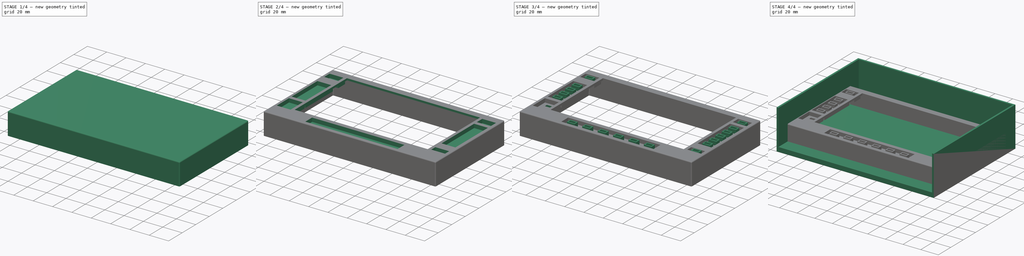
[diagram: build sequence overview — one tinted view per stage of 4, left to right]
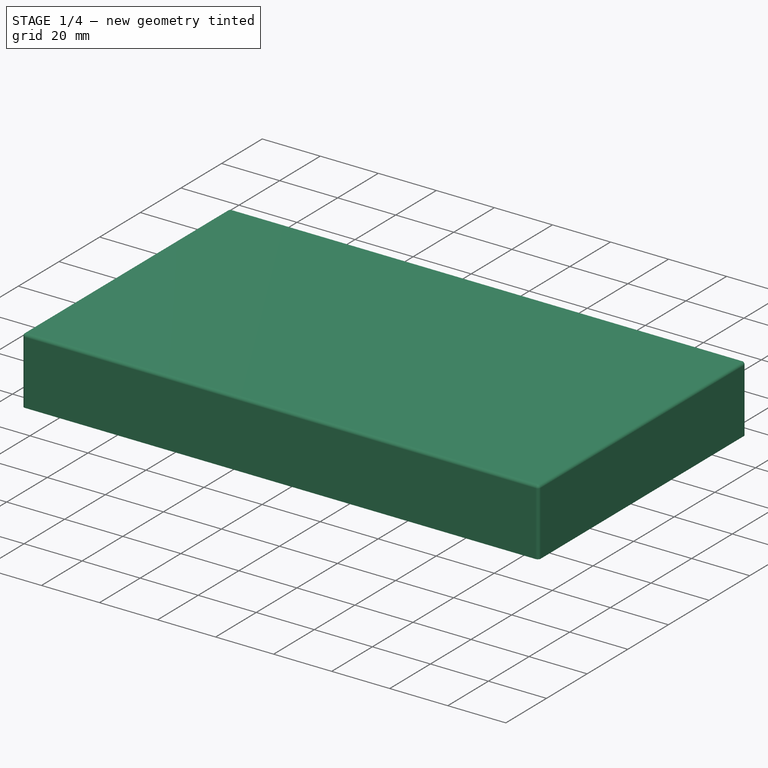
[diagram: stage 1 of 4 — iso view after this stage's code; geometry added in this stage tinted green]
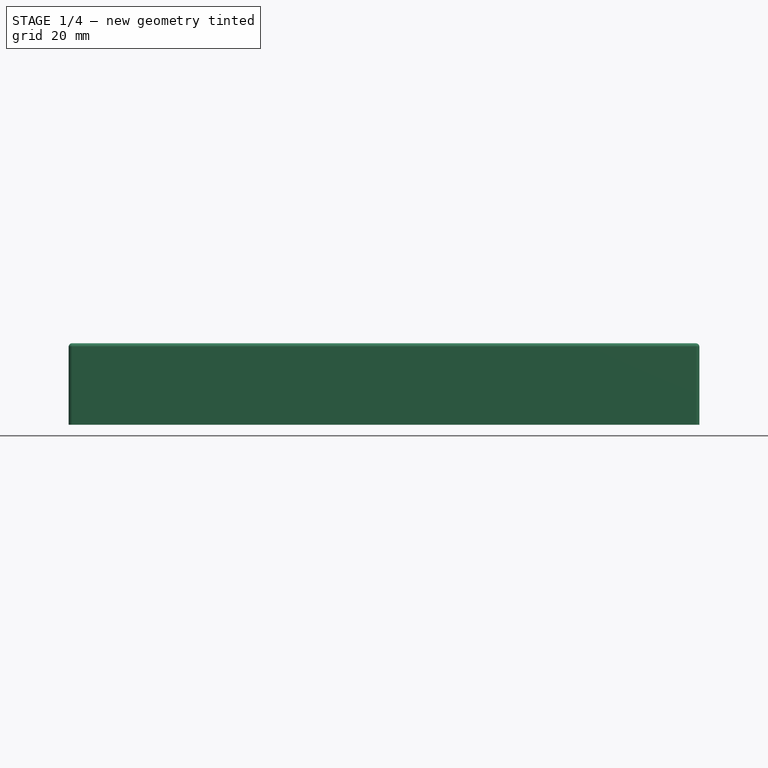
[diagram: stage 1 of 4 — front view after this stage's code; geometry added in this stage tinted green]
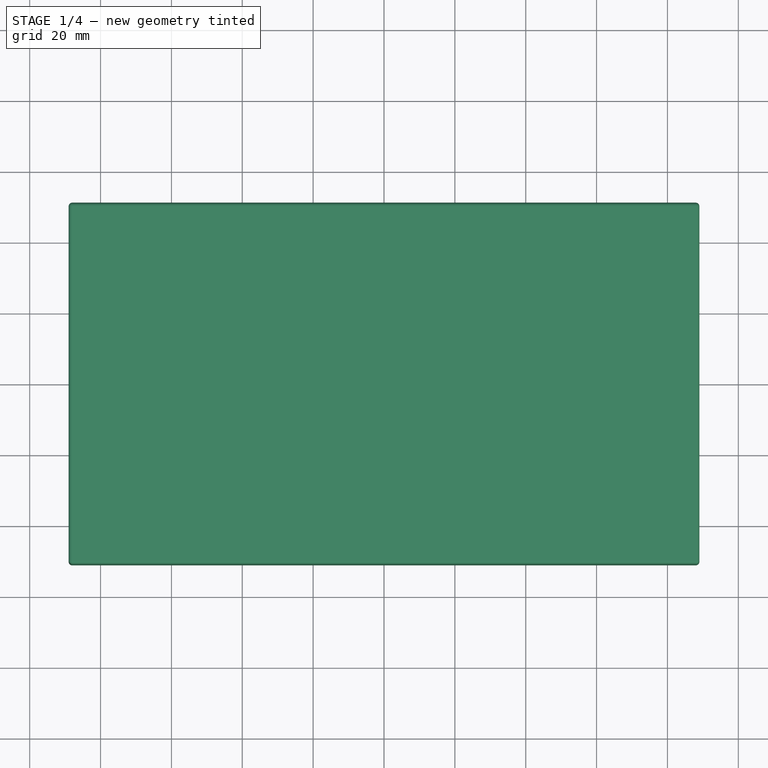
[diagram: stage 1 of 4 — top view after this stage's code; geometry added in this stage tinted green]
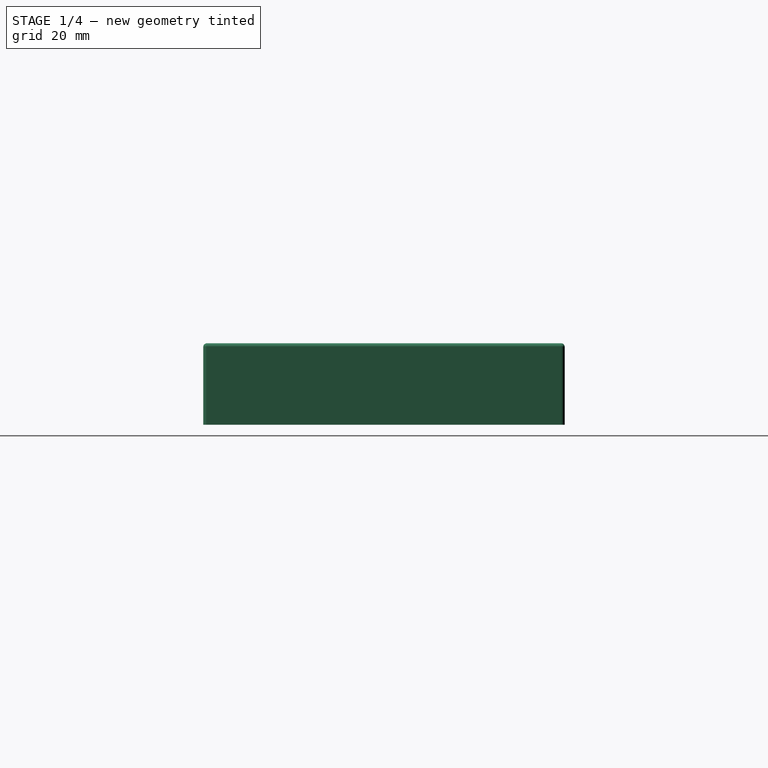
[diagram: stage 1 of 4 — right view after this stage's code; geometry added in this stage tinted green]
FCSTD DOCUMENT  (FreeCAD 0.21R33675 (Git))
Label: Double DIN Screen Motorized 6 Inch
License: All rights reserved
LicenseURL: https://en.wikipedia.org/wiki/All_rights_reserved
objects: Sketcher::SketchObject×10, PartDesign::Pad×5, PartDesign::Pocket×5, PartDesign::Body×2, PartDesign::Fillet×2
note: 36 computed .brp shape members not serialized (recipe doc carries the construction recipe); baked Part::Feature solids carry a one-line shape summary decoded from their .brp

FEATURE [PartDesign::Body] Body  label="Screen Base"
  Group = -> [Sketch,Pad,Sketch001,Pocket]
  Origin = -> Origin
  Tip = -> Pocket
FEATURE [Sketcher::SketchObject] Sketch002  label="Screen Panel Base Sketch"
  FullyConstrained = true
  MapMode = 5
  Support = -> [XY_Plane001]
  sketch-geometry (14):
    g0: LineSegment StartX=-89 StartY=51 StartZ=0 EndX=89 EndY=51 EndZ=0
    g1: LineSegment StartX=89 StartY=51 StartZ=0 EndX=89 EndY=-51 EndZ=0
    g2: LineSegment StartX=89 StartY=-51 StartZ=0 EndX=-89 EndY=-51 EndZ=0
    g3: LineSegment StartX=-89 StartY=-51 StartZ=0 EndX=-89 EndY=51 EndZ=0
    g4: LineSegment StartX=-89 StartY=50 StartZ=0 EndX=-89 EndY=-50 EndZ=0
    g5: LineSegment StartX=89 StartY=50 StartZ=0 EndX=89 EndY=-50 EndZ=0
    g6: LineSegment StartX=-88 StartY=51 StartZ=0 EndX=88 EndY=51 EndZ=0
    g7: LineSegment StartX=-88 StartY=-51 StartZ=0 EndX=88 EndY=-51 EndZ=0
    g8: ArcOfCircle CenterX=-88 CenterY=50 CenterZ=0 NormalX=0 NormalY=0 NormalZ=1 AngleXU=0 Radius=1 StartAngle=1.5708 EndAngle=3.14159
    g9: ArcOfCircle CenterX=88 CenterY=50 CenterZ=0 NormalX=0 NormalY=0 NormalZ=1 AngleXU=0 Radius=1 StartAngle=-2.7e-15 EndAngle=1.5708
    g10: ArcOfCircle CenterX=-88 CenterY=-50 CenterZ=0 NormalX=0 NormalY=0 NormalZ=1 AngleXU=0 Radius=1 StartAngle=3.14159 EndAngle=4.71239
    g11: ArcOfCircle CenterX=88 CenterY=-50 CenterZ=0 NormalX=0 NormalY=0 NormalZ=1 AngleXU=0 Radius=1 StartAngle=4.71239 EndAngle=6.28319
    g12: LineSegment StartX=88 StartY=-50 StartZ=0 EndX=89 EndY=-50 EndZ=0
    g13: LineSegment StartX=88 StartY=-50 StartZ=0 EndX=88 EndY=-51 EndZ=0
  constraints (38):
    c: Coincident(g0,g1)
    c: Coincident(g1,g2)
    c: Coincident(g2,g3)
    c: Coincident(g3,g0)
    c: Horizontal(g2)
    c: Vertical(g1)
    c: Symmetric(g0,g0,g-2)
    c: Symmetric(g0,g2,g-1)
    c: DistanceY(g3,g3) = 102
    c: DistanceX(g0,g0) = 178
    c: PointOnObject(g4,g3)
    c: PointOnObject(g5,g1)
    c: PointOnObject(g6,g0)
    c: PointOnObject(g7,g2)
    c: Symmetric(g7,g7,g-2)
    c: Equal(g7,g6)
    c: Symmetric(g6,g6,g-2)
    c: Symmetric(g4,g4,g-1)
    c: Symmetric(g5,g5,g-1)
    c: Equal(g4,g5)
    c: Coincident(g8,g4)
    c: Coincident(g8,g6)
    c: Angle(g8) = 1.5708
    c: Coincident(g9,g6)
    c: Coincident(g9,g5)
    c: Angle(g9) = 1.5708
    c: Coincident(g10,g4)
    c: Coincident(g10,g7)
    c: Equal(g10,g8)
    c: Coincident(g11,g7)
    c: Coincident(g11,g5)
    c: Equal(g11,g8)
    c: Coincident(g12,g11)
    c: Coincident(g12,g5)
    c: Horizontal(g12)
    c: Coincident(g13,g11)
    c: Coincident(g13,g7)
    c: Radius(g9) = 1
FEATURE [PartDesign::Pad] Pad001  label="Screen Panel Base"
  Direction = (0,0,1)
  Length = 23
  Length2 = 10
  Profile = -> Sketch002
  ReferenceAxis = -> Sketch002 [N_Axis]
  Type = 0
FEATURE [PartDesign::Fillet] Fillet  label="Screen Panel Base Fillet"
  Base = -> Pad001 [Edge7]
  BaseFeature = -> Pad001
  Radius = 1
  SupportTransform = false
  UseAllEdges = false
FEATURE [Sketcher::SketchObject] Sketch003  label="Screen Panel Shell Sketch"
  ExternalGeometry = -> [Fillet]
  FullyConstrained = true
  MapMode = 5
  Placement = pos=(0,0,0) rot=(1,0,0;3.14159rad)
  Support = -> [Fillet]
  sketch-geometry (18):
    g0: LineSegment StartX=-87 StartY=-48 StartZ=0 EndX=-87 EndY=48 EndZ=0
    g1: LineSegment StartX=-86 StartY=49 StartZ=0 EndX=86 EndY=49 EndZ=0
    g2: LineSegment StartX=87 StartY=48 StartZ=0 EndX=87 EndY=-48 EndZ=0
    g3: LineSegment StartX=86 StartY=-49 StartZ=0 EndX=-86 EndY=-49 EndZ=0
    g4: ArcOfCircle CenterX=-86 CenterY=48 CenterZ=0 NormalX=0 NormalY=0 NormalZ=1 AngleXU=0 Radius=1 StartAngle=1.5708 EndAngle=3.14159
    g5: LineSegment StartX=-86 StartY=49 StartZ=0 EndX=-86 EndY=48 EndZ=0
    g6: LineSegment StartX=-86 StartY=48 StartZ=0 EndX=-87 EndY=48 EndZ=0
    g7: ArcOfCircle CenterX=86 CenterY=-48 CenterZ=0 NormalX=0 NormalY=0 NormalZ=1 AngleXU=0 Radius=1 StartAngle=4.71239 EndAngle=6.28319
    g8: LineSegment StartX=86 StartY=-49 StartZ=0 EndX=86 EndY=-48 EndZ=0
    g9: LineSegment StartX=86 StartY=-48 StartZ=0 EndX=87 EndY=-48 EndZ=0
    g10: ArcOfCircle CenterX=86 CenterY=48 CenterZ=0 NormalX=0 NormalY=0 NormalZ=1 AngleXU=0 Radius=1 StartAngle=-2.7e-15 EndAngle=1.5708
    g11: LineSegment StartX=86 StartY=49 StartZ=0 EndX=86 EndY=48 EndZ=0
    g12: LineSegment StartX=86 StartY=48 StartZ=0 EndX=87 EndY=48 EndZ=0
    g13: ArcOfCircle CenterX=-86 CenterY=-48 CenterZ=0 NormalX=0 NormalY=0 NormalZ=1 AngleXU=0 Radius=1 StartAngle=3.14159 EndAngle=4.71239
    g14: LineSegment StartX=-87 StartY=-48 StartZ=0 EndX=-86 EndY=-48 EndZ=0
    g15: LineSegment StartX=-86 StartY=-48 StartZ=0 EndX=-86 EndY=-49 EndZ=0
    g16: LineSegment StartX=-87 StartY=48 StartZ=0 EndX=-89 EndY=48 EndZ=0
    g17: LineSegment StartX=-86 StartY=49 StartZ=0 EndX=-86 EndY=51 EndZ=0
  constraints (45):
    c: Equal(g3,g1)
    c: Symmetric(g1,g1,g-2)
    c: Symmetric(g3,g3,g-2)
    c: Symmetric(g0,g0,g-1)
    c: Symmetric(g2,g2,g-1)
    c: Coincident(g4,g0)
    c: Coincident(g4,g1)
    c: Coincident(g5,g1)
    c: Coincident(g5,g4)
    c: Coincident(g6,g4)
    c: Coincident(g6,g0)
    c: Horizontal(g6)
    c: Vertical(g5)
    c: Symmetric(g2,g0,g-2)
    c: Coincident(g7,g3)
    c: Coincident(g7,g2)
    c: Equal(g7,g4)
    c: Coincident(g8,g3)
    c: Coincident(g8,g7)
    c: Coincident(g9,g7)
    c: Coincident(g9,g2)
    c: Horizontal(g9)
    c: Coincident(g10,g1)
    c: Coincident(g10,g2)
    c: Equal(g4,g10)
    c: Coincident(g11,g1)
    c: Coincident(g11,g10)
    c: Coincident(g12,g10)
    c: Coincident(g12,g2)
    c: Coincident(g13,g0)
    c: Coincident(g13,g3)
    c: Coincident(g14,g0)
    c: Coincident(g14,g13)
    c: Horizontal(g14)
    c: Coincident(g15,g13)
    c: Coincident(g15,g3)
    c: Coincident(g16,g0)
    c: PointOnObject(g16,g-3)
    c: Horizontal(g16)
    c: DistanceX(g16,g16) = 2
    c: Coincident(g17,g1)
    c: PointOnObject(g17,g-5)
    c: Vertical(g17)
    c: Equal(g17,g16)
    c: Equal(g4,g-4)
FEATURE [PartDesign::Pocket] Pocket001  label="Screen Panel Shell"
  BaseFeature = -> Fillet
  Direction = (0,0,1)
  Length = 21
  Length2 = 5
  Profile = -> Sketch003
  ReferenceAxis = -> Sketch003 [N_Axis]
  Type = 0
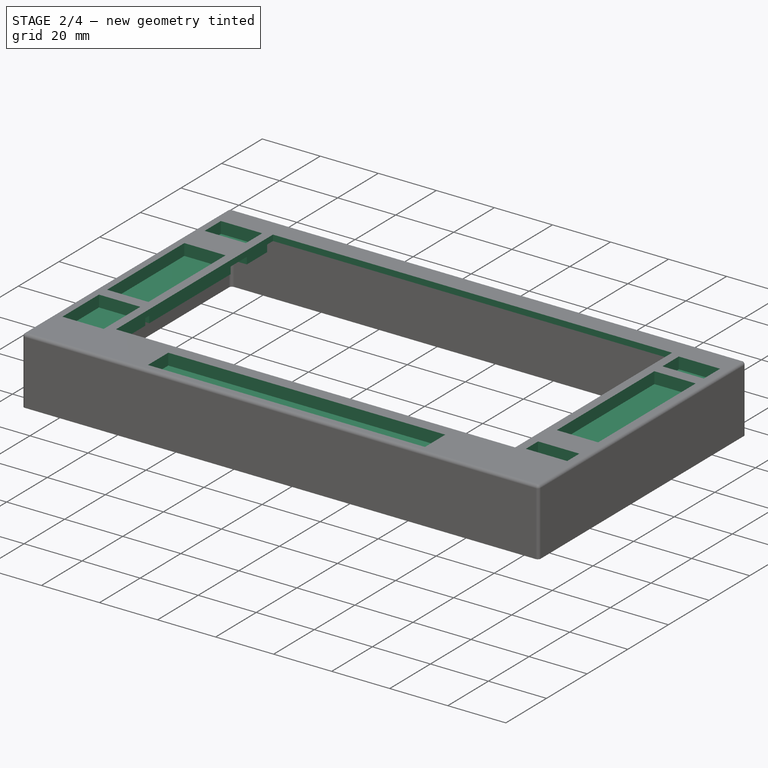
[diagram: stage 2 of 4 — iso view after this stage's code; geometry added in this stage tinted green]
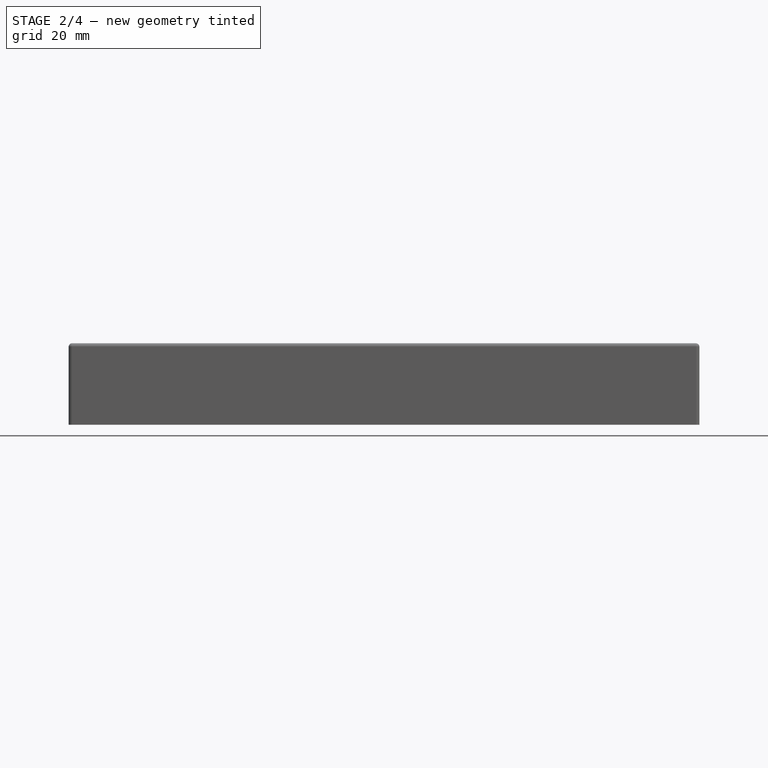
[diagram: stage 2 of 4 — front view after this stage's code; geometry added in this stage tinted green]
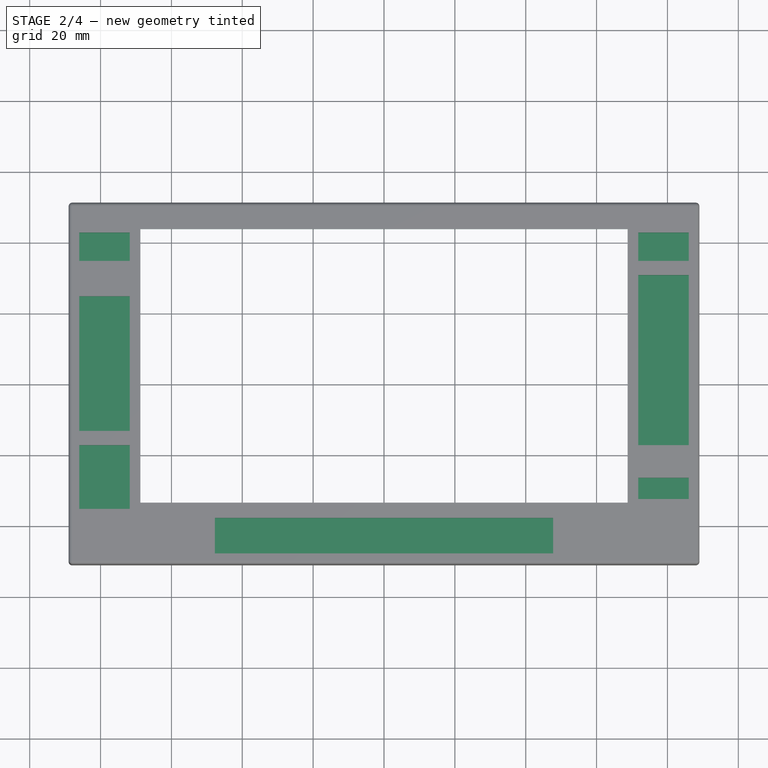
[diagram: stage 2 of 4 — top view after this stage's code; geometry added in this stage tinted green]
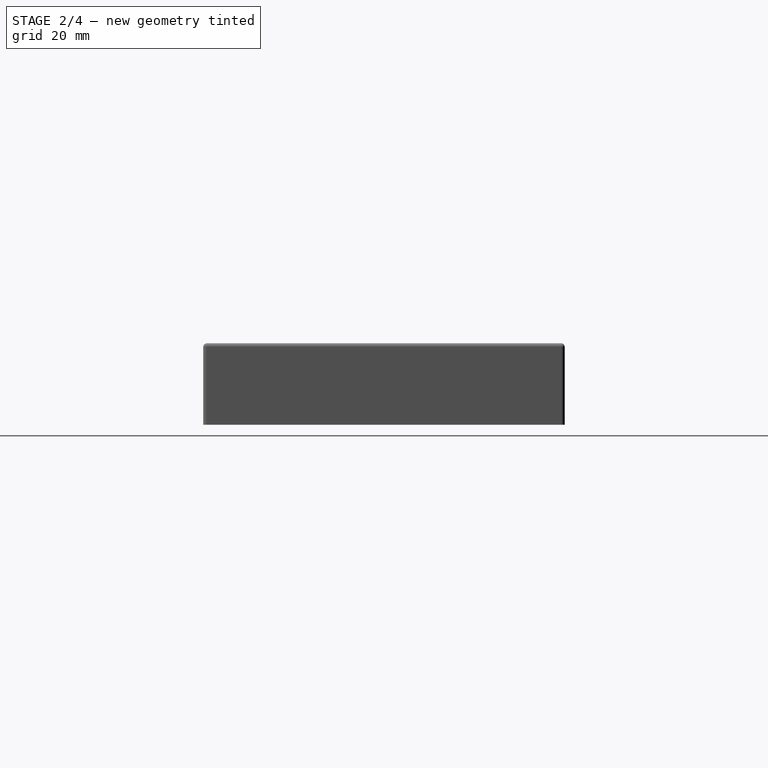
[diagram: stage 2 of 4 — right view after this stage's code; geometry added in this stage tinted green]
FEATURE [Sketcher::SketchObject] Sketch004  label="Screen Display Cut Sketch"
  ExternalGeometry = -> [Pocket001]
  FullyConstrained = true
  MapMode = 5
  Placement = pos=(0,0,23) rot=(0,0,1;0rad)
  Support = -> [Pocket001]
  sketch-geometry (10):
    g0: LineSegment StartX=-76.4 StartY=46.5 StartZ=0 EndX=78.8 EndY=46.5 EndZ=0
    g1: LineSegment StartX=78.8 StartY=46.5 StartZ=0 EndX=78.8 EndY=-41.7 EndZ=0
    g2: LineSegment StartX=78.8 StartY=-41.7 StartZ=0 EndX=-76.4 EndY=-41.7 EndZ=0
    g3: LineSegment StartX=-76.4 StartY=-41.7 StartZ=0 EndX=-76.4 EndY=46.5 EndZ=0
    g4: LineSegment StartX=-76.4 StartY=-41.7 StartZ=0 EndX=-76.4 EndY=-51 EndZ=0
    g5: LineSegment StartX=-68.76 StartY=43.556 StartZ=0 EndX=68.76 EndY=43.556 EndZ=0
    g6: LineSegment StartX=68.76 StartY=43.556 StartZ=0 EndX=68.76 EndY=-33.676 EndZ=0
    g7: LineSegment StartX=68.76 StartY=-33.676 StartZ=0 EndX=-68.76 EndY=-33.676 EndZ=0
    g8: LineSegment StartX=-68.76 StartY=-33.676 StartZ=0 EndX=-68.76 EndY=43.556 EndZ=0
    g9: LineSegment StartX=-68.76 StartY=43.556 StartZ=0 EndX=-76.4 EndY=43.556 EndZ=0
  constraints (29):
    c: Coincident(g0,g1)
    c: Coincident(g1,g2)
    c: Coincident(g2,g3)
    c: Coincident(g3,g0)
    c: Horizontal(g0)
    c: Vertical(g1)
    c: Vertical(g3)
    c: DistanceY(g3,g3) = 88.2
    c: DistanceX(g0,g0) = 155.2
    c: Coincident(g4,g2)
    c: PointOnObject(g4,g-3)
    c: Vertical(g4)
    c: DistanceY(g4,g4) = 9.3
    c: Coincident(g5,g6)
    c: Coincident(g6,g7)
    c: Coincident(g7,g8)
    c: Coincident(g8,g5)
    c: Horizontal(g5)
    c: Vertical(g6)
    c: Vertical(g8)
    c: DistanceX(g5,g5) = 137.52
    c: DistanceY(g8,g8) = 77.232
    c: Coincident(g9,g5)
    c: PointOnObject(g9,g3)
    c: Horizontal(g9)
    c: DistanceX(g9,g9) = 7.64
    c: DistanceY(g5,g0) = 2.944
    c: Symmetric(g7,g6,g-2)
    c: Horizontal(g2)
FEATURE [PartDesign::Pocket] Pocket002  label="Screen Display Cut"
  BaseFeature = -> Pocket001
  Direction = (0,0,-1)
  Length = 5
  Length2 = 5
  Profile = -> Sketch004
  ReferenceAxis = -> Sketch004 [N_Axis]
  Type = 0
FEATURE [Sketcher::SketchObject] Sketch005  label="Button Bulge Sketch"
  ExternalGeometry = -> [Pocket002]
  FullyConstrained = true
  MapMode = 5
  Placement = pos=(0,0,21) rot=(1,0,0;3.14159rad)
  Support = -> [Pocket002]
  sketch-geometry (38):
    g0: LineSegment StartX=-70.76 StartY=-43.556 StartZ=0 EndX=-87 EndY=-43.556 EndZ=0
    g1: LineSegment StartX=-87 StartY=-43.556 StartZ=0 EndX=-87 EndY=-33.556 EndZ=0
    g2: LineSegment StartX=-87 StartY=-33.556 StartZ=0 EndX=-70.76 EndY=-33.556 EndZ=0
    g3: LineSegment StartX=-70.76 StartY=-33.556 StartZ=0 EndX=-70.76 EndY=-43.556 EndZ=0
    g4: LineSegment StartX=-68.76 StartY=-43.556 StartZ=0 EndX=-70.76 EndY=-43.556 EndZ=0
    g5: LineSegment StartX=-70.76 StartY=-33.556 StartZ=0 EndX=-87 EndY=-33.556 EndZ=0
    g6: LineSegment StartX=-87 StartY=-33.556 StartZ=0 EndX=-87 EndY=-25.556 EndZ=0
    g7: LineSegment StartX=-87 StartY=-25.556 StartZ=0 EndX=-70.76 EndY=-25.556 EndZ=0
    g8: LineSegment StartX=-70.76 StartY=-25.556 StartZ=0 EndX=-70.76 EndY=-33.556 EndZ=0
    g9: LineSegment StartX=-70.76 StartY=-25.556 StartZ=0 EndX=-87 EndY=-25.556 EndZ=0
    g10: LineSegment StartX=-87 StartY=-25.556 StartZ=0 EndX=-87 EndY=14.444 EndZ=0
    g11: LineSegment StartX=-70.76 StartY=14.444 StartZ=0 EndX=-70.76 EndY=-25.556 EndZ=0
    g12: LineSegment StartX=-70.76 StartY=14.444 StartZ=0 EndX=-87 EndY=14.444 EndZ=0
    g13: LineSegment StartX=87 StartY=-43.556 StartZ=0 EndX=70.76 EndY=-43.556 EndZ=0
    g14: LineSegment StartX=70.76 StartY=-43.556 StartZ=0 EndX=70.76 EndY=-33.556 EndZ=0
    g15: LineSegment StartX=70.76 StartY=-33.556 StartZ=0 EndX=87 EndY=-33.556 EndZ=0
    g16: LineSegment StartX=87 StartY=-33.556 StartZ=0 EndX=87 EndY=-43.556 EndZ=0
    g17: LineSegment StartX=70.76 StartY=-43.556 StartZ=0 EndX=68.76 EndY=-43.556 EndZ=0
    g18: LineSegment StartX=87 StartY=-31.556 StartZ=0 EndX=70.76 EndY=-31.556 EndZ=0
    g19: LineSegment StartX=70.76 StartY=-33.556 StartZ=0 EndX=70.76 EndY=-31.556 EndZ=0
    g20: LineSegment StartX=-70.76 StartY=16.444 StartZ=0 EndX=-87 EndY=16.444 EndZ=0
    g21: LineSegment StartX=-87 StartY=16.444 StartZ=0 EndX=-87 EndY=36.444 EndZ=0
    g22: LineSegment StartX=-87 StartY=36.444 StartZ=0 EndX=-70.76 EndY=36.444 EndZ=0
    g23: LineSegment StartX=-70.76 StartY=36.444 StartZ=0 EndX=-70.76 EndY=16.444 EndZ=0
    g24: LineSegment StartX=-70.76 StartY=16.444 StartZ=0 EndX=-70.76 EndY=14.444 EndZ=0
    g25: LineSegment StartX=87 StartY=18.444 StartZ=0 EndX=70.76 EndY=18.444 EndZ=0
    g26: LineSegment StartX=87 StartY=25.676 StartZ=0 EndX=70.76 EndY=25.676 EndZ=0
    g27: LineSegment StartX=70.76 StartY=25.676 StartZ=0 EndX=70.76 EndY=33.676 EndZ=0
    g28: LineSegment StartX=70.76 StartY=33.676 StartZ=0 EndX=87 EndY=33.676 EndZ=0
    g29: LineSegment StartX=87 StartY=33.676 StartZ=0 EndX=87 EndY=25.676 EndZ=0
    g30: LineSegment StartX=70.76 StartY=18.444 StartZ=0 EndX=70.76 EndY=25.676 EndZ=0
    g31: LineSegment StartX=70.76 StartY=33.676 StartZ=0 EndX=68.76 EndY=33.676 EndZ=0
    g32: LineSegment StartX=48.72 StartY=37 StartZ=0 EndX=-48.72 EndY=37 EndZ=0
    g33: LineSegment StartX=-48.72 StartY=37 StartZ=0 EndX=-48.72 EndY=49 EndZ=0
    g34: LineSegment StartX=-48.72 StartY=49 StartZ=0 EndX=48.72 EndY=49 EndZ=0
    g35: LineSegment StartX=48.72 StartY=49 StartZ=0 EndX=48.72 EndY=37 EndZ=0
    g36: LineSegment StartX=70.76 StartY=18.444 StartZ=0 EndX=70.76 EndY=-31.556 EndZ=0
    g37: LineSegment StartX=87 StartY=18.444 StartZ=0 EndX=87 EndY=-31.556 EndZ=0
  constraints (105):
    c: Coincident(g0,g1)
    c: Coincident(g1,g2)
    c: Coincident(g2,g3)
    c: Coincident(g3,g0)
    c: Horizontal(g0)
    c: Horizontal(g2)
    c: Vertical(g1)
    c: Vertical(g3)
    c: DistanceY(g3,g3) = 10
    c: Coincident(g4,g-6)
    c: Coincident(g4,g0)
    c: Horizontal(g4)
    c: DistanceX(g4,g4) = 2
    c: PointOnObject(g0,g-5)
    c: Coincident(g5,g6)
    c: Coincident(g6,g7)
    c: Coincident(g7,g8)
    c: Coincident(g8,g5)
    c: Horizontal(g5)
    c: Horizontal(g7)
    c: Vertical(g6)
    c: Vertical(g8)
    c: Coincident(g5,g2)
    c: PointOnObject(g6,g-5)
    c: Horizontal(g9)
    c: Coincident(g9,g7)
    c: Vertical(g10)
    c: Vertical(g11)
    c: PointOnObject(g10,g-5)
    c: Horizontal(g12)
    c: Coincident(g13,g14)
    c: Coincident(g14,g15)
    c: Coincident(g15,g16)
    c: Coincident(g16,g13)
    c: Horizontal(g13)
    c: Horizontal(g15)
    c: Vertical(g14)
    c: Vertical(g16)
    c: Coincident(g17,g13)
    c: Coincident(g17,g-7)
    c: Horizontal(g17)
    c: DistanceX(g17,g17) = 2
    c: Equal(g3,g14)
    c: Horizontal(g18)
    c: Coincident(g19,g14)
    c: Coincident(g19,g18)
    c: Vertical(g19)
    c: DistanceY(g19,g19) = 2
    c: Coincident(g12,g11)
    c: Coincident(g10,g12)
    c: Coincident(g20,g21)
    c: Coincident(g21,g22)
    c: Coincident(g22,g23)
    c: Coincident(g23,g20)
    c: Horizontal(g20)
    c: Horizontal(g22)
    c: Vertical(g21)
    c: Vertical(g23)
    c: PointOnObject(g20,g-5)
    c: Coincident(g24,g20)
    c: Coincident(g24,g11)
    c: Vertical(g24)
    c: DistanceY(g24,g24) = 2
    c: Horizontal(g25)
    c: Coincident(g26,g27)
    c: Coincident(g27,g28)
    c: Coincident(g28,g29)
    c: Coincident(g29,g26)
    c: Horizontal(g26)
    c: Horizontal(g28)
    c: Vertical(g27)
    c: Vertical(g29)
    c: Coincident(g30,g25)
    c: Coincident(g30,g26)
    c: Vertical(g30)
    c: DistanceY(g27,g27) = 8
    c: Coincident(g31,g27)
    c: Coincident(g31,g-7)
    c: Horizontal(g31)
    c: Coincident(g32,g33)
    c: Coincident(g33,g34)
    c: Coincident(g34,g35)
    c: Coincident(g35,g32)
    c: Horizontal(g34)
    c: Vertical(g33)
    c: Vertical(g35)
    c: Symmetric(g32,g32,g-2)
    c: DistanceX(g32,g32) = 97.44
    c: PointOnObject(g34,g-4)
    c: DistanceY(g35,g35) = 12
    c: PointOnObject(g18,g-8)
    c: PointOnObject(g15,g-8)
    c: Coincident(g36,g25)
    c: Coincident(g36,g18)
    c: Vertical(g36)
    c: PointOnObject(g25,g-8)
    c: Coincident(g37,g25)
    c: Coincident(g37,g18)
    c: PointOnObject(g28,g-8)
    c: DistanceY(g36,g36) = 50
    c: Coincident(g10,g9)
    c: Coincident(g11,g9)
    c: DistanceY(g11,g11) = 40
    c: DistanceY(g23,g23) = 20
    c: DistanceY(g8,g8) = 8
FEATURE [PartDesign::Pad] Pad002  label="Button Bulge"
  BaseFeature = -> Pocket002
  Direction = (0,0,-1)
  Length = 4
  Length2 = 10
  Profile = -> Sketch005
  ReferenceAxis = -> Sketch005 [N_Axis]
  Type = 0
FEATURE [Sketcher::SketchObject] Sketch006  label="Button Cavity Sketch"
  ExternalGeometry = -> [Pad002]
  FullyConstrained = true
  MapMode = 5
  Placement = pos=(0,0,23) rot=(0,0,1;0rad)
  Support = -> [Pad002]
  sketch-geometry (57):
    g0: LineSegment StartX=-86 StartY=42.556 StartZ=0 EndX=-71.76 EndY=42.556 EndZ=0
    g1: LineSegment StartX=-71.76 StartY=42.556 StartZ=0 EndX=-71.76 EndY=34.556 EndZ=0
    g2: LineSegment StartX=-71.76 StartY=34.556 StartZ=0 EndX=-86 EndY=34.556 EndZ=0
    g3: LineSegment StartX=-86 StartY=34.556 StartZ=0 EndX=-86 EndY=42.556 EndZ=0
    g4: LineSegment StartX=-86 StartY=42.556 StartZ=0 EndX=-86 EndY=43.556 EndZ=0
    g5: LineSegment StartX=-86 StartY=42.556 StartZ=0 EndX=-87 EndY=42.556 EndZ=0
    g6: LineSegment StartX=-71.76 StartY=34.556 StartZ=0 EndX=-71.76 EndY=33.556 EndZ=0
    g7: LineSegment StartX=-71.76 StartY=42.556 StartZ=0 EndX=-71.76 EndY=43.556 EndZ=0
    g8: LineSegment StartX=-71.76 StartY=42.556 StartZ=0 EndX=-70.76 EndY=42.556 EndZ=0
    g9: LineSegment StartX=-86 StartY=-17.444 StartZ=0 EndX=-71.76 EndY=-17.444 EndZ=0
    g10: LineSegment StartX=-71.76 StartY=-17.444 StartZ=0 EndX=-71.76 EndY=-35.444 EndZ=0
    g11: LineSegment StartX=-71.76 StartY=-35.444 StartZ=0 EndX=-86 EndY=-35.444 EndZ=0
    g12: LineSegment StartX=-86 StartY=-35.444 StartZ=0 EndX=-86 EndY=-17.444 EndZ=0
    g13: LineSegment StartX=-86 StartY=-17.444 StartZ=0 EndX=-87 EndY=-17.444 EndZ=0
    g14: LineSegment StartX=-86 StartY=-17.444 StartZ=0 EndX=-86 EndY=-16.444 EndZ=0
    g15: LineSegment StartX=-71.76 StartY=-35.444 StartZ=0 EndX=-70.76 EndY=-35.444 EndZ=0
    g16: LineSegment StartX=-71.76 StartY=-35.444 StartZ=0 EndX=-71.76 EndY=-36.444 EndZ=0
    g17: LineSegment StartX=-86 StartY=24.556 StartZ=0 EndX=-71.76 EndY=24.556 EndZ=0
    g18: LineSegment StartX=-71.76 StartY=24.556 StartZ=0 EndX=-71.76 EndY=-13.444 EndZ=0
    g19: LineSegment StartX=-71.76 StartY=-13.444 StartZ=0 EndX=-86 EndY=-13.444 EndZ=0
    g20: LineSegment StartX=-86 StartY=-13.444 StartZ=0 EndX=-86 EndY=24.556 EndZ=0
    g21: LineSegment StartX=-86 StartY=24.556 StartZ=0 EndX=-86 EndY=25.556 EndZ=0
    g22: LineSegment StartX=-86 StartY=24.556 StartZ=0 EndX=-87 EndY=24.556 EndZ=0
    g23: LineSegment StartX=-71.76 StartY=-13.444 StartZ=0 EndX=-70.76 EndY=-13.444 EndZ=0
    g24: LineSegment StartX=-71.76 StartY=-13.444 StartZ=0 EndX=-71.76 EndY=-14.444 EndZ=0
    g25: LineSegment StartX=71.76 StartY=42.556 StartZ=0 EndX=86 EndY=42.556 EndZ=0
    g26: LineSegment StartX=86 StartY=42.556 StartZ=0 EndX=86 EndY=34.556 EndZ=0
    g27: LineSegment StartX=86 StartY=34.556 StartZ=0 EndX=71.76 EndY=34.556 EndZ=0
    g28: LineSegment StartX=71.76 StartY=34.556 StartZ=0 EndX=71.76 EndY=42.556 EndZ=0
    g29: LineSegment StartX=71.76 StartY=42.556 StartZ=0 EndX=70.76 EndY=42.556 EndZ=0
    g30: LineSegment StartX=71.76 StartY=42.556 StartZ=0 EndX=71.76 EndY=43.556 EndZ=0
    g31: LineSegment StartX=86 StartY=34.556 StartZ=0 EndX=86 EndY=33.556 EndZ=0
    g32: LineSegment StartX=86 StartY=34.556 StartZ=0 EndX=87 EndY=34.556 EndZ=0
    g33: LineSegment StartX=71.76 StartY=30.556 StartZ=0 EndX=86 EndY=30.556 EndZ=0
    g34: LineSegment StartX=86 StartY=30.556 StartZ=0 EndX=86 EndY=-17.444 EndZ=0
    g35: LineSegment StartX=86 StartY=-17.444 StartZ=0 EndX=71.76 EndY=-17.444 EndZ=0
    g36: LineSegment StartX=71.76 StartY=-17.444 StartZ=0 EndX=71.76 EndY=30.556 EndZ=0
    g37: LineSegment StartX=71.76 StartY=30.556 StartZ=0 EndX=70.76 EndY=30.556 EndZ=0
    g38: LineSegment StartX=71.76 StartY=30.556 StartZ=0 EndX=71.76 EndY=31.556 EndZ=0
    g39: LineSegment StartX=86 StartY=-17.444 StartZ=0 EndX=87 EndY=-17.444 EndZ=0
    g40: LineSegment StartX=86 StartY=-17.444 StartZ=0 EndX=86 EndY=-18.444 EndZ=0
    g41: LineSegment StartX=-47.72 StartY=-38 StartZ=0 EndX=47.72 EndY=-38 EndZ=0
    g42: LineSegment StartX=47.72 StartY=-38 StartZ=0 EndX=47.72 EndY=-48 EndZ=0
    g43: LineSegment StartX=47.72 StartY=-48 StartZ=0 EndX=-47.72 EndY=-48 EndZ=0
    g44: LineSegment StartX=47.72 StartY=-48 StartZ=0 EndX=48.72 EndY=-48 EndZ=0
    g45: LineSegment StartX=47.72 StartY=-48 StartZ=0 EndX=47.72 EndY=-49 EndZ=0
    g46: LineSegment StartX=71.76 StartY=-26.676 StartZ=0 EndX=86 EndY=-26.676 EndZ=0
    g47: LineSegment StartX=86 StartY=-26.676 StartZ=0 EndX=86 EndY=-32.676 EndZ=0
    g48: LineSegment StartX=86 StartY=-32.676 StartZ=0 EndX=71.76 EndY=-32.676 EndZ=0
    g49: LineSegment StartX=71.76 StartY=-32.676 StartZ=0 EndX=71.76 EndY=-26.676 EndZ=0
    g50: LineSegment StartX=71.76 StartY=-26.676 StartZ=0 EndX=71.76 EndY=-25.676 EndZ=0
    g51: LineSegment StartX=71.76 StartY=-26.676 StartZ=0 EndX=70.76 EndY=-26.676 EndZ=0
    g52: LineSegment StartX=86 StartY=-32.676 StartZ=0 EndX=87 EndY=-32.676 EndZ=0
    g53: LineSegment StartX=86 StartY=-32.676 StartZ=0 EndX=86 EndY=-33.676 EndZ=0
    g54: LineSegment StartX=-47.72 StartY=-38 StartZ=0 EndX=-47.72 EndY=-48 EndZ=0
    g55: LineSegment StartX=-47.72 StartY=-38 StartZ=0 EndX=-48.72 EndY=-38 EndZ=0
    g56: LineSegment StartX=-47.72 StartY=-38 StartZ=0 EndX=-47.72 EndY=-37 EndZ=0
  constraints (172):
    c: Coincident(g0,g1)
    c: Coincident(g1,g2)
    c: Coincident(g2,g3)
    c: Coincident(g3,g0)
    c: Horizontal(g0)
    c: Horizontal(g2)
    c: Vertical(g1)
    c: Vertical(g3)
    c: Coincident(g4,g0)
    c: PointOnObject(g4,g-15)
    c: Vertical(g4)
    c: Coincident(g5,g0)
    c: PointOnObject(g5,g-18)
    c: Horizontal(g5)
    c: DistanceX(g5,g5) = 1
    c: DistanceY(g4,g4) = 1
    c: Coincident(g6,g1)
    c: PointOnObject(g6,g-17)
    c: Vertical(g6)
    c: Coincident(g7,g0)
    c: PointOnObject(g7,g-15)
    c: Vertical(g7)
    c: Coincident(g8,g0)
    c: PointOnObject(g8,g-16)
    c: Horizontal(g8)
    c: Equal(g8,g5)
    c: Equal(g6,g7)
    c: Coincident(g9,g10)
    c: Coincident(g10,g11)
    c: Coincident(g11,g12)
    c: Coincident(g12,g9)
    c: Horizontal(g9)
    c: Horizontal(g11)
    c: Vertical(g10)
    c: Vertical(g12)
    c: Coincident(g13,g9)
    c: PointOnObject(g13,g-26)
    c: Horizontal(g13)
    c: Coincident(g14,g9)
    c: PointOnObject(g14,g-23)
    c: Vertical(g14)
    c: Coincident(g15,g10)
    c: PointOnObject(g15,g-24)
    c: Horizontal(g15)
    c: Coincident(g16,g10)
    c: PointOnObject(g16,g-25)
    c: Vertical(g16)
    c: Equal(g13,g15)
    c: Coincident(g17,g18)
    c: Coincident(g18,g19)
    c: Coincident(g19,g20)
    c: Coincident(g20,g17)
    c: Horizontal(g17)
    c: Horizontal(g19)
    c: Vertical(g18)
    c: Vertical(g20)
    c: Coincident(g21,g17)
    c: PointOnObject(g21,g-19)
    c: Vertical(g21)
    c: Coincident(g22,g17)
    c: PointOnObject(g22,g-22)
    c: Horizontal(g22)
    c: Coincident(g23,g18)
    c: PointOnObject(g23,g-20)
    c: Horizontal(g23)
    c: Coincident(g24,g18)
    c: PointOnObject(g24,g-21)
    c: Equal(g24,g21)
    c: Equal(g21,g14)
    c: Equal(g14,g16)
    c: Equal(g16,g6)
    c: Equal(g23,g13)
    c: Equal(g15,g22)
    c: Equal(g22,g5)
    c: Vertical(g24)
    c: Coincident(g25,g26)
    c: Coincident(g26,g27)
    c: Coincident(g27,g28)
    c: Coincident(g28,g25)
    c: Horizontal(g25)
    c: Horizontal(g27)
    c: Vertical(g26)
    c: Vertical(g28)
    c: Coincident(g29,g25)
    c: PointOnObject(g29,g-4)
    c: Horizontal(g29)
    c: Coincident(g30,g25)
    c: PointOnObject(g30,g-3)
    c: Vertical(g30)
    c: Coincident(g31,g26)
    c: PointOnObject(g31,g-5)
    c: Vertical(g31)
    c: Coincident(g32,g26)
    c: PointOnObject(g32,g-6)
    c: Horizontal(g32)
    c: Equal(g31,g30)
    c: Equal(g30,g4)
    c: Equal(g29,g32)
    c: Equal(g32,g5)
    c: Coincident(g33,g34)
    c: Coincident(g34,g35)
    c: Coincident(g35,g36)
    c: Coincident(g36,g33)
    c: Horizontal(g33)
    c: Horizontal(g35)
    c: Vertical(g34)
    c: Vertical(g36)
    c: Coincident(g37,g33)
    c: PointOnObject(g37,g-8)
    c: Horizontal(g37)
    c: Coincident(g38,g33)
    c: PointOnObject(g38,g-7)
    c: Vertical(g38)
    c: Coincident(g39,g34)
    c: PointOnObject(g39,g-10)
    c: Horizontal(g39)
    c: Coincident(g40,g34)
    c: PointOnObject(g40,g-9)
    c: Vertical(g40)
    c: Equal(g38,g40)
    c: Equal(g40,g30)
    c: Equal(g29,g37)
    c: Equal(g37,g39)
    c: Coincident(g41,g42)
    c: Coincident(g42,g43)
    c: Horizontal(g41)
    c: Horizontal(g43)
    c: Vertical(g42)
    c: DistanceY(g-28,g-28) = 12
    c: Coincident(g44,g42)
    c: PointOnObject(g44,g-29)
    c: Horizontal(g44)
    c: Coincident(g45,g42)
    c: PointOnObject(g45,g-30)
    c: Vertical(g45)
    c: Equal(g45,g40)
    c: Equal(g44,g39)
    c: Coincident(g46,g47)
    c: Coincident(g47,g48)
    c: Coincident(g48,g49)
    c: Coincident(g49,g46)
    c: Horizontal(g46)
    c: Horizontal(g48)
    c: Vertical(g47)
    c: Vertical(g49)
    c: Coincident(g50,g46)
    c: PointOnObject(g50,g-11)
    c: Vertical(g50)
    c: Coincident(g51,g46)
    c: PointOnObject(g51,g-12)
    c: Horizontal(g51)
    c: Coincident(g52,g47)
    c: PointOnObject(g52,g-14)
    c: Horizontal(g52)
    c: Coincident(g53,g47)
    c: PointOnObject(g53,g-13)
    c: Vertical(g53)
    c: Equal(g40,g50)
    c: Equal(g50,g53)
    c: Equal(g51,g52)
    c: Equal(g52,g39)
    c: Coincident(g54,g41)
    c: Coincident(g54,g43)
    c: Vertical(g54)
    c: Coincident(g55,g41)
    c: PointOnObject(g55,g-28)
    c: Horizontal(g55)
    c: Coincident(g56,g41)
    c: PointOnObject(g56,g-27)
    c: Vertical(g56)
    c: Equal(g56,g45)
    c: Equal(g44,g55)
FEATURE [PartDesign::Pocket] Pocket003  label="Button Cavity"
  BaseFeature = -> Pad002
  Direction = (0,0,-1)
  Length = 4
  Length2 = 5
  Profile = -> Sketch006
  ReferenceAxis = -> Sketch006 [N_Axis]
  Type = 0
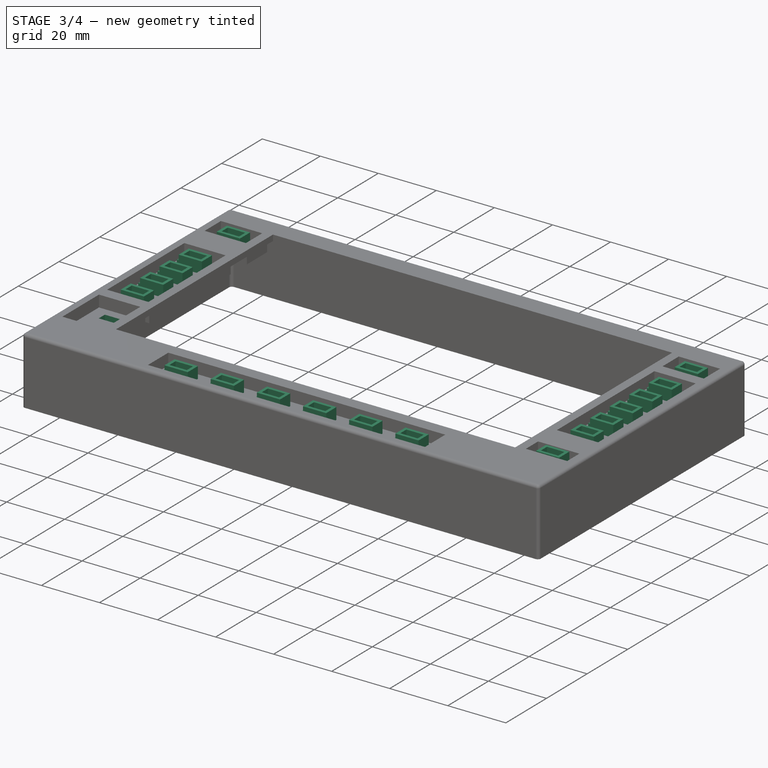
[diagram: stage 3 of 4 — iso view after this stage's code; geometry added in this stage tinted green]
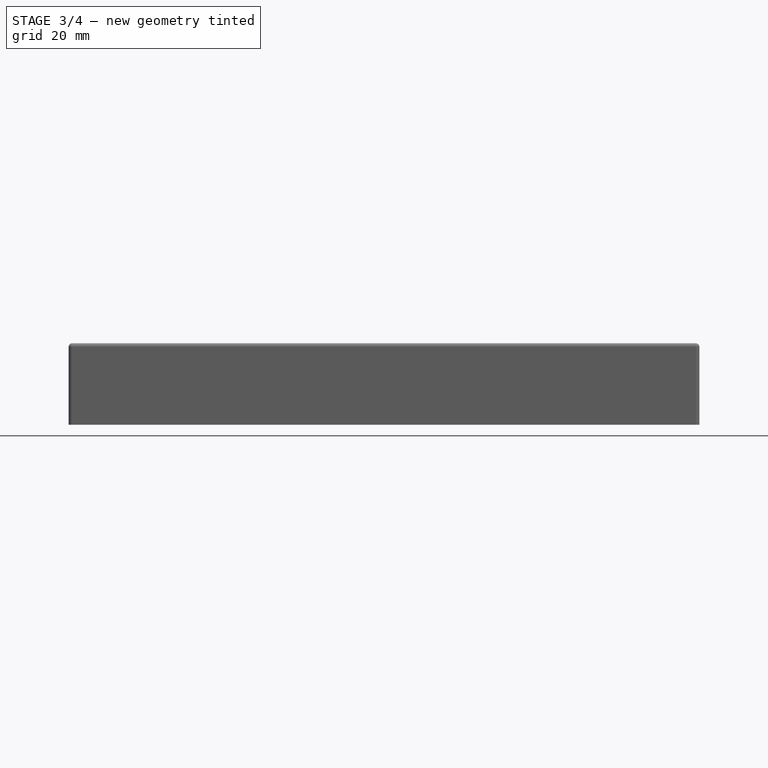
[diagram: stage 3 of 4 — front view after this stage's code; geometry added in this stage tinted green]
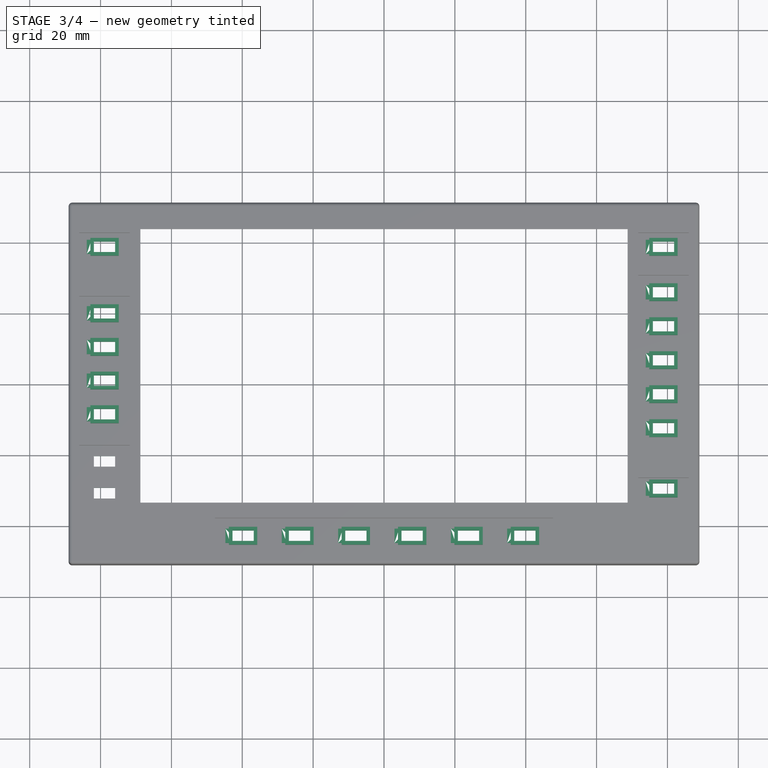
[diagram: stage 3 of 4 — top view after this stage's code; geometry added in this stage tinted green]
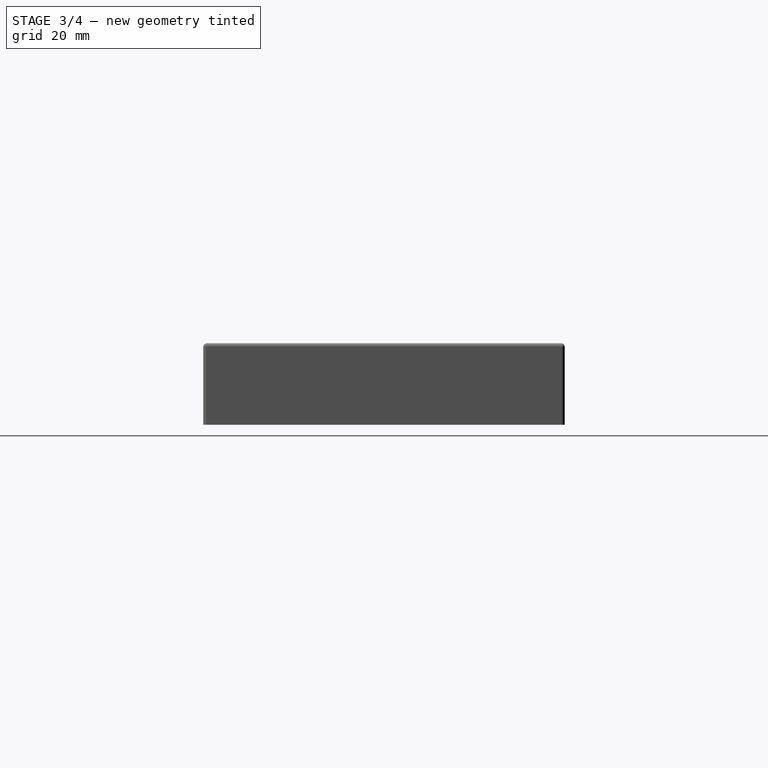
[diagram: stage 3 of 4 — right view after this stage's code; geometry added in this stage tinted green]
FEATURE [Sketcher::SketchObject] Sketch007  label="Button Hole Sketch"
  ExternalGeometry = -> [Pocket003]
  FullyConstrained = true
  MapMode = 5
  Placement = pos=(0,0,19) rot=(0,0,1;0rad)
  Support = -> [Pocket003]
  sketch-geometry (149):
    g0: LineSegment StartX=-81.88 StartY=40.056 StartZ=0 EndX=-75.88 EndY=40.056 EndZ=0
    g1: LineSegment StartX=-75.88 StartY=40.056 StartZ=0 EndX=-75.88 EndY=37.056 EndZ=0
    g2: LineSegment StartX=-75.88 StartY=37.056 StartZ=0 EndX=-81.88 EndY=37.056 EndZ=0
    g3: LineSegment StartX=-81.88 StartY=37.056 StartZ=0 EndX=-81.88 EndY=40.056 EndZ=0
    g4: LineSegment StartX=-78.88 StartY=42.556 StartZ=0 EndX=-78.88 EndY=34.556 EndZ=0
    g5: LineSegment StartX=-86 StartY=38.556 StartZ=0 EndX=-71.76 EndY=38.556 EndZ=0
    g6: LineSegment StartX=-86 StartY=15.056 StartZ=0 EndX=-71.76 EndY=15.056 EndZ=0
    g7: LineSegment StartX=-86 StartY=5.556 StartZ=0 EndX=-71.76 EndY=5.556 EndZ=0
    g8: LineSegment StartX=-86 StartY=-3.944 StartZ=0 EndX=-71.76 EndY=-3.944 EndZ=0
    g9: LineSegment StartX=-86 StartY=15.056 StartZ=0 EndX=-86 EndY=24.556 EndZ=0
    g10: LineSegment StartX=-86 StartY=15.056 StartZ=0 EndX=-86 EndY=5.556 EndZ=0
    g11: LineSegment StartX=-86 StartY=5.556 StartZ=0 EndX=-86 EndY=-3.944 EndZ=0
    g12: LineSegment StartX=-86 StartY=-3.944 StartZ=0 EndX=-86 EndY=-13.444 EndZ=0
    g13: LineSegment StartX=-78.88 StartY=24.556 StartZ=0 EndX=-78.88 EndY=-13.444 EndZ=0
    g14: LineSegment StartX=-81.88 StartY=21.306 StartZ=0 EndX=-75.88 EndY=21.306 EndZ=0
    g15: LineSegment StartX=-75.88 StartY=21.306 StartZ=0 EndX=-75.88 EndY=18.306 EndZ=0
    g16: LineSegment StartX=-75.88 StartY=18.306 StartZ=0 EndX=-81.88 EndY=18.306 EndZ=0
    g17: LineSegment StartX=-81.88 StartY=18.306 StartZ=0 EndX=-81.88 EndY=21.306 EndZ=0
    g18: LineSegment StartX=-81.88 StartY=21.306 StartZ=0 EndX=-81.88 EndY=24.556 EndZ=0
    g19: LineSegment StartX=-81.88 StartY=18.306 StartZ=0 EndX=-81.88 EndY=15.056 EndZ=0
    g20: LineSegment StartX=-81.88 StartY=11.806 StartZ=0 EndX=-75.88 EndY=11.806 EndZ=0
    g21: LineSegment StartX=-75.88 StartY=11.806 StartZ=0 EndX=-75.88 EndY=8.806 EndZ=0
    g22: LineSegment StartX=-75.88 StartY=8.806 StartZ=0 EndX=-81.88 EndY=8.806 EndZ=0
    g23: LineSegment StartX=-81.88 StartY=8.806 StartZ=0 EndX=-81.88 EndY=11.806 EndZ=0
    g24: LineSegment StartX=-75.88 StartY=11.806 StartZ=0 EndX=-75.88 EndY=15.056 EndZ=0
    g25: LineSegment StartX=-75.88 StartY=8.806 StartZ=0 EndX=-75.88 EndY=5.556 EndZ=0
    g26: LineSegment StartX=-81.88 StartY=2.306 StartZ=0 EndX=-75.88 EndY=2.306 EndZ=0
    g27: LineSegment StartX=-75.88 StartY=2.306 StartZ=0 EndX=-75.88 EndY=-0.694 EndZ=0
    g28: LineSegment StartX=-75.88 StartY=-0.694 StartZ=0 EndX=-81.88 EndY=-0.694 EndZ=0
    g29: LineSegment StartX=-81.88 StartY=-0.694 StartZ=0 EndX=-81.88 EndY=2.306 EndZ=0
    g30: LineSegment StartX=-81.88 StartY=2.306 StartZ=0 EndX=-81.88 EndY=5.556 EndZ=0
    g31: LineSegment StartX=-81.88 StartY=-0.694 StartZ=0 EndX=-81.88 EndY=-3.944 EndZ=0
    g32: LineSegment StartX=-81.88 StartY=-7.194 StartZ=0 EndX=-75.88 EndY=-7.194 EndZ=0
    g33: LineSegment StartX=-75.88 StartY=-7.194 StartZ=0 EndX=-75.88 EndY=-10.194 EndZ=0
    g34: LineSegment StartX=-75.88 StartY=-10.194 StartZ=0 EndX=-81.88 EndY=-10.194 EndZ=0
    g35: LineSegment StartX=-81.88 StartY=-10.194 StartZ=0 EndX=-81.88 EndY=-7.194 EndZ=0
    g36: LineSegment StartX=-75.88 StartY=-7.194 StartZ=0 EndX=-75.88 EndY=-3.944 EndZ=0
    g37: LineSegment StartX=-75.88 StartY=-10.194 StartZ=0 EndX=-75.88 EndY=-13.444 EndZ=0
    g38: LineSegment StartX=78.88 StartY=42.556 StartZ=0 EndX=78.88 EndY=34.556 EndZ=0
    g39: LineSegment StartX=71.76 StartY=38.556 StartZ=0 EndX=86 EndY=38.556 EndZ=0
    g40: LineSegment StartX=75.88 StartY=40.056 StartZ=0 EndX=81.88 EndY=40.056 EndZ=0
    g41: LineSegment StartX=81.88 StartY=40.056 StartZ=0 EndX=81.88 EndY=37.056 EndZ=0
    g42: LineSegment StartX=81.88 StartY=37.056 StartZ=0 EndX=75.88 EndY=37.056 EndZ=0
    g43: LineSegment StartX=75.88 StartY=37.056 StartZ=0 EndX=75.88 EndY=40.056 EndZ=0
    g44: LineSegment StartX=71.76 StartY=20.956 StartZ=0 EndX=86 EndY=20.956 EndZ=0
    g45: LineSegment StartX=71.76 StartY=11.356 StartZ=0 EndX=86 EndY=11.356 EndZ=0
    g46: LineSegment StartX=71.76 StartY=1.756 StartZ=0 EndX=86 EndY=1.756 EndZ=0
    g47: LineSegment StartX=71.76 StartY=-7.844 StartZ=0 EndX=86 EndY=-7.844 EndZ=0
    g48: LineSegment StartX=78.88 StartY=30.556 StartZ=0 EndX=78.88 EndY=20.956 EndZ=0
    g49: LineSegment StartX=78.88 StartY=20.956 StartZ=0 EndX=78.88 EndY=11.356 EndZ=0
    g50: LineSegment StartX=78.88 StartY=11.356 StartZ=0 EndX=78.88 EndY=1.756 EndZ=0
    g51: LineSegment StartX=78.88 StartY=1.756 StartZ=0 EndX=78.88 EndY=-7.844 EndZ=0
    g52: LineSegment StartX=78.88 StartY=-7.844 StartZ=0 EndX=78.88 EndY=-17.444 EndZ=0
    g53: LineSegment StartX=75.88 StartY=27.256 StartZ=0 EndX=81.88 EndY=27.256 EndZ=0
    g54: LineSegment StartX=81.88 StartY=27.256 StartZ=0 EndX=81.88 EndY=24.256 EndZ=0
    g55: LineSegment StartX=81.88 StartY=24.256 StartZ=0 EndX=75.88 EndY=24.256 EndZ=0
    g56: LineSegment StartX=75.88 StartY=24.256 StartZ=0 EndX=75.88 EndY=27.256 EndZ=0
    g57: LineSegment StartX=75.88 StartY=27.256 StartZ=0 EndX=75.88 EndY=30.556 EndZ=0
    g58: LineSegment StartX=75.88 StartY=24.256 StartZ=0 EndX=75.88 EndY=20.956 EndZ=0
    g59: LineSegment StartX=75.88 StartY=17.656 StartZ=0 EndX=81.88 EndY=17.656 EndZ=0
    g60: LineSegment StartX=81.88 StartY=17.656 StartZ=0 EndX=81.88 EndY=14.656 EndZ=0
    g61: LineSegment StartX=81.88 StartY=14.656 StartZ=0 EndX=75.88 EndY=14.656 EndZ=0
    g62: LineSegment StartX=75.88 StartY=14.656 StartZ=0 EndX=75.88 EndY=17.656 EndZ=0
    g63: LineSegment StartX=81.88 StartY=17.656 StartZ=0 EndX=81.88 EndY=20.956 EndZ=0
    g64: LineSegment StartX=81.88 StartY=14.656 StartZ=0 EndX=81.88 EndY=11.356 EndZ=0
    g65: LineSegment StartX=75.88 StartY=8.056 StartZ=0 EndX=81.88 EndY=8.056 EndZ=0
    g66: LineSegment StartX=81.88 StartY=8.056 StartZ=0 EndX=81.88 EndY=5.056 EndZ=0
    g67: LineSegment StartX=81.88 StartY=5.056 StartZ=0 EndX=75.88 EndY=5.056 EndZ=0
    g68: LineSegment StartX=75.88 StartY=5.056 StartZ=0 EndX=75.88 EndY=8.056 EndZ=0
    g69: LineSegment StartX=75.88 StartY=8.056 StartZ=0 EndX=75.88 EndY=11.356 EndZ=0
    g70: LineSegment StartX=75.88 StartY=5.056 StartZ=0 EndX=75.88 EndY=1.756 EndZ=0
    g71: LineSegment StartX=75.88 StartY=-1.544 StartZ=0 EndX=81.88 EndY=-1.544 EndZ=0
    g72: LineSegment StartX=81.88 StartY=-1.544 StartZ=0 EndX=81.88 EndY=-4.544 EndZ=0
    g73: LineSegment StartX=81.88 StartY=-4.544 StartZ=0 EndX=75.88 EndY=-4.544 EndZ=0
    g74: LineSegment StartX=75.88 StartY=-4.544 StartZ=0 EndX=75.88 EndY=-1.544 EndZ=0
    g75: LineSegment StartX=81.88 StartY=-1.544 StartZ=0 EndX=81.88 EndY=1.756 EndZ=0
    g76: LineSegment StartX=81.88 StartY=-4.544 StartZ=0 EndX=81.88 EndY=-7.844 EndZ=0
    g77: LineSegment StartX=75.88 StartY=-11.144 StartZ=0 EndX=81.88 EndY=-11.144 EndZ=0
    g78: LineSegment StartX=81.88 StartY=-11.144 StartZ=0 EndX=81.88 EndY=-14.144 EndZ=0
    g79: LineSegment StartX=81.88 StartY=-14.144 StartZ=0 EndX=75.88 EndY=-14.144 EndZ=0
    g80: LineSegment StartX=75.88 StartY=-14.144 StartZ=0 EndX=75.88 EndY=-11.144 EndZ=0
    g81: LineSegment StartX=75.88 StartY=-11.144 StartZ=0 EndX=75.88 EndY=-7.844 EndZ=0
    g82: LineSegment StartX=81.88 StartY=-14.144 StartZ=0 EndX=81.88 EndY=-17.444 EndZ=0
    g83: LineSegment StartX=78.88 StartY=-26.676 StartZ=0 EndX=78.88 EndY=-32.676 EndZ=0
    g84: LineSegment StartX=71.76 StartY=-29.676 StartZ=0 EndX=86 EndY=-29.676 EndZ=0
    g85: LineSegment StartX=75.88 StartY=-28.176 StartZ=0 EndX=81.88 EndY=-28.176 EndZ=0
    g86: LineSegment StartX=81.88 StartY=-28.176 StartZ=0 EndX=81.88 EndY=-31.176 EndZ=0
    g87: LineSegment StartX=81.88 StartY=-31.176 StartZ=0 EndX=75.88 EndY=-31.176 EndZ=0
    g88: LineSegment StartX=75.88 StartY=-31.176 StartZ=0 EndX=75.88 EndY=-28.176 EndZ=0
    g89: LineSegment StartX=-31.8133 StartY=-38 StartZ=0 EndX=-31.8133 EndY=-48 EndZ=0
    g90: LineSegment StartX=-15.9067 StartY=-38 StartZ=0 EndX=-15.9067 EndY=-48 EndZ=0
    g91: LineSegment StartX=-1.07e-14 StartY=-38 StartZ=0 EndX=-1.07e-14 EndY=-48 EndZ=0
    g92: LineSegment StartX=15.9067 StartY=-38 StartZ=0 EndX=15.9067 EndY=-48 EndZ=0
    g93: LineSegment StartX=31.8133 StartY=-38 StartZ=0 EndX=31.8133 EndY=-48 EndZ=0
    g94: LineSegment StartX=-31.8133 StartY=-43 StartZ=0 EndX=-47.72 EndY=-43 EndZ=0
    g95: LineSegment StartX=-31.8133 StartY=-43 StartZ=0 EndX=-15.9067 EndY=-43 EndZ=0
    g96: LineSegment StartX=-15.9067 StartY=-43 StartZ=0 EndX=-1.07e-14 EndY=-43 EndZ=0
    g97: LineSegment StartX=-1.07e-14 StartY=-43 StartZ=0 EndX=15.9067 EndY=-43 EndZ=0
    g98: LineSegment StartX=15.9067 StartY=-43 StartZ=0 EndX=31.8133 EndY=-43 EndZ=0
    g99: LineSegment StartX=31.8133 StartY=-43 StartZ=0 EndX=47.72 EndY=-43 EndZ=0
    g100: LineSegment StartX=-42.7667 StartY=-41.5 StartZ=0 EndX=-36.7667 EndY=-41.5 EndZ=0
    g101: LineSegment StartX=-36.7667 StartY=-41.5 StartZ=0 EndX=-36.7667 EndY=-44.5 EndZ=0
    g102: LineSegment StartX=-36.7667 StartY=-44.5 StartZ=0 EndX=-42.7667 EndY=-44.5 EndZ=0
    g103: LineSegment StartX=-42.7667 StartY=-44.5 StartZ=0 EndX=-42.7667 EndY=-41.5 EndZ=0
    g104: LineSegment StartX=-26.86 StartY=-41.5 StartZ=0 EndX=-20.86 EndY=-41.5 EndZ=0
    g105: LineSegment StartX=-20.86 StartY=-41.5 StartZ=0 EndX=-20.86 EndY=-44.5 EndZ=0
    g106: LineSegment StartX=-20.86 StartY=-44.5 StartZ=0 EndX=-26.86 EndY=-44.5 EndZ=0
    g107: LineSegment StartX=-26.86 StartY=-44.5 StartZ=0 EndX=-26.86 EndY=-41.5 EndZ=0
    g108: LineSegment StartX=-10.9533 StartY=-41.5 StartZ=0 EndX=-4.95333 EndY=-41.5 EndZ=0
    g109: LineSegment StartX=-4.95333 StartY=-41.5 StartZ=0 EndX=-4.95333 EndY=-44.5 EndZ=0
    g110: LineSegment StartX=-4.95333 StartY=-44.5 StartZ=0 EndX=-10.9533 EndY=-44.5 EndZ=0
    g111: LineSegment StartX=-10.9533 StartY=-44.5 StartZ=0 EndX=-10.9533 EndY=-41.5 EndZ=0
    g112: LineSegment StartX=4.95333 StartY=-41.5 StartZ=0 EndX=10.9533 EndY=-41.5 EndZ=0
    g113: LineSegment StartX=10.9533 StartY=-41.5 StartZ=0 EndX=10.9533 EndY=-44.5 EndZ=0
    g114: LineSegment StartX=10.9533 StartY=-44.5 StartZ=0 EndX=4.95333 EndY=-44.5 EndZ=0
    g115: LineSegment StartX=4.95333 StartY=-44.5 StartZ=0 EndX=4.95333 EndY=-41.5 EndZ=0
    g116: LineSegment StartX=20.86 StartY=-41.5 StartZ=0 EndX=26.86 EndY=-41.5 EndZ=0
    g117: LineSegment StartX=26.86 StartY=-41.5 StartZ=0 EndX=26.86 EndY=-44.5 EndZ=0
    g118: LineSegment StartX=26.86 StartY=-44.5 StartZ=0 EndX=20.86 EndY=-44.5 EndZ=0
    g119: LineSegment StartX=20.86 StartY=-44.5 StartZ=0 EndX=20.86 EndY=-41.5 EndZ=0
    g120: LineSegment StartX=36.7667 StartY=-41.5 StartZ=0 EndX=42.7667 EndY=-41.5 EndZ=0
    g121: LineSegment StartX=42.7667 StartY=-41.5 StartZ=0 EndX=42.7667 EndY=-44.5 EndZ=0
    g122: LineSegment StartX=42.7667 StartY=-44.5 StartZ=0 EndX=36.7667 EndY=-44.5 EndZ=0
    g123: LineSegment StartX=36.7667 StartY=-44.5 StartZ=0 EndX=36.7667 EndY=-41.5 EndZ=0
    g124: LineSegment StartX=-42.7667 StartY=-41.5 StartZ=0 EndX=-47.72 EndY=-41.5 EndZ=0
    g125: LineSegment StartX=-36.7667 StartY=-41.5 StartZ=0 EndX=-31.8133 EndY=-41.5 EndZ=0
    g126: LineSegment StartX=-31.8133 StartY=-44.5 StartZ=0 EndX=-26.86 EndY=-44.5 EndZ=0
    g127: LineSegment StartX=-20.86 StartY=-44.5 StartZ=0 EndX=-15.9067 EndY=-44.5 EndZ=0
    g128: LineSegment StartX=-10.9533 StartY=-41.5 StartZ=0 EndX=-15.9067 EndY=-41.5 EndZ=0
    g129: LineSegment StartX=-4.95333 StartY=-41.5 StartZ=0 EndX=-1.07e-14 EndY=-41.5 EndZ=0
    g130: LineSegment StartX=4.95333 StartY=-44.5 StartZ=0 EndX=-1.07e-14 EndY=-44.5 EndZ=0
    g131: LineSegment StartX=10.9533 StartY=-44.5 StartZ=0 EndX=15.9067 EndY=-44.5 EndZ=0
    g132: LineSegment StartX=20.86 StartY=-41.5 StartZ=0 EndX=15.9067 EndY=-41.5 EndZ=0
    g133: LineSegment StartX=26.86 StartY=-41.5 StartZ=0 EndX=31.8133 EndY=-41.5 EndZ=0
    g134: LineSegment StartX=36.7667 StartY=-44.5 StartZ=0 EndX=31.8133 EndY=-44.5 EndZ=0
    g135: LineSegment StartX=42.7667 StartY=-44.5 StartZ=0 EndX=47.72 EndY=-44.5 EndZ=0
    g136: LineSegment StartX=-81.88 StartY=-20.444 StartZ=0 EndX=-75.88 EndY=-20.444 EndZ=0
    g137: LineSegment StartX=-75.88 StartY=-20.444 StartZ=0 EndX=-75.88 EndY=-23.444 EndZ=0
    g138: LineSegment StartX=-75.88 StartY=-23.444 StartZ=0 EndX=-81.88 EndY=-23.444 EndZ=0
    g139: LineSegment StartX=-81.88 StartY=-23.444 StartZ=0 EndX=-81.88 EndY=-20.444 EndZ=0
    g140: LineSegment StartX=-81.88 StartY=-29.444 StartZ=0 EndX=-75.88 EndY=-29.444 EndZ=0
    g141: LineSegment StartX=-75.88 StartY=-29.444 StartZ=0 EndX=-75.88 EndY=-32.444 EndZ=0
    g142: LineSegment StartX=-75.88 StartY=-32.444 StartZ=0 EndX=-81.88 EndY=-32.444 EndZ=0
    g143: LineSegment StartX=-81.88 StartY=-32.444 StartZ=0 EndX=-81.88 EndY=-29.444 EndZ=0
    g144: LineSegment StartX=-78.88 StartY=-20.444 StartZ=0 EndX=-78.88 EndY=-17.444 EndZ=0
    g145: LineSegment StartX=-78.88 StartY=-23.444 StartZ=0 EndX=-78.88 EndY=-29.444 EndZ=0
    g146: LineSegment StartX=-78.88 StartY=-20.444 StartZ=0 EndX=-78.88 EndY=-23.444 EndZ=0
    g147: LineSegment StartX=-78.88 StartY=-29.444 StartZ=0 EndX=-78.88 EndY=-32.444 EndZ=0
    g148: LineSegment StartX=-78.88 StartY=-32.444 StartZ=0 EndX=-78.88 EndY=-35.444 EndZ=0
  constraints (432):
    c: Coincident(g0,g1)
    c: Coincident(g1,g2)
    c: Coincident(g2,g3)
    c: Coincident(g3,g0)
    c: Horizontal(g2)
    c: Vertical(g1)
    c: PointOnObject(g4,g-3)
    c: PointOnObject(g4,g-5)
    c: PointOnObject(g5,g-4)
    c: PointOnObject(g5,g-6)
    c: Symmetric(g-6,g-4,g4)
    c: Symmetric(g-5,g-4,g5)
    c: Symmetric(g0,g0,g4)
    c: Symmetric(g2,g0,g5)
    c: DistanceX(g0,g0) = 6
    c: DistanceY(g3,g3) = 3
    c: PointOnObject(g6,g-7)
    c: PointOnObject(g6,g-9)
    c: Horizontal(g6)
    c: PointOnObject(g7,g-7)
    c: PointOnObject(g7,g-9)
    c: Horizontal(g7)
    c: PointOnObject(g8,g-7)
    c: PointOnObject(g8,g-9)
    c: Horizontal(g8)
    c: Coincident(g9,g6)
    c: Coincident(g9,g-8)
    c: Coincident(g10,g6)
    c: Coincident(g10,g7)
    c: Coincident(g11,g7)
    c: Coincident(g11,g8)
    c: Coincident(g12,g8)
    c: Coincident(g12,g-10)
    c: Equal(g9,g10)
    c: Equal(g10,g11)
    c: Equal(g11,g12)
    c: PointOnObject(g13,g-8)
    c: PointOnObject(g13,g-10)
    c: Symmetric(g-10,g12,g13)
    c: Coincident(g14,g15)
    c: Coincident(g15,g16)
    c: Coincident(g16,g17)
    c: Coincident(g17,g14)
    c: Horizontal(g16)
    c: Vertical(g15)
    c: Vertical(g17)
    c: Equal(g17,g3)
    c: Equal(g14,g0)
    c: Symmetric(g14,g14,g13)
    c: Coincident(g18,g14)
    c: PointOnObject(g18,g-8)
    c: Vertical(g18)
    c: Coincident(g19,g16)
    c: PointOnObject(g19,g6)
    c: Vertical(g19)
    c: Equal(g19,g18)
    c: Coincident(g20,g21)
    c: Coincident(g21,g22)
    c: Coincident(g22,g23)
    c: Coincident(g23,g20)
    c: Horizontal(g22)
    c: Vertical(g21)
    c: Vertical(g23)
    c: Equal(g20,g14)
    c: Equal(g23,g17)
    c: Symmetric(g20,g20,g13)
    c: Coincident(g24,g20)
    c: PointOnObject(g24,g6)
    c: Vertical(g24)
    c: Coincident(g25,g21)
    c: PointOnObject(g25,g7)
    c: Vertical(g25)
    c: Equal(g25,g24)
    c: Coincident(g26,g27)
    c: Coincident(g27,g28)
    c: Coincident(g28,g29)
    c: Coincident(g29,g26)
    c: Horizontal(g28)
    c: Vertical(g27)
    c: Vertical(g29)
    c: Symmetric(g26,g26,g13)
    c: Equal(g20,g26)
    c: Equal(g29,g23)
    c: Coincident(g30,g26)
    c: PointOnObject(g30,g7)
    c: Vertical(g30)
    c: Coincident(g31,g28)
    c: PointOnObject(g31,g8)
    c: Vertical(g31)
    c: Equal(g31,g30)
    c: Coincident(g32,g33)
    c: Coincident(g33,g34)
    c: Coincident(g34,g35)
    c: Coincident(g35,g32)
    c: Horizontal(g34)
    c: Vertical(g33)
    c: Vertical(g35)
    c: Equal(g32,g26)
    c: Equal(g35,g29)
    c: Symmetric(g32,g32,g13)
    c: Coincident(g36,g32)
    c: PointOnObject(g36,g8)
    c: Vertical(g36)
    c: Coincident(g37,g33)
    c: PointOnObject(g37,g-10)
    c: Vertical(g37)
    c: Equal(g37,g36)
    c: PointOnObject(g38,g-12)
    c: PointOnObject(g38,g-14)
    c: PointOnObject(g39,g-11)
    c: PointOnObject(g39,g-13)
    c: Symmetric(g-12,g-13,g38)
    c: Symmetric(g-12,g-14,g39)
    c: Coincident(g40,g41)
    c: Coincident(g41,g42)
    c: Coincident(g42,g43)
    c: Coincident(g43,g40)
    c: Horizontal(g42)
    c: Vertical(g41)
    c: Equal(g40,g0)
    c: Equal(g1,g43)
    c: Symmetric(g40,g40,g38)
    c: Symmetric(g40,g42,g39)
    c: PointOnObject(g44,g-17)
    c: PointOnObject(g44,g-16)
    c: Horizontal(g44)
    c: PointOnObject(g45,g-17)
    c: PointOnObject(g45,g-16)
    c: Horizontal(g45)
    c: PointOnObject(g46,g-17)
    c: PointOnObject(g46,g-16)
    c: Horizontal(g46)
    c: PointOnObject(g47,g-17)
    c: PointOnObject(g47,g-16)
    c: Horizontal(g47)
    c: PointOnObject(g48,g-15)
    c: PointOnObject(g48,g44)
    c: Symmetric(g-16,g-17,g48)
    c: Coincident(g49,g48)
    c: PointOnObject(g49,g45)
    c: Vertical(g49)
    c: Coincident(g50,g49)
    c: PointOnObject(g50,g46)
    c: Vertical(g50)
    c: Coincident(g51,g50)
    c: PointOnObject(g51,g47)
    c: Vertical(g51)
    c: Coincident(g52,g51)
    c: PointOnObject(g52,g-18)
    c: Vertical(g52)
    c: Equal(g49,g48)
    c: Equal(g48,g50)
    c: Equal(g50,g51)
    c: Equal(g51,g52)
    c: Coincident(g53,g54)
    c: Coincident(g54,g55)
    c: Coincident(g55,g56)
    c: Coincident(g56,g53)
    c: Horizontal(g55)
    c: Vertical(g54)
    c: Vertical(g56)
    c: Symmetric(g53,g53,g48)
    c: Equal(g53,g40)
    c: Equal(g56,g43)
    c: Coincident(g57,g53)
    c: PointOnObject(g57,g-15)
    c: Vertical(g57)
    c: Coincident(g58,g55)
    c: PointOnObject(g58,g44)
    c: Vertical(g58)
    c: Equal(g58,g57)
    c: Coincident(g59,g60)
    c: Coincident(g60,g61)
    c: Coincident(g61,g62)
    c: Coincident(g62,g59)
    c: Horizontal(g61)
    c: Vertical(g60)
    c: Vertical(g62)
    c: Equal(g59,g53)
    c: Equal(g54,g60)
    c: Symmetric(g59,g59,g49)
    c: Coincident(g63,g59)
    c: PointOnObject(g63,g44)
    c: Vertical(g63)
    c: Coincident(g64,g60)
    c: PointOnObject(g64,g45)
    c: Vertical(g64)
    c: Equal(g64,g63)
    c: Coincident(g65,g66)
    c: Coincident(g66,g67)
    c: Coincident(g67,g68)
    c: Coincident(g68,g65)
    c: Horizontal(g67)
    c: Vertical(g66)
    c: Vertical(g68)
    c: Symmetric(g65,g65,g50)
    c: Equal(g65,g59)
    c: Coincident(g69,g65)
    c: PointOnObject(g69,g45)
    c: Vertical(g69)
    c: Coincident(g70,g67)
    c: PointOnObject(g70,g46)
    c: Vertical(g70)
    c: Equal(g70,g69)
    c: Equal(g66,g62)
    c: Coincident(g71,g72)
    c: Coincident(g72,g73)
    c: Coincident(g73,g74)
    c: Coincident(g74,g71)
    c: Horizontal(g73)
    c: Vertical(g72)
    c: Vertical(g74)
    c: Equal(g71,g65)
    c: Equal(g74,g68)
    c: Symmetric(g71,g71,g51)
    c: Coincident(g75,g71)
    c: PointOnObject(g75,g46)
    c: Vertical(g75)
    c: Coincident(g76,g72)
    c: PointOnObject(g76,g47)
    c: Vertical(g76)
    c: Equal(g76,g75)
    c: Coincident(g77,g78)
    c: Coincident(g78,g79)
    c: Coincident(g79,g80)
    c: Coincident(g80,g77)
    c: Horizontal(g79)
    c: Vertical(g78)
    c: Vertical(g80)
    c: Equal(g77,g71)
    c: Equal(g80,g74)
    c: Symmetric(g77,g77,g52)
    c: Coincident(g81,g77)
    c: PointOnObject(g81,g47)
    c: Vertical(g81)
    c: Coincident(g82,g78)
    c: PointOnObject(g82,g-18)
    c: Vertical(g82)
    c: Equal(g82,g81)
    c: PointOnObject(g83,g-19)
    c: PointOnObject(g83,g-22)
    c: PointOnObject(g84,g-20)
    c: PointOnObject(g84,g-21)
    c: Symmetric(g-21,g-20,g83)
    c: Symmetric(g-20,g-22,g84)
    c: Coincident(g85,g86)
    c: Coincident(g86,g87)
    c: Coincident(g87,g88)
    c: Coincident(g88,g85)
    c: Horizontal(g87)
    c: Vertical(g86)
    c: Symmetric(g85,g85,g83)
    c: Symmetric(g85,g87,g84)
    c: Equal(g85,g77)
    c: Equal(g88,g80)
    c: PointOnObject(g89,g-24)
    c: PointOnObject(g89,g-25)
    c: Vertical(g89)
    c: PointOnObject(g90,g-24)
    c: PointOnObject(g90,g-25)
    c: Vertical(g90)
    c: PointOnObject(g91,g-24)
    c: PointOnObject(g91,g-25)
    c: Vertical(g91)
    c: PointOnObject(g92,g-24)
    c: PointOnObject(g92,g-25)
    c: Vertical(g92)
    c: PointOnObject(g93,g-24)
    c: PointOnObject(g93,g-25)
    c: Vertical(g93)
    c: PointOnObject(g94,g89)
    c: PointOnObject(g94,g-23)
    c: Symmetric(g-25,g-24,g94)
    c: Coincident(g95,g94)
    c: PointOnObject(g95,g90)
    c: Horizontal(g95)
    c: Coincident(g96,g95)
    c: PointOnObject(g96,g91)
    c: Horizontal(g96)
    c: Coincident(g97,g96)
    c: PointOnObject(g97,g92)
    c: Horizontal(g97)
    c: Coincident(g98,g97)
    c: PointOnObject(g98,g93)
    c: Horizontal(g98)
    c: Coincident(g99,g98)
    c: PointOnObject(g99,g-26)
    c: Horizontal(g99)
    c: Equal(g99,g98)
    c: Equal(g98,g97)
    c: Equal(g97,g96)
    c: Equal(g96,g95)
    c: Equal(g95,g94)
    c: Coincident(g100,g101)
    c: Coincident(g101,g102)
    c: Coincident(g102,g103)
    c: Coincident(g103,g100)
    c: Horizontal(g100)
    c: Horizontal(g102)
    c: Vertical(g101)
    c: Coincident(g104,g105)
    c: Coincident(g105,g106)
    c: Coincident(g106,g107)
    c: Coincident(g107,g104)
    c: Horizontal(g104)
    c: Horizontal(g106)
    c: Vertical(g105)
    c: Coincident(g108,g109)
    c: Coincident(g109,g110)
    c: Coincident(g110,g111)
    c: Coincident(g111,g108)
    c: Horizontal(g108)
    c: Horizontal(g110)
    c: Vertical(g109)
    c: Coincident(g112,g113)
    c: Coincident(g113,g114)
    c: Coincident(g114,g115)
    c: Coincident(g115,g112)
    c: Horizontal(g112)
    c: Horizontal(g114)
    c: Vertical(g113)
    c: Coincident(g116,g117)
    c: Coincident(g117,g118)
    c: Coincident(g118,g119)
    c: Coincident(g119,g116)
    c: Horizontal(g116)
    c: Horizontal(g118)
    c: Vertical(g117)
    c: Coincident(g120,g121)
    c: Coincident(g121,g122)
    c: Coincident(g122,g123)
    c: Coincident(g123,g120)
    c: Horizontal(g120)
    c: Horizontal(g122)
    c: Vertical(g121)
    c: Symmetric(g100,g102,g94)
    c: Symmetric(g104,g106,g95)
    c: Symmetric(g108,g110,g96)
    c: Symmetric(g112,g114,g97)
    c: Symmetric(g116,g118,g98)
    c: Symmetric(g120,g122,g99)
    c: Equal(g32,g100)
    c: Equal(g100,g104)
    c: Equal(g104,g108)
    c: Equal(g108,g112)
    c: Equal(g112,g116)
    c: Equal(g116,g120)
    c: Equal(g103,g35)
    c: Equal(g35,g107)
    c: Equal(g107,g111)
    c: Equal(g111,g115)
    c: Equal(g115,g119)
    c: Equal(g119,g123)
    c: Coincident(g124,g100)
    c: PointOnObject(g124,g-23)
    c: Horizontal(g124)
    c: Coincident(g125,g100)
    c: PointOnObject(g125,g89)
    c: Horizontal(g125)
    c: Equal(g125,g124)
    c: PointOnObject(g126,g89)
    c: Coincident(g126,g106)
    c: Horizontal(g126)
    c: Coincident(g127,g105)
    c: PointOnObject(g127,g90)
    c: Horizontal(g127)
    c: Equal(g127,g126)
    c: Coincident(g128,g108)
    c: PointOnObject(g128,g90)
    c: Horizontal(g128)
    c: Coincident(g129,g108)
    c: PointOnObject(g129,g91)
    c: Horizontal(g129)
    c: Equal(g129,g128)
    c: Coincident(g130,g114)
    c: PointOnObject(g130,g91)
    c: Horizontal(g130)
    c: Coincident(g131,g113)
    c: PointOnObject(g131,g92)
    c: Horizontal(g131)
    c: Equal(g131,g130)
    c: Coincident(g132,g116)
    c: PointOnObject(g132,g92)
    c: Horizontal(g132)
    c: Coincident(g133,g116)
    c: PointOnObject(g133,g93)
    c: Horizontal(g133)
    c: Equal(g133,g132)
    c: Coincident(g134,g122)
    c: PointOnObject(g134,g93)
    c: Horizontal(g134)
    c: Coincident(g135,g121)
    c: PointOnObject(g135,g-26)
    c: Horizontal(g135)
    c: Equal(g135,g134)
    c: Coincident(g136,g137)
    c: Coincident(g137,g138)
    c: Coincident(g138,g139)
    c: Coincident(g139,g136)
    c: Horizontal(g138)
    c: Vertical(g137)
    c: Vertical(g139)
    c: Coincident(g140,g141)
    c: Coincident(g141,g142)
    c: Coincident(g142,g143)
    c: Coincident(g143,g140)
    c: Horizontal(g140)
    c: Horizontal(g142)
    c: Vertical(g141)
    c: Vertical(g143)
    c: Equal(g136,g32)
    c: Equal(g140,g32)
    c: Equal(g139,g143)
    c: Equal(g143,g35)
    c: PointOnObject(g144,g136)
    c: PointOnObject(g144,g-28)
    c: Symmetric(g-28,g-29,g144)
    c: Symmetric(g136,g136,g144)
    c: PointOnObject(g145,g138)
    c: PointOnObject(g145,g140)
    c: Vertical(g145)
    c: Coincident(g146,g144)
    c: Coincident(g146,g145)
    c: Vertical(g146)
    c: Coincident(g147,g145)
    c: PointOnObject(g147,g142)
    c: Symmetric(g140,g140,g147)
    c: Coincident(g148,g147)
    c: PointOnObject(g148,g-30)
    c: Vertical(g148)
    c: Equal(g148,g144)
    c: DistanceY(g144,g144) = 3
FEATURE [PartDesign::Pocket] Pocket004  label="Button Holes"
  BaseFeature = -> Pocket003
  Direction = (0,0,-1)
  Length = 5
  Length2 = 5
  Profile = -> Sketch007
  ReferenceAxis = -> Sketch007 [N_Axis]
  Type = 0
FEATURE [Sketcher::SketchObject] Sketch008  label="Button Outline Bottom Sketch"
  ExternalGeometry = -> [Pocket004]
  FullyConstrained = true
  MapMode = 5
  Placement = pos=(0,0,19) rot=(0,0,1;0rad)
  Support = -> [Pocket004]
  sketch-geometry (432):
    g0: LineSegment StartX=-81.88 StartY=40.056 StartZ=0 EndX=-75.88 EndY=40.056 EndZ=0
    g1: LineSegment StartX=-75.88 StartY=40.056 StartZ=0 EndX=-75.88 EndY=37.056 EndZ=0
    g2: LineSegment StartX=-75.88 StartY=37.056 StartZ=0 EndX=-81.88 EndY=37.056 EndZ=0
    g3: LineSegment StartX=-82.88 StartY=41.056 StartZ=0 EndX=-74.88 EndY=41.056 EndZ=0
    g4: LineSegment StartX=-74.88 StartY=41.056 StartZ=0 EndX=-74.88 EndY=36.056 EndZ=0
    g5: LineSegment StartX=-74.88 StartY=36.056 StartZ=0 EndX=-82.88 EndY=36.056 EndZ=0
    g6: LineSegment StartX=-75.88 StartY=40.056 StartZ=0 EndX=-75.88 EndY=41.056 EndZ=0
    g7: LineSegment StartX=-75.88 StartY=40.056 StartZ=0 EndX=-74.88 EndY=40.056 EndZ=0
    g8: LineSegment StartX=-82.88 StartY=41.056 StartZ=0 EndX=-82.88 EndY=40.556 EndZ=0
    g9: LineSegment StartX=-82.88 StartY=40.556 StartZ=0 EndX=-83.88 EndY=40.556 EndZ=0
    g10: LineSegment StartX=-83.88 StartY=40.556 StartZ=0 EndX=-83.88 EndY=36.556 EndZ=0
    g11: LineSegment StartX=-83.88 StartY=36.556 StartZ=0 EndX=-82.88 EndY=36.556 EndZ=0
    g12: LineSegment StartX=-82.88 StartY=36.556 StartZ=0 EndX=-82.88 EndY=36.056 EndZ=0
    g13: LineSegment StartX=-82.88 StartY=40.556 StartZ=0 EndX=-82.88 EndY=36.556 EndZ=0
    g14: LineSegment StartX=-81.88 StartY=37.056 StartZ=0 EndX=-81.88 EndY=36.056 EndZ=0
    g15: LineSegment StartX=-81.88 StartY=37.056 StartZ=0 EndX=-82.88 EndY=37.056 EndZ=0
    g16: LineSegment StartX=-81.88 StartY=38.556 StartZ=0 EndX=-83.88 EndY=38.556 EndZ=0
    g17: LineSegment StartX=-82.88 StartY=39.556 StartZ=0 EndX=-81.88 EndY=39.556 EndZ=0
    g18: LineSegment StartX=-82.88 StartY=39.556 StartZ=0 EndX=-82.88 EndY=37.556 EndZ=0
    g19: LineSegment StartX=-82.88 StartY=37.556 StartZ=0 EndX=-81.88 EndY=37.556 EndZ=0
    g20: LineSegment StartX=-81.88 StartY=37.556 StartZ=0 EndX=-81.88 EndY=37.056 EndZ=0
    g21: LineSegment StartX=-81.88 StartY=39.556 StartZ=0 EndX=-81.88 EndY=40.056 EndZ=0
    g22: LineSegment StartX=-82.88 StartY=39.556 StartZ=0 EndX=-82.88 EndY=40.556 EndZ=0
    g23: LineSegment StartX=-82.88 StartY=39.556 StartZ=0 EndX=-83.88 EndY=39.556 EndZ=0
    g24: LineSegment StartX=-82.88 StartY=22.306 StartZ=0 EndX=-74.88 EndY=22.306 EndZ=0
    g25: LineSegment StartX=-81.88 StartY=21.306 StartZ=0 EndX=-75.88 EndY=21.306 EndZ=0
    g26: LineSegment StartX=-75.88 StartY=21.306 StartZ=0 EndX=-75.88 EndY=18.306 EndZ=0
    g27: LineSegment StartX=-75.88 StartY=18.306 StartZ=0 EndX=-81.88 EndY=18.306 EndZ=0
    g28: LineSegment StartX=-74.88 StartY=22.306 StartZ=0 EndX=-74.88 EndY=17.306 EndZ=0
    g29: LineSegment StartX=-74.88 StartY=17.306 StartZ=0 EndX=-82.88 EndY=17.306 EndZ=0
    g30: LineSegment StartX=-75.88 StartY=21.306 StartZ=0 EndX=-75.88 EndY=22.306 EndZ=0
    g31: LineSegment StartX=-75.88 StartY=21.306 StartZ=0 EndX=-74.88 EndY=21.306 EndZ=0
    g32: LineSegment StartX=-82.88 StartY=22.306 StartZ=0 EndX=-82.88 EndY=21.806 EndZ=0
    g33: LineSegment StartX=-82.88 StartY=21.806 StartZ=0 EndX=-83.88 EndY=21.806 EndZ=0
    g34: LineSegment StartX=-83.88 StartY=21.806 StartZ=0 EndX=-83.88 EndY=17.806 EndZ=0
    g35: LineSegment StartX=-83.88 StartY=17.806 StartZ=0 EndX=-82.88 EndY=17.806 EndZ=0
    g36: LineSegment StartX=-82.88 StartY=17.806 StartZ=0 EndX=-82.88 EndY=17.306 EndZ=0
    g37: LineSegment StartX=-82.88 StartY=21.806 StartZ=0 EndX=-82.88 EndY=17.806 EndZ=0
    g38: LineSegment StartX=-81.88 StartY=18.306 StartZ=0 EndX=-81.88 EndY=17.306 EndZ=0
    g39: LineSegment StartX=-81.88 StartY=18.306 StartZ=0 EndX=-82.88 EndY=18.306 EndZ=0
    g40: LineSegment StartX=-81.88 StartY=19.806 StartZ=0 EndX=-83.88 EndY=19.806 EndZ=0
    g41: LineSegment StartX=-82.88 StartY=20.806 StartZ=0 EndX=-81.88 EndY=20.806 EndZ=0
    g42: LineSegment StartX=-82.88 StartY=20.806 StartZ=0 EndX=-82.88 EndY=18.806 EndZ=0
    g43: LineSegment StartX=-82.88 StartY=18.806 StartZ=0 EndX=-81.88 EndY=18.806 EndZ=0
    g44: LineSegment StartX=-81.88 StartY=18.806 StartZ=0 EndX=-81.88 EndY=18.306 EndZ=0
    g45: LineSegment StartX=-81.88 StartY=20.806 StartZ=0 EndX=-81.88 EndY=21.306 EndZ=0
    g46: LineSegment StartX=-82.88 StartY=20.806 StartZ=0 EndX=-82.88 EndY=21.806 EndZ=0
    g47: LineSegment StartX=-82.88 StartY=20.806 StartZ=0 EndX=-83.88 EndY=20.806 EndZ=0
    g48: LineSegment StartX=-82.88 StartY=12.806 StartZ=0 EndX=-74.88 EndY=12.806 EndZ=0
    g49: LineSegment StartX=-81.88 StartY=11.806 StartZ=0 EndX=-75.88 EndY=11.806 EndZ=0
    g50: LineSegment StartX=-75.88 StartY=11.806 StartZ=0 EndX=-75.88 EndY=8.806 EndZ=0
    g51: LineSegment StartX=-75.88 StartY=8.806 StartZ=0 EndX=-81.88 EndY=8.806 EndZ=0
    g52: LineSegment StartX=-74.88 StartY=12.806 StartZ=0 EndX=-74.88 EndY=7.806 EndZ=0
    g53: LineSegment StartX=-74.88 StartY=7.806 StartZ=0 EndX=-82.88 EndY=7.806 EndZ=0
    g54: LineSegment StartX=-75.88 StartY=11.806 StartZ=0 EndX=-75.88 EndY=12.806 EndZ=0
    g55: LineSegment StartX=-75.88 StartY=11.806 StartZ=0 EndX=-74.88 EndY=11.806 EndZ=0
    g56: LineSegment StartX=-82.88 StartY=12.806 StartZ=0 EndX=-82.88 EndY=12.306 EndZ=0
    g57: LineSegment StartX=-82.88 StartY=12.306 StartZ=0 EndX=-83.88 EndY=12.306 EndZ=0
    g58: LineSegment StartX=-83.88 StartY=12.306 StartZ=0 EndX=-83.88 EndY=8.306 EndZ=0
    g59: LineSegment StartX=-83.88 StartY=8.306 StartZ=0 EndX=-82.88 EndY=8.306 EndZ=0
    g60: LineSegment StartX=-82.88 StartY=8.306 StartZ=0 EndX=-82.88 EndY=7.806 EndZ=0
    g61: LineSegment StartX=-82.88 StartY=12.306 StartZ=0 EndX=-82.88 EndY=8.306 EndZ=0
    g62: LineSegment StartX=-81.88 StartY=8.806 StartZ=0 EndX=-81.88 EndY=7.806 EndZ=0
    g63: LineSegment StartX=-81.88 StartY=8.806 StartZ=0 EndX=-82.88 EndY=8.806 EndZ=0
    g64: LineSegment StartX=-81.88 StartY=10.306 StartZ=0 EndX=-83.88 EndY=10.306 EndZ=0
    g65: LineSegment StartX=-82.88 StartY=11.306 StartZ=0 EndX=-81.88 EndY=11.306 EndZ=0
    g66: LineSegment StartX=-82.88 StartY=11.306 StartZ=0 EndX=-82.88 EndY=9.306 EndZ=0
    g67: LineSegment StartX=-82.88 StartY=9.306 StartZ=0 EndX=-81.88 EndY=9.306 EndZ=0
    g68: LineSegment StartX=-81.88 StartY=9.306 StartZ=0 EndX=-81.88 EndY=8.806 EndZ=0
    g69: LineSegment StartX=-81.88 StartY=11.306 StartZ=0 EndX=-81.88 EndY=11.806 EndZ=0
    g70: LineSegment StartX=-82.88 StartY=11.306 StartZ=0 EndX=-82.88 EndY=12.306 EndZ=0
    g71: LineSegment StartX=-82.88 StartY=11.306 StartZ=0 EndX=-83.88 EndY=11.306 EndZ=0
    g72: LineSegment StartX=-81.88 StartY=2.306 StartZ=0 EndX=-75.88 EndY=2.306 EndZ=0
    g73: LineSegment StartX=-75.88 StartY=2.306 StartZ=0 EndX=-75.88 EndY=-0.694 EndZ=0
    g74: LineSegment StartX=-75.88 StartY=-0.694 StartZ=0 EndX=-81.88 EndY=-0.694 EndZ=0
    g75: LineSegment StartX=-82.88 StartY=3.306 StartZ=0 EndX=-74.88 EndY=3.306 EndZ=0
    g76: LineSegment StartX=-74.88 StartY=3.306 StartZ=0 EndX=-74.88 EndY=-1.694 EndZ=0
    g77: LineSegment StartX=-74.88 StartY=-1.694 StartZ=0 EndX=-82.88 EndY=-1.694 EndZ=0
    g78: LineSegment StartX=-75.88 StartY=2.306 StartZ=0 EndX=-75.88 EndY=3.306 EndZ=0
    g79: LineSegment StartX=-75.88 StartY=2.306 StartZ=0 EndX=-74.88 EndY=2.306 EndZ=0
    g80: LineSegment StartX=-82.88 StartY=3.306 StartZ=0 EndX=-82.88 EndY=2.806 EndZ=0
    g81: LineSegment StartX=-82.88 StartY=2.806 StartZ=0 EndX=-83.88 EndY=2.806 EndZ=0
    g82: LineSegment StartX=-83.88 StartY=2.806 StartZ=0 EndX=-83.88 EndY=-1.194 EndZ=0
    g83: LineSegment StartX=-83.88 StartY=-1.194 StartZ=0 EndX=-82.88 EndY=-1.194 EndZ=0
    g84: LineSegment StartX=-82.88 StartY=-1.194 StartZ=0 EndX=-82.88 EndY=-1.694 EndZ=0
    g85: LineSegment StartX=-82.88 StartY=2.806 StartZ=0 EndX=-82.88 EndY=-1.194 EndZ=0
    g86: LineSegment StartX=-81.88 StartY=-0.694 StartZ=0 EndX=-81.88 EndY=-1.694 EndZ=0
    g87: LineSegment StartX=-81.88 StartY=-0.694 StartZ=0 EndX=-82.88 EndY=-0.694 EndZ=0
    g88: LineSegment StartX=-81.88 StartY=0.806 StartZ=0 EndX=-83.88 EndY=0.806 EndZ=0
    g89: LineSegment StartX=-82.88 StartY=1.806 StartZ=0 EndX=-81.88 EndY=1.806 EndZ=0
    g90: LineSegment StartX=-82.88 StartY=1.806 StartZ=0 EndX=-82.88 EndY=-0.194 EndZ=0
    g91: LineSegment StartX=-82.88 StartY=-0.194 StartZ=0 EndX=-81.88 EndY=-0.194 EndZ=0
    g92: LineSegment StartX=-81.88 StartY=-0.194 StartZ=0 EndX=-81.88 EndY=-0.694 EndZ=0
    g93: LineSegment StartX=-81.88 StartY=1.806 StartZ=0 EndX=-81.88 EndY=2.306 EndZ=0
    g94: LineSegment StartX=-82.88 StartY=1.806 StartZ=0 EndX=-82.88 EndY=2.806 EndZ=0
    g95: LineSegment StartX=-82.88 StartY=1.806 StartZ=0 EndX=-83.88 EndY=1.806 EndZ=0
    g96: LineSegment StartX=-81.88 StartY=-7.194 StartZ=0 EndX=-75.88 EndY=-7.194 EndZ=0
    g97: LineSegment StartX=-75.88 StartY=-7.194 StartZ=0 EndX=-75.88 EndY=-10.194 EndZ=0
    g98: LineSegment StartX=-75.88 StartY=-10.194 StartZ=0 EndX=-81.88 EndY=-10.194 EndZ=0
    g99: LineSegment StartX=-82.88 StartY=-6.194 StartZ=0 EndX=-74.88 EndY=-6.194 EndZ=0
    g100: LineSegment StartX=-74.88 StartY=-6.194 StartZ=0 EndX=-74.88 EndY=-11.194 EndZ=0
    g101: LineSegment StartX=-74.88 StartY=-11.194 StartZ=0 EndX=-82.88 EndY=-11.194 EndZ=0
    g102: LineSegment StartX=-75.88 StartY=-7.194 StartZ=0 EndX=-75.88 EndY=-6.194 EndZ=0
    g103: LineSegment StartX=-75.88 StartY=-7.194 StartZ=0 EndX=-74.88 EndY=-7.194 EndZ=0
    g104: LineSegment StartX=-82.88 StartY=-6.194 StartZ=0 EndX=-82.88 EndY=-6.694 EndZ=0
    g105: LineSegment StartX=-82.88 StartY=-6.694 StartZ=0 EndX=-83.88 EndY=-6.694 EndZ=0
    g106: LineSegment StartX=-83.88 StartY=-6.694 StartZ=0 EndX=-83.88 EndY=-10.694 EndZ=0
    g107: LineSegment StartX=-83.88 StartY=-10.694 StartZ=0 EndX=-82.88 EndY=-10.694 EndZ=0
    g108: LineSegment StartX=-82.88 StartY=-10.694 StartZ=0 EndX=-82.88 EndY=-11.194 EndZ=0
    g109: LineSegment StartX=-82.88 StartY=-6.694 StartZ=0 EndX=-82.88 EndY=-10.694 EndZ=0
    g110: LineSegment StartX=-81.88 StartY=-10.194 StartZ=0 EndX=-81.88 EndY=-11.194 EndZ=0
    g111: LineSegment StartX=-81.88 StartY=-10.194 StartZ=0 EndX=-82.88 EndY=-10.194 EndZ=0
    g112: LineSegment StartX=-81.88 StartY=-8.694 StartZ=0 EndX=-83.88 EndY=-8.694 EndZ=0
    g113: LineSegment StartX=-82.88 StartY=-7.694 StartZ=0 EndX=-81.88 EndY=-7.694 EndZ=0
    g114: LineSegment StartX=-82.88 StartY=-7.694 StartZ=0 EndX=-82.88 EndY=-9.694 EndZ=0
    g115: LineSegment StartX=-82.88 StartY=-9.694 StartZ=0 EndX=-81.88 EndY=-9.694 EndZ=0
    g116: LineSegment StartX=-81.88 StartY=-9.694 StartZ=0 EndX=-81.88 EndY=-10.194 EndZ=0
    g117: LineSegment StartX=-81.88 StartY=-7.694 StartZ=0 EndX=-81.88 EndY=-7.194 EndZ=0
    g118: LineSegment StartX=-82.88 StartY=-7.694 StartZ=0 EndX=-82.88 EndY=-6.694 EndZ=0
    g119: LineSegment StartX=-82.88 StartY=-7.694 StartZ=0 EndX=-83.88 EndY=-7.694 EndZ=0
    g120: LineSegment StartX=75.88 StartY=40.056 StartZ=0 EndX=81.88 EndY=40.056 EndZ=0
    g121: LineSegment StartX=81.88 StartY=40.056 StartZ=0 EndX=81.88 EndY=37.056 EndZ=0
    g122: LineSegment StartX=81.88 StartY=37.056 StartZ=0 EndX=75.88 EndY=37.056 EndZ=0
    g123: LineSegment StartX=74.88 StartY=41.056 StartZ=0 EndX=82.88 EndY=41.056 EndZ=0
    g124: LineSegment StartX=82.88 StartY=41.056 StartZ=0 EndX=82.88 EndY=36.056 EndZ=0
    g125: LineSegment StartX=82.88 StartY=36.056 StartZ=0 EndX=74.88 EndY=36.056 EndZ=0
    g126: LineSegment StartX=81.88 StartY=40.056 StartZ=0 EndX=81.88 EndY=41.056 EndZ=0
    g127: LineSegment StartX=81.88 StartY=40.056 StartZ=0 EndX=82.88 EndY=40.056 EndZ=0
    g128: LineSegment StartX=74.88 StartY=41.056 StartZ=0 EndX=74.88 EndY=40.556 EndZ=0
    g129: LineSegment StartX=74.88 StartY=40.556 StartZ=0 EndX=73.88 EndY=40.556 EndZ=0
    g130: LineSegment StartX=73.88 StartY=40.556 StartZ=0 EndX=73.88 EndY=36.556 EndZ=0
    g131: LineSegment StartX=73.88 StartY=36.556 StartZ=0 EndX=74.88 EndY=36.556 EndZ=0
    g132: LineSegment StartX=74.88 StartY=36.556 StartZ=0 EndX=74.88 EndY=36.056 EndZ=0
    g133: LineSegment StartX=74.88 StartY=40.556 StartZ=0 EndX=74.88 EndY=36.556 EndZ=0
    g134: LineSegment StartX=75.88 StartY=37.056 StartZ=0 EndX=75.88 EndY=36.056 EndZ=0
    g135: LineSegment StartX=75.88 StartY=37.056 StartZ=0 EndX=74.88 EndY=37.056 EndZ=0
    g136: LineSegment StartX=75.88 StartY=38.556 StartZ=0 EndX=73.88 EndY=38.556 EndZ=0
    g137: LineSegment StartX=74.88 StartY=39.556 StartZ=0 EndX=75.88 EndY=39.556 EndZ=0
    g138: LineSegment StartX=74.88 StartY=39.556 StartZ=0 EndX=74.88 EndY=37.556 EndZ=0
    g139: LineSegment StartX=74.88 StartY=37.556 StartZ=0 EndX=75.88 EndY=37.556 EndZ=0
    g140: LineSegment StartX=75.88 StartY=37.556 StartZ=0 EndX=75.88 EndY=37.056 EndZ=0
    g141: LineSegment StartX=75.88 StartY=39.556 StartZ=0 EndX=75.88 EndY=40.056 EndZ=0
    g142: LineSegment StartX=74.88 StartY=39.556 StartZ=0 EndX=74.88 EndY=40.556 EndZ=0
    g143: LineSegment StartX=74.88 StartY=39.556 StartZ=0 EndX=73.88 EndY=39.556 EndZ=0
    g144: LineSegment StartX=75.88 StartY=27.256 StartZ=0 EndX=81.88 EndY=27.256 EndZ=0
    g145: LineSegment StartX=81.88 StartY=27.256 StartZ=0 EndX=81.88 EndY=24.256 EndZ=0
    g146: LineSegment StartX=81.88 StartY=24.256 StartZ=0 EndX=75.88 EndY=24.256 EndZ=0
    g147: LineSegment StartX=74.88 StartY=28.256 StartZ=0 EndX=82.88 EndY=28.256 EndZ=0
    g148: LineSegment StartX=82.88 StartY=28.256 StartZ=0 EndX=82.88 EndY=23.256 EndZ=0
    g149: LineSegment StartX=82.88 StartY=23.256 StartZ=0 EndX=74.88 EndY=23.256 EndZ=0
    g150: LineSegment StartX=81.88 StartY=27.256 StartZ=0 EndX=81.88 EndY=28.256 EndZ=0
    g151: LineSegment StartX=81.88 StartY=27.256 StartZ=0 EndX=82.88 EndY=27.256 EndZ=0
    g152: LineSegment StartX=74.88 StartY=28.256 StartZ=0 EndX=74.88 EndY=27.756 EndZ=0
    g153: LineSegment StartX=74.88 StartY=27.756 StartZ=0 EndX=73.88 EndY=27.756 EndZ=0
    g154: LineSegment StartX=73.88 StartY=27.756 StartZ=0 EndX=73.88 EndY=23.756 EndZ=0
    g155: LineSegment StartX=73.88 StartY=23.756 StartZ=0 EndX=74.88 EndY=23.756 EndZ=0
    g156: LineSegment StartX=74.88 StartY=23.756 StartZ=0 EndX=74.88 EndY=23.256 EndZ=0
    g157: LineSegment StartX=74.88 StartY=27.756 StartZ=0 EndX=74.88 EndY=23.756 EndZ=0
    g158: LineSegment StartX=75.88 StartY=24.256 StartZ=0 EndX=75.88 EndY=23.256 EndZ=0
    g159: LineSegment StartX=75.88 StartY=24.256 StartZ=0 EndX=74.88 EndY=24.256 EndZ=0
    g160: LineSegment StartX=75.88 StartY=25.756 StartZ=0 EndX=73.88 EndY=25.756 EndZ=0
    g161: LineSegment StartX=74.88 StartY=26.756 StartZ=0 EndX=75.88 EndY=26.756 EndZ=0
    g162: LineSegment StartX=74.88 StartY=26.756 StartZ=0 EndX=74.88 EndY=24.756 EndZ=0
    g163: LineSegment StartX=74.88 StartY=24.756 StartZ=0 EndX=75.88 EndY=24.756 EndZ=0
    g164: LineSegment StartX=75.88 StartY=24.756 StartZ=0 EndX=75.88 EndY=24.256 EndZ=0
    g165: LineSegment StartX=75.88 StartY=26.756 StartZ=0 EndX=75.88 EndY=27.256 EndZ=0
    g166: LineSegment StartX=74.88 StartY=26.756 StartZ=0 EndX=74.88 EndY=27.756 EndZ=0
    g167: LineSegment StartX=74.88 StartY=26.756 StartZ=0 EndX=73.88 EndY=26.756 EndZ=0
    g168: LineSegment StartX=75.88 StartY=17.656 StartZ=0 EndX=81.88 EndY=17.656 EndZ=0
    g169: LineSegment StartX=81.88 StartY=17.656 StartZ=0 EndX=81.88 EndY=14.656 EndZ=0
    g170: LineSegment StartX=81.88 StartY=14.656 StartZ=0 EndX=75.88 EndY=14.656 EndZ=0
    g171: LineSegment StartX=74.88 StartY=18.656 StartZ=0 EndX=82.88 EndY=18.656 EndZ=0
    g172: LineSegment StartX=82.88 StartY=18.656 StartZ=0 EndX=82.88 EndY=13.656 EndZ=0
    g173: LineSegment StartX=82.88 StartY=13.656 StartZ=0 EndX=74.88 EndY=13.656 EndZ=0
    g174: LineSegment StartX=81.88 StartY=17.656 StartZ=0 EndX=81.88 EndY=18.656 EndZ=0
    g175: LineSegment StartX=81.88 StartY=17.656 StartZ=0 EndX=82.88 EndY=17.656 EndZ=0
    g176: LineSegment StartX=74.88 StartY=18.656 StartZ=0 EndX=74.88 EndY=18.156 EndZ=0
    g177: LineSegment StartX=74.88 StartY=18.156 StartZ=0 EndX=73.88 EndY=18.156 EndZ=0
    g178: LineSegment StartX=73.88 StartY=18.156 StartZ=0 EndX=73.88 EndY=14.156 EndZ=0
    g179: LineSegment StartX=73.88 StartY=14.156 StartZ=0 EndX=74.88 EndY=14.156 EndZ=0
    g180: LineSegment StartX=74.88 StartY=14.156 StartZ=0 EndX=74.88 EndY=13.656 EndZ=0
    g181: LineSegment StartX=74.88 StartY=18.156 StartZ=0 EndX=74.88 EndY=14.156 EndZ=0
    g182: LineSegment StartX=75.88 StartY=14.656 StartZ=0 EndX=75.88 EndY=13.656 EndZ=0
    g183: LineSegment StartX=75.88 StartY=14.656 StartZ=0 EndX=74.88 EndY=14.656 EndZ=0
    g184: LineSegment StartX=75.88 StartY=16.156 StartZ=0 EndX=73.88 EndY=16.156 EndZ=0
    g185: LineSegment StartX=74.88 StartY=17.156 StartZ=0 EndX=75.88 EndY=17.156 EndZ=0
    g186: LineSegment StartX=74.88 StartY=17.156 StartZ=0 EndX=74.88 EndY=15.156 EndZ=0
    g187: LineSegment StartX=74.88 StartY=15.156 StartZ=0 EndX=75.88 EndY=15.156 EndZ=0
    g188: LineSegment StartX=75.88 StartY=15.156 StartZ=0 EndX=75.88 EndY=14.656 EndZ=0
    g189: LineSegment StartX=75.88 StartY=17.156 StartZ=0 EndX=75.88 EndY=17.656 EndZ=0
    g190: LineSegment StartX=74.88 StartY=17.156 StartZ=0 EndX=74.88 EndY=18.156 EndZ=0
    g191: LineSegment StartX=74.88 StartY=17.156 StartZ=0 EndX=73.88 EndY=17.156 EndZ=0
    g192: LineSegment StartX=75.88 StartY=8.056 StartZ=0 EndX=81.88 EndY=8.056 EndZ=0
    g193: LineSegment StartX=81.88 StartY=8.056 StartZ=0 EndX=81.88 EndY=5.056 EndZ=0
    g194: LineSegment StartX=81.88 StartY=5.056 StartZ=0 EndX=75.88 EndY=5.056 EndZ=0
    g195: LineSegment StartX=74.88 StartY=9.056 StartZ=0 EndX=82.88 EndY=9.056 EndZ=0
    g196: LineSegment StartX=82.88 StartY=9.056 StartZ=0 EndX=82.88 EndY=4.056 EndZ=0
    g197: LineSegment StartX=82.88 StartY=4.056 StartZ=0 EndX=74.88 EndY=4.056 EndZ=0
    g198: LineSegment StartX=81.88 StartY=8.056 StartZ=0 EndX=81.88 EndY=9.056 EndZ=0
    g199: LineSegment StartX=81.88 StartY=8.056 StartZ=0 EndX=82.88 EndY=8.056 EndZ=0
    g200: LineSegment StartX=74.88 StartY=9.056 StartZ=0 EndX=74.88 EndY=8.556 EndZ=0
    g201: LineSegment StartX=74.88 StartY=8.556 StartZ=0 EndX=73.88 EndY=8.556 EndZ=0
    g202: LineSegment StartX=73.88 StartY=8.556 StartZ=0 EndX=73.88 EndY=4.556 EndZ=0
    g203: LineSegment StartX=73.88 StartY=4.556 StartZ=0 EndX=74.88 EndY=4.556 EndZ=0
    g204: LineSegment StartX=74.88 StartY=4.556 StartZ=0 EndX=74.88 EndY=4.056 EndZ=0
    g205: LineSegment StartX=74.88 StartY=8.556 StartZ=0 EndX=74.88 EndY=4.556 EndZ=0
    g206: LineSegment StartX=75.88 StartY=5.056 StartZ=0 EndX=75.88 EndY=4.056 EndZ=0
    g207: LineSegment StartX=75.88 StartY=5.056 StartZ=0 EndX=74.88 EndY=5.056 EndZ=0
    g208: LineSegment StartX=75.88 StartY=6.556 StartZ=0 EndX=73.88 EndY=6.556 EndZ=0
    g209: LineSegment StartX=74.88 StartY=7.556 StartZ=0 EndX=75.88 EndY=7.556 EndZ=0
    g210: LineSegment StartX=74.88 StartY=7.556 StartZ=0 EndX=74.88 EndY=5.556 EndZ=0
    g211: LineSegment StartX=74.88 StartY=5.556 StartZ=0 EndX=75.88 EndY=5.556 EndZ=0
    g212: LineSegment StartX=75.88 StartY=5.556 StartZ=0 EndX=75.88 EndY=5.056 EndZ=0
    g213: LineSegment StartX=75.88 StartY=7.556 StartZ=0 EndX=75.88 EndY=8.056 EndZ=0
    g214: LineSegment StartX=74.88 StartY=7.556 StartZ=0 EndX=74.88 EndY=8.556 EndZ=0
    g215: LineSegment StartX=74.88 StartY=7.556 StartZ=0 EndX=73.88 EndY=7.556 EndZ=0
    g216: LineSegment StartX=75.88 StartY=-1.544 StartZ=0 EndX=81.88 EndY=-1.544 EndZ=0
    g217: LineSegment StartX=81.88 StartY=-1.544 StartZ=0 EndX=81.88 EndY=-4.544 EndZ=0
    g218: LineSegment StartX=81.88 StartY=-4.544 StartZ=0 EndX=75.88 EndY=-4.544 EndZ=0
    g219: LineSegment StartX=74.88 StartY=-0.544 StartZ=0 EndX=82.88 EndY=-0.544 EndZ=0
    g220: LineSegment StartX=82.88 StartY=-0.544 StartZ=0 EndX=82.88 EndY=-5.544 EndZ=0
    g221: LineSegment StartX=82.88 StartY=-5.544 StartZ=0 EndX=74.88 EndY=-5.544 EndZ=0
    g222: LineSegment StartX=81.88 StartY=-1.544 StartZ=0 EndX=81.88 EndY=-0.544 EndZ=0
    g223: LineSegment StartX=81.88 StartY=-1.544 StartZ=0 EndX=82.88 EndY=-1.544 EndZ=0
    g224: LineSegment StartX=74.88 StartY=-0.544 StartZ=0 EndX=74.88 EndY=-1.044 EndZ=0
    g225: LineSegment StartX=74.88 StartY=-1.044 StartZ=0 EndX=73.88 EndY=-1.044 EndZ=0
    g226: LineSegment StartX=73.88 StartY=-1.044 StartZ=0 EndX=73.88 EndY=-5.044 EndZ=0
    g227: LineSegment StartX=73.88 StartY=-5.044 StartZ=0 EndX=74.88 EndY=-5.044 EndZ=0
    g228: LineSegment StartX=74.88 StartY=-5.044 StartZ=0 EndX=74.88 EndY=-5.544 EndZ=0
    g229: LineSegment StartX=74.88 StartY=-1.044 StartZ=0 EndX=74.88 EndY=-5.044 EndZ=0
    g230: LineSegment StartX=75.88 StartY=-4.544 StartZ=0 EndX=75.88 EndY=-5.544 EndZ=0
    g231: LineSegment StartX=75.88 StartY=-4.544 StartZ=0 EndX=74.88 EndY=-4.544 EndZ=0
    g232: LineSegment StartX=75.88 StartY=-3.044 StartZ=0 EndX=73.88 EndY=-3.044 EndZ=0
    g233: LineSegment StartX=74.88 StartY=-2.044 StartZ=0 EndX=75.88 EndY=-2.044 EndZ=0
    g234: LineSegment StartX=74.88 StartY=-2.044 StartZ=0 EndX=74.88 EndY=-4.044 EndZ=0
    g235: LineSegment StartX=74.88 StartY=-4.044 StartZ=0 EndX=75.88 EndY=-4.044 EndZ=0
    g236: LineSegment StartX=75.88 StartY=-4.044 StartZ=0 EndX=75.88 EndY=-4.544 EndZ=0
    g237: LineSegment StartX=75.88 StartY=-2.044 StartZ=0 EndX=75.88 EndY=-1.544 EndZ=0
    g238: LineSegment StartX=74.88 StartY=-2.044 StartZ=0 EndX=74.88 EndY=-1.044 EndZ=0
    g239: LineSegment StartX=74.88 StartY=-2.044 StartZ=0 EndX=73.88 EndY=-2.044 EndZ=0
    g240: LineSegment StartX=75.88 StartY=-11.144 StartZ=0 EndX=81.88 EndY=-11.144 EndZ=0
    g241: LineSegment StartX=81.88 StartY=-11.144 StartZ=0 EndX=81.88 EndY=-14.144 EndZ=0
    g242: LineSegment StartX=81.88 StartY=-14.144 StartZ=0 EndX=75.88 EndY=-14.144 EndZ=0
    g243: LineSegment StartX=74.88 StartY=-10.144 StartZ=0 EndX=82.88 EndY=-10.144 EndZ=0
    g244: LineSegment StartX=82.88 StartY=-10.144 StartZ=0 EndX=82.88 EndY=-15.144 EndZ=0
    g245: LineSegment StartX=82.88 StartY=-15.144 StartZ=0 EndX=74.88 EndY=-15.144 EndZ=0
    g246: LineSegment StartX=81.88 StartY=-11.144 StartZ=0 EndX=81.88 EndY=-10.144 EndZ=0
    g247: LineSegment StartX=81.88 StartY=-11.144 StartZ=0 EndX=82.88 EndY=-11.144 EndZ=0
    g248: LineSegment StartX=74.88 StartY=-10.144 StartZ=0 EndX=74.88 EndY=-10.644 EndZ=0
    g249: LineSegment StartX=74.88 StartY=-10.644 StartZ=0 EndX=73.88 EndY=-10.644 EndZ=0
    g250: LineSegment StartX=73.88 StartY=-10.644 StartZ=0 EndX=73.88 EndY=-14.644 EndZ=0
    g251: LineSegment StartX=73.88 StartY=-14.644 StartZ=0 EndX=74.88 EndY=-14.644 EndZ=0
    g252: LineSegment StartX=74.88 StartY=-14.644 StartZ=0 EndX=74.88 EndY=-15.144 EndZ=0
    g253: LineSegment StartX=74.88 StartY=-10.644 StartZ=0 EndX=74.88 EndY=-14.644 EndZ=0
    g254: LineSegment StartX=75.88 StartY=-14.144 StartZ=0 EndX=75.88 EndY=-15.144 EndZ=0
    g255: LineSegment StartX=75.88 StartY=-14.144 StartZ=0 EndX=74.88 EndY=-14.144 EndZ=0
    g256: LineSegment StartX=75.88 StartY=-12.644 StartZ=0 EndX=73.88 EndY=-12.644 EndZ=0
    g257: LineSegment StartX=74.88 StartY=-11.644 StartZ=0 EndX=75.88 EndY=-11.644 EndZ=0
    g258: LineSegment StartX=74.88 StartY=-11.644 StartZ=0 EndX=74.88 EndY=-13.644 EndZ=0
    g259: LineSegment StartX=74.88 StartY=-13.644 StartZ=0 EndX=75.88 EndY=-13.644 EndZ=0
    g260: LineSegment StartX=75.88 StartY=-13.644 StartZ=0 EndX=75.88 EndY=-14.144 EndZ=0
    g261: LineSegment StartX=75.88 StartY=-11.644 StartZ=0 EndX=75.88 EndY=-11.144 EndZ=0
    g262: LineSegment StartX=74.88 StartY=-11.644 StartZ=0 EndX=74.88 EndY=-10.644 EndZ=0
    g263: LineSegment StartX=74.88 StartY=-11.644 StartZ=0 EndX=73.88 EndY=-11.644 EndZ=0
    g264: LineSegment StartX=-42.7667 StartY=-41.5 StartZ=0 EndX=-36.7667 EndY=-41.5 EndZ=0
    g265: LineSegment StartX=-36.7667 StartY=-41.5 StartZ=0 EndX=-36.7667 EndY=-44.5 EndZ=0
    g266: LineSegment StartX=-36.7667 StartY=-44.5 StartZ=0 EndX=-42.7667 EndY=-44.5 EndZ=0
    g267: LineSegment StartX=-43.7667 StartY=-40.5 StartZ=0 EndX=-35.7667 EndY=-40.5 EndZ=0
    g268: LineSegment StartX=-35.7667 StartY=-40.5 StartZ=0 EndX=-35.7667 EndY=-45.5 EndZ=0
    g269: LineSegment StartX=-35.7667 StartY=-45.5 StartZ=0 EndX=-43.7667 EndY=-45.5 EndZ=0
    g270: LineSegment StartX=-36.7667 StartY=-41.5 StartZ=0 EndX=-36.7667 EndY=-40.5 EndZ=0
    g271: LineSegment StartX=-36.7667 StartY=-41.5 StartZ=0 EndX=-35.7667 EndY=-41.5 EndZ=0
    g272: LineSegment StartX=-43.7667 StartY=-40.5 StartZ=0 EndX=-43.7667 EndY=-41 EndZ=0
    g273: LineSegment StartX=-43.7667 StartY=-41 StartZ=0 EndX=-44.7667 EndY=-41 EndZ=0
    g274: LineSegment StartX=-44.7667 StartY=-41 StartZ=0 EndX=-44.7667 EndY=-45 EndZ=0
    g275: LineSegment StartX=-44.7667 StartY=-45 StartZ=0 EndX=-43.7667 EndY=-45 EndZ=0
    g276: LineSegment StartX=-43.7667 StartY=-45 StartZ=0 EndX=-43.7667 EndY=-45.5 EndZ=0
    g277: LineSegment StartX=-43.7667 StartY=-41 StartZ=0 EndX=-43.7667 EndY=-45 EndZ=0
    g278: LineSegment StartX=-42.7667 StartY=-44.5 StartZ=0 EndX=-42.7667 EndY=-45.5 EndZ=0
    g279: LineSegment StartX=-42.7667 StartY=-44.5 StartZ=0 EndX=-43.7667 EndY=-44.5 EndZ=0
    g280: LineSegment StartX=-42.7667 StartY=-43 StartZ=0 EndX=-44.7667 EndY=-43 EndZ=0
    g281: LineSegment StartX=-43.7667 StartY=-42 StartZ=0 EndX=-42.7667 EndY=-42 EndZ=0
    g282: LineSegment StartX=-43.7667 StartY=-42 StartZ=0 EndX=-43.7667 EndY=-44 EndZ=0
    g283: LineSegment StartX=-43.7667 StartY=-44 StartZ=0 EndX=-42.7667 EndY=-44 EndZ=0
    g284: LineSegment StartX=-42.7667 StartY=-44 StartZ=0 EndX=-42.7667 EndY=-44.5 EndZ=0
    g285: LineSegment StartX=-42.7667 StartY=-42 StartZ=0 EndX=-42.7667 EndY=-41.5 EndZ=0
    g286: LineSegment StartX=-43.7667 StartY=-42 StartZ=0 EndX=-43.7667 EndY=-41 EndZ=0
    g287: LineSegment StartX=-43.7667 StartY=-42 StartZ=0 EndX=-44.7667 EndY=-42 EndZ=0
    g288: LineSegment StartX=-26.86 StartY=-41.5 StartZ=0 EndX=-20.86 EndY=-41.5 EndZ=0
    g289: LineSegment StartX=-20.86 StartY=-41.5 StartZ=0 EndX=-20.86 EndY=-44.5 EndZ=0
    g290: LineSegment StartX=-20.86 StartY=-44.5 StartZ=0 EndX=-26.86 EndY=-44.5 EndZ=0
    g291: LineSegment StartX=-27.86 StartY=-40.5 StartZ=0 EndX=-19.86 EndY=-40.5 EndZ=0
    g292: LineSegment StartX=-19.86 StartY=-40.5 StartZ=0 EndX=-19.86 EndY=-45.5 EndZ=0
    g293: LineSegment StartX=-19.86 StartY=-45.5 StartZ=0 EndX=-27.86 EndY=-45.5 EndZ=0
    g294: LineSegment StartX=-20.86 StartY=-41.5 StartZ=0 EndX=-20.86 EndY=-40.5 EndZ=0
    g295: LineSegment StartX=-20.86 StartY=-41.5 StartZ=0 EndX=-19.86 EndY=-41.5 EndZ=0
    g296: LineSegment StartX=-27.86 StartY=-40.5 StartZ=0 EndX=-27.86 EndY=-41 EndZ=0
    g297: LineSegment StartX=-27.86 StartY=-41 StartZ=0 EndX=-28.86 EndY=-41 EndZ=0
    g298: LineSegment StartX=-28.86 StartY=-41 StartZ=0 EndX=-28.86 EndY=-45 EndZ=0
    g299: LineSegment StartX=-28.86 StartY=-45 StartZ=0 EndX=-27.86 EndY=-45 EndZ=0
    g300: LineSegment StartX=-27.86 StartY=-45 StartZ=0 EndX=-27.86 EndY=-45.5 EndZ=0
    g301: LineSegment StartX=-27.86 StartY=-41 StartZ=0 EndX=-27.86 EndY=-45 EndZ=0
    g302: LineSegment StartX=-26.86 StartY=-44.5 StartZ=0 EndX=-26.86 EndY=-45.5 EndZ=0
    g303: LineSegment StartX=-26.86 StartY=-44.5 StartZ=0 EndX=-27.86 EndY=-44.5 EndZ=0
    g304: LineSegment StartX=-26.86 StartY=-43 StartZ=0 EndX=-28.86 EndY=-43 EndZ=0
    g305: LineSegment StartX=-27.86 StartY=-42 StartZ=0 EndX=-26.86 EndY=-42 EndZ=0
    g306: LineSegment StartX=-27.86 StartY=-42 StartZ=0 EndX=-27.86 EndY=-44 EndZ=0
    g307: LineSegment StartX=-27.86 StartY=-44 StartZ=0 EndX=-26.86 EndY=-44 EndZ=0
    g308: LineSegment StartX=-26.86 StartY=-44 StartZ=0 EndX=-26.86 EndY=-44.5 EndZ=0
    g309: LineSegment StartX=-26.86 StartY=-42 StartZ=0 EndX=-26.86 EndY=-41.5 EndZ=0
    g310: LineSegment StartX=-27.86 StartY=-42 StartZ=0 EndX=-27.86 EndY=-41 EndZ=0
    g311: LineSegment StartX=-27.86 StartY=-42 StartZ=0 EndX=-28.86 EndY=-42 EndZ=0
    g312: LineSegment StartX=-10.9533 StartY=-41.5 StartZ=0 EndX=-4.95333 EndY=-41.5 EndZ=0
    g313: LineSegment StartX=-4.95333 StartY=-41.5 StartZ=0 EndX=-4.95333 EndY=-44.5 EndZ=0
    g314: LineSegment StartX=-4.95333 StartY=-44.5 StartZ=0 EndX=-10.9533 EndY=-44.5 EndZ=0
    g315: LineSegment StartX=-11.9533 StartY=-40.5 StartZ=0 EndX=-3.95333 EndY=-40.5 EndZ=0
    g316: LineSegment StartX=-3.95333 StartY=-40.5 StartZ=0 EndX=-3.95333 EndY=-45.5 EndZ=0
    g317: LineSegment StartX=-3.95333 StartY=-45.5 StartZ=0 EndX=-11.9533 EndY=-45.5 EndZ=0
    g318: LineSegment StartX=-4.95333 StartY=-41.5 StartZ=0 EndX=-4.95333 EndY=-40.5 EndZ=0
    g319: LineSegment StartX=-4.95333 StartY=-41.5 StartZ=0 EndX=-3.95333 EndY=-41.5 EndZ=0
    g320: LineSegment StartX=-11.9533 StartY=-40.5 StartZ=0 EndX=-11.9533 EndY=-41 EndZ=0
    g321: LineSegment StartX=-11.9533 StartY=-41 StartZ=0 EndX=-12.9533 EndY=-41 EndZ=0
    g322: LineSegment StartX=-12.9533 StartY=-41 StartZ=0 EndX=-12.9533 EndY=-45 EndZ=0
    g323: LineSegment StartX=-12.9533 StartY=-45 StartZ=0 EndX=-11.9533 EndY=-45 EndZ=0
    g324: LineSegment StartX=-11.9533 StartY=-45 StartZ=0 EndX=-11.9533 EndY=-45.5 EndZ=0
    g325: LineSegment StartX=-11.9533 StartY=-41 StartZ=0 EndX=-11.9533 EndY=-45 EndZ=0
    g326: LineSegment StartX=-10.9533 StartY=-44.5 StartZ=0 EndX=-10.9533 EndY=-45.5 EndZ=0
    g327: LineSegment StartX=-10.9533 StartY=-44.5 StartZ=0 EndX=-11.9533 EndY=-44.5 EndZ=0
    g328: LineSegment StartX=-10.9533 StartY=-43 StartZ=0 EndX=-12.9533 EndY=-43 EndZ=0
    g329: LineSegment StartX=-11.9533 StartY=-42 StartZ=0 EndX=-10.9533 EndY=-42 EndZ=0
    g330: LineSegment StartX=-11.9533 StartY=-42 StartZ=0 EndX=-11.9533 EndY=-44 EndZ=0
    g331: LineSegment StartX=-11.9533 StartY=-44 StartZ=0 EndX=-10.9533 EndY=-44 EndZ=0
    g332: LineSegment StartX=-10.9533 StartY=-44 StartZ=0 EndX=-10.9533 EndY=-44.5 EndZ=0
    g333: LineSegment StartX=-10.9533 StartY=-42 StartZ=0 EndX=-10.9533 EndY=-41.5 EndZ=0
    g334: LineSegment StartX=-11.9533 StartY=-42 StartZ=0 EndX=-11.9533 EndY=-41 EndZ=0
    g335: LineSegment StartX=-11.9533 StartY=-42 StartZ=0 EndX=-12.9533 EndY=-42 EndZ=0
    g336: LineSegment StartX=4.95333 StartY=-41.5 StartZ=0 EndX=10.9533 EndY=-41.5 EndZ=0
    g337: LineSegment StartX=10.9533 StartY=-41.5 StartZ=0 EndX=10.9533 EndY=-44.5 EndZ=0
    g338: LineSegment StartX=10.9533 StartY=-44.5 StartZ=0 EndX=4.95333 EndY=-44.5 EndZ=0
    g339: LineSegment StartX=3.95333 StartY=-40.5 StartZ=0 EndX=11.9533 EndY=-40.5 EndZ=0
    g340: LineSegment StartX=11.9533 StartY=-40.5 StartZ=0 EndX=11.9533 EndY=-45.5 EndZ=0
    g341: LineSegment StartX=11.9533 StartY=-45.5 StartZ=0 EndX=3.95333 EndY=-45.5 EndZ=0
    g342: LineSegment StartX=10.9533 StartY=-41.5 StartZ=0 EndX=10.9533 EndY=-40.5 EndZ=0
    g343: LineSegment StartX=10.9533 StartY=-41.5 StartZ=0 EndX=11.9533 EndY=-41.5 EndZ=0
    g344: LineSegment StartX=3.95333 StartY=-40.5 StartZ=0 EndX=3.95333 EndY=-41 EndZ=0
    g345: LineSegment StartX=3.95333 StartY=-41 StartZ=0 EndX=2.95333 EndY=-41 EndZ=0
    g346: LineSegment StartX=2.95333 StartY=-41 StartZ=0 EndX=2.95333 EndY=-45 EndZ=0
    g347: LineSegment StartX=2.95333 StartY=-45 StartZ=0 EndX=3.95333 EndY=-45 EndZ=0
    g348: LineSegment StartX=3.95333 StartY=-45 StartZ=0 EndX=3.95333 EndY=-45.5 EndZ=0
    g349: LineSegment StartX=3.95333 StartY=-41 StartZ=0 EndX=3.95333 EndY=-45 EndZ=0
    g350: LineSegment StartX=4.95333 StartY=-44.5 StartZ=0 EndX=4.95333 EndY=-45.5 EndZ=0
    g351: LineSegment StartX=4.95333 StartY=-44.5 StartZ=0 EndX=3.95333 EndY=-44.5 EndZ=0
    g352: LineSegment StartX=4.95333 StartY=-43 StartZ=0 EndX=2.95333 EndY=-43 EndZ=0
    g353: LineSegment StartX=3.95333 StartY=-42 StartZ=0 EndX=4.95333 EndY=-42 EndZ=0
    g354: LineSegment StartX=3.95333 StartY=-42 StartZ=0 EndX=3.95333 EndY=-44 EndZ=0
    g355: LineSegment StartX=3.95333 StartY=-44 StartZ=0 EndX=4.95333 EndY=-44 EndZ=0
    g356: LineSegment StartX=4.95333 StartY=-44 StartZ=0 EndX=4.95333 EndY=-44.5 EndZ=0
    g357: LineSegment StartX=4.95333 StartY=-42 StartZ=0 EndX=4.95333 EndY=-41.5 EndZ=0
    g358: LineSegment StartX=3.95333 StartY=-42 StartZ=0 EndX=3.95333 EndY=-41 EndZ=0
    g359: LineSegment StartX=3.95333 StartY=-42 StartZ=0 EndX=2.95333 EndY=-42 EndZ=0
    g360: LineSegment StartX=20.86 StartY=-41.5 StartZ=0 EndX=26.86 EndY=-41.5 EndZ=0
    g361: LineSegment StartX=26.86 StartY=-41.5 StartZ=0 EndX=26.86 EndY=-44.5 EndZ=0
    g362: LineSegment StartX=26.86 StartY=-44.5 StartZ=0 EndX=20.86 EndY=-44.5 EndZ=0
    g363: LineSegment StartX=19.86 StartY=-40.5 StartZ=0 EndX=27.86 EndY=-40.5 EndZ=0
    g364: LineSegment StartX=27.86 StartY=-40.5 StartZ=0 EndX=27.86 EndY=-45.5 EndZ=0
    g365: LineSegment StartX=27.86 StartY=-45.5 StartZ=0 EndX=19.86 EndY=-45.5 EndZ=0
    g366: LineSegment StartX=26.86 StartY=-41.5 StartZ=0 EndX=26.86 EndY=-40.5 EndZ=0
    g367: LineSegment StartX=26.86 StartY=-41.5 StartZ=0 EndX=27.86 EndY=-41.5 EndZ=0
    g368: LineSegment StartX=19.86 StartY=-40.5 StartZ=0 EndX=19.86 EndY=-41 EndZ=0
    g369: LineSegment StartX=19.86 StartY=-41 StartZ=0 EndX=18.86 EndY=-41 EndZ=0
    g370: LineSegment StartX=18.86 StartY=-41 StartZ=0 EndX=18.86 EndY=-45 EndZ=0
    g371: LineSegment StartX=18.86 StartY=-45 StartZ=0 EndX=19.86 EndY=-45 EndZ=0
    g372: LineSegment StartX=19.86 StartY=-45 StartZ=0 EndX=19.86 EndY=-45.5 EndZ=0
    g373: LineSegment StartX=19.86 StartY=-41 StartZ=0 EndX=19.86 EndY=-45 EndZ=0
    g374: LineSegment StartX=20.86 StartY=-44.5 StartZ=0 EndX=20.86 EndY=-45.5 EndZ=0
    g375: LineSegment StartX=20.86 StartY=-44.5 StartZ=0 EndX=19.86 EndY=-44.5 EndZ=0
    g376: LineSegment StartX=20.86 StartY=-43 StartZ=0 EndX=18.86 EndY=-43 EndZ=0
    g377: LineSegment StartX=19.86 StartY=-42 StartZ=0 EndX=20.86 EndY=-42 EndZ=0
    g378: LineSegment StartX=19.86 StartY=-42 StartZ=0 EndX=19.86 EndY=-44 EndZ=0
    g379: LineSegment StartX=19.86 StartY=-44 StartZ=0 EndX=20.86 EndY=-44 EndZ=0
    g380: LineSegment StartX=20.86 StartY=-44 StartZ=0 EndX=20.86 EndY=-44.5 EndZ=0
    g381: LineSegment StartX=20.86 StartY=-42 StartZ=0 EndX=20.86 EndY=-41.5 EndZ=0
    g382: LineSegment StartX=19.86 StartY=-42 StartZ=0 EndX=19.86 EndY=-41 EndZ=0
    g383: LineSegment StartX=19.86 StartY=-42 StartZ=0 EndX=18.86 EndY=-42 EndZ=0
    g384: LineSegment StartX=75.88 StartY=-28.176 StartZ=0 EndX=81.88 EndY=-28.176 EndZ=0
    g385: LineSegment StartX=81.88 StartY=-28.176 StartZ=0 EndX=81.88 EndY=-31.176 EndZ=0
    g386: LineSegment StartX=81.88 StartY=-31.176 StartZ=0 EndX=75.88 EndY=-31.176 EndZ=0
    g387: LineSegment StartX=74.88 StartY=-27.176 StartZ=0 EndX=82.88 EndY=-27.176 EndZ=0
    g388: LineSegment StartX=82.88 StartY=-27.176 StartZ=0 EndX=82.88 EndY=-32.176 EndZ=0
    g389: LineSegment StartX=82.88 StartY=-32.176 StartZ=0 EndX=74.88 EndY=-32.176 EndZ=0
    g390: LineSegment StartX=81.88 StartY=-28.176 StartZ=0 EndX=81.88 EndY=-27.176 EndZ=0
    g391: LineSegment StartX=81.88 StartY=-28.176 StartZ=0 EndX=82.88 EndY=-28.176 EndZ=0
    g392: LineSegment StartX=74.88 StartY=-27.176 StartZ=0 EndX=74.88 EndY=-27.676 EndZ=0
    g393: LineSegment StartX=74.88 StartY=-27.676 StartZ=0 EndX=73.88 EndY=-27.676 EndZ=0
    g394: LineSegment StartX=73.88 StartY=-27.676 StartZ=0 EndX=73.88 EndY=-31.676 EndZ=0
    g395: LineSegment StartX=73.88 StartY=-31.676 StartZ=0 EndX=74.88 EndY=-31.676 EndZ=0
    g396: LineSegment StartX=74.88 StartY=-31.676 StartZ=0 EndX=74.88 EndY=-32.176 EndZ=0
    g397: LineSegment StartX=74.88 StartY=-27.676 StartZ=0 EndX=74.88 EndY=-31.676 EndZ=0
    g398: LineSegment StartX=75.88 StartY=-31.176 StartZ=0 EndX=75.88 EndY=-32.176 EndZ=0
    g399: LineSegment StartX=75.88 StartY=-31.176 StartZ=0 EndX=74.88 EndY=-31.176 EndZ=0
    ... +32 more geometry lines
  constraints (1182):
    c: Coincident(g0,g1)
    c: Coincident(g1,g2)
    c: Horizontal(g0)
    c: Vertical(g1)
    c: Coincident(g0,g-4)
    c: Coincident(g1,g-6)
    c: Horizontal(g3)
    c: Coincident(g4,g3)
    c: Vertical(g4)
    c: Coincident(g5,g4)
    c: Horizontal(g5)
    c: Coincident(g6,g0)
    c: PointOnObject(g6,g3)
    c: Vertical(g6)
    c: Coincident(g7,g0)
    c: PointOnObject(g7,g4)
    c: Horizontal(g7)
    c: DistanceY(g6,g6) = 1
    c: DistanceX(g7,g7) = 1
    c: Coincident(g8,g3)
    c: Vertical(g8)
    c: Coincident(g9,g8)
    c: Horizontal(g9)
    c: Coincident(g10,g9)
    c: Coincident(g11,g10)
    c: Horizontal(g11)
    c: Coincident(g12,g11)
    c: Coincident(g12,g5)
    c: Vertical(g12)
    c: Coincident(g13,g8)
    c: Coincident(g13,g11)
    c: Vertical(g13)
    c: Coincident(g14,g2)
    c: PointOnObject(g14,g5)
    c: Vertical(g14)
    c: Equal(g14,g6)
    c: Coincident(g15,g2)
    c: PointOnObject(g15,g12)
    c: Horizontal(g15)
    c: Equal(g15,g7)
    c: Coincident(g2,g-6)
    c: PointOnObject(g16,g-3)
    c: PointOnObject(g16,g10)
    c: Symmetric(g2,g0,g16)
    c: Symmetric(g9,g10,g16)
    c: DistanceX(g9,g9) = 1
    c: PointOnObject(g17,g-3)
    c: Horizontal(g17)
    c: Coincident(g18,g17)
    c: Coincident(g19,g18)
    c: PointOnObject(g19,g-3)
    c: Horizontal(g19)
    c: Coincident(g20,g19)
    c: Coincident(g20,g2)
    c: Coincident(g21,g17)
    c: Coincident(g21,g0)
    c: Symmetric(g17,g18,g16)
    c: Coincident(g22,g17)
    c: PointOnObject(g22,g9)
    c: Vertical(g22)
    c: Coincident(g23,g17)
    c: PointOnObject(g23,g10)
    c: Horizontal(g23)
    c: Equal(g23,g15)
    c: Equal(g22,g14)
    c: DistanceY(g18,g18) = 2
    c: Coincident(g25,g26)
    c: Coincident(g26,g27)
    c: Horizontal(g25)
    c: Vertical(g26)
    c: Horizontal(g24)
    c: Coincident(g28,g24)
    c: Vertical(g28)
    c: Coincident(g29,g28)
    c: Horizontal(g29)
    c: Coincident(g30,g25)
    c: PointOnObject(g30,g24)
    c: Vertical(g30)
    c: Coincident(g31,g25)
    c: PointOnObject(g31,g28)
    c: Horizontal(g31)
    c: Equal(g6,g30) = 1
    c: Equal(g7,g31) = 1
    c: Coincident(g32,g24)
    c: Vertical(g32)
    c: Coincident(g33,g32)
    c: Horizontal(g33)
    c: Coincident(g34,g33)
    c: Coincident(g35,g34)
    c: Horizontal(g35)
    c: Coincident(g36,g35)
    c: Coincident(g36,g29)
    c: Vertical(g36)
    c: Coincident(g37,g32)
    c: Coincident(g37,g35)
    c: Vertical(g37)
    c: Coincident(g38,g27)
    c: PointOnObject(g38,g29)
    c: Vertical(g38)
    c: Equal(g38,g30)
    c: Coincident(g39,g27)
    c: PointOnObject(g39,g36)
    c: Horizontal(g39)
    c: Equal(g39,g31)
    c: PointOnObject(g40,g34)
    c: Symmetric(g27,g25,g40)
    c: Symmetric(g33,g34,g40)
    c: Equal(g9,g33) = 1
    c: Horizontal(g41)
    c: Coincident(g42,g41)
    c: Coincident(g43,g42)
    c: Horizontal(g43)
    c: Coincident(g44,g43)
    c: Coincident(g44,g27)
    c: Coincident(g45,g41)
    c: Coincident(g45,g25)
    c: Symmetric(g41,g42,g40)
    c: Coincident(g46,g41)
    c: PointOnObject(g46,g33)
    c: Vertical(g46)
    c: Coincident(g47,g41)
    c: PointOnObject(g47,g34)
    c: Horizontal(g47)
    c: Equal(g47,g39)
    c: Equal(g46,g38)
    c: Equal(g18,g42) = 2
    c: Coincident(g25,g-8)
    c: Coincident(g27,g-9)
    c: PointOnObject(g43,g-8)
    c: PointOnObject(g41,g-8)
    c: Coincident(g26,g-10)
    c: PointOnObject(g40,g-8)
    c: Coincident(g49,g50)
    c: Coincident(g50,g51)
    c: Horizontal(g48)
    c: Coincident(g52,g48)
    c: Vertical(g52)
    c: Coincident(g53,g52)
    c: Horizontal(g53)
    c: Coincident(g54,g49)
    c: PointOnObject(g54,g48)
    c: Vertical(g54)
    c: Coincident(g55,g49)
    c: PointOnObject(g55,g52)
    c: Horizontal(g55)
    c: Coincident(g56,g48)
    c: Vertical(g56)
    c: Coincident(g57,g56)
    c: Horizontal(g57)
    c: Coincident(g58,g57)
    c: Coincident(g59,g58)
    c: Horizontal(g59)
    c: Coincident(g60,g59)
    c: Coincident(g60,g53)
    c: Vertical(g60)
    c: Coincident(g61,g56)
    c: Coincident(g61,g59)
    c: Vertical(g61)
    c: Coincident(g62,g51)
    c: PointOnObject(g62,g53)
    c: Vertical(g62)
    c: Equal(g62,g54)
    c: Coincident(g63,g51)
    c: PointOnObject(g63,g60)
    c: Horizontal(g63)
    c: Equal(g63,g55)
    c: PointOnObject(g64,g58)
    c: Symmetric(g51,g49,g64)
    c: Symmetric(g57,g58,g64)
    c: Horizontal(g65)
    c: Coincident(g66,g65)
    c: Coincident(g67,g66)
    c: Horizontal(g67)
    c: Coincident(g68,g67)
    c: Coincident(g68,g51)
    c: Coincident(g69,g65)
    c: Coincident(g69,g49)
    c: Symmetric(g65,g66,g64)
    c: Coincident(g70,g65)
    c: Vertical(g70)
    c: Coincident(g71,g65)
    c: PointOnObject(g71,g58)
    c: Horizontal(g71)
    c: Equal(g71,g63)
    c: Equal(g70,g62)
    c: Coincident(g51,g-13)
    c: Coincident(g49,g-12)
    c: Coincident(g70,g56)
    c: Coincident(g49,g-14)
    c: Equal(g55,g31)
    c: Coincident(g50,g-14)
    c: PointOnObject(g65,g-12)
    c: Equal(g54,g30)
    c: Equal(g42,g66)
    c: PointOnObject(g67,g-12)
    c: PointOnObject(g64,g-12)
    c: Coincident(g72,g73)
    c: Coincident(g73,g74)
    c: Horizontal(g72)
    c: Vertical(g73)
    c: Horizontal(g75)
    c: Coincident(g76,g75)
    c: Vertical(g76)
    c: Coincident(g77,g76)
    c: Horizontal(g77)
    c: Coincident(g78,g72)
    c: PointOnObject(g78,g75)
    c: Vertical(g78)
    c: Coincident(g79,g72)
    c: PointOnObject(g79,g76)
    c: Horizontal(g79)
    c: Equal(g6,g78) = 1
    c: Equal(g7,g79) = 1
    c: Coincident(g80,g75)
    c: Vertical(g80)
    c: Coincident(g81,g80)
    c: Horizontal(g81)
    c: Coincident(g82,g81)
    c: Coincident(g83,g82)
    c: Horizontal(g83)
    c: Coincident(g84,g83)
    c: Coincident(g84,g77)
    c: Vertical(g84)
    c: Coincident(g85,g80)
    c: Coincident(g85,g83)
    c: Vertical(g85)
    c: Coincident(g86,g74)
    c: PointOnObject(g86,g77)
    c: Vertical(g86)
    c: Equal(g86,g78)
    c: Coincident(g87,g74)
    c: PointOnObject(g87,g84)
    c: Horizontal(g87)
    c: Equal(g87,g79)
    c: PointOnObject(g88,g82)
    c: Symmetric(g74,g72,g88)
    c: Symmetric(g81,g82,g88)
    c: Equal(g9,g81) = 1
    c: Horizontal(g89)
    c: Coincident(g90,g89)
    c: Coincident(g91,g90)
    c: Horizontal(g91)
    c: Coincident(g92,g91)
    c: Coincident(g92,g74)
    c: Coincident(g93,g89)
    c: Coincident(g93,g72)
    c: Symmetric(g89,g90,g88)
    c: Coincident(g94,g89)
    c: PointOnObject(g94,g81)
    c: Vertical(g94)
    c: Coincident(g95,g89)
    c: PointOnObject(g95,g82)
    c: Horizontal(g95)
    c: Equal(g95,g87)
    c: Equal(g94,g86)
    c: Equal(g18,g90) = 2
    c: Coincident(g72,g-16)
    c: Coincident(g74,g-17)
    c: PointOnObject(g91,g-16)
    c: PointOnObject(g89,g-16)
    c: Coincident(g73,g-18)
    c: PointOnObject(g88,g-16)
    c: Coincident(g96,g97)
    c: Coincident(g97,g98)
    c: Horizontal(g96)
    c: Vertical(g97)
    c: Horizontal(g99)
    c: Coincident(g100,g99)
    c: Vertical(g100)
    c: Coincident(g101,g100)
    c: Horizontal(g101)
    c: Coincident(g102,g96)
    c: PointOnObject(g102,g99)
    c: Vertical(g102)
    c: Coincident(g103,g96)
    c: PointOnObject(g103,g100)
    c: Horizontal(g103)
    c: Equal(g6,g102) = 1
    c: Equal(g7,g103) = 1
    c: Coincident(g104,g99)
    c: Vertical(g104)
    c: Coincident(g105,g104)
    c: Horizontal(g105)
    c: Coincident(g106,g105)
    c: Coincident(g107,g106)
    c: Horizontal(g107)
    c: Coincident(g108,g107)
    c: Coincident(g108,g101)
    c: Vertical(g108)
    c: Coincident(g109,g104)
    c: Coincident(g109,g107)
    c: Vertical(g109)
    c: Coincident(g110,g98)
    c: PointOnObject(g110,g101)
    c: Vertical(g110)
    c: Equal(g110,g102)
    c: Coincident(g111,g98)
    c: PointOnObject(g111,g108)
    c: Horizontal(g111)
    c: Equal(g111,g103)
    c: PointOnObject(g112,g106)
    c: Symmetric(g98,g96,g112)
    c: Symmetric(g105,g106,g112)
    c: Equal(g9,g105) = 1
    c: Horizontal(g113)
    c: Coincident(g114,g113)
    c: Coincident(g115,g114)
    c: Horizontal(g115)
    c: Coincident(g116,g115)
    c: Coincident(g116,g98)
    c: Coincident(g117,g113)
    c: Coincident(g117,g96)
    c: Symmetric(g113,g114,g112)
    c: Coincident(g118,g113)
    c: PointOnObject(g118,g105)
    c: Vertical(g118)
    c: Coincident(g119,g113)
    c: PointOnObject(g119,g106)
    c: Horizontal(g119)
    c: Equal(g119,g111)
    c: Equal(g118,g110)
    c: Equal(g18,g114) = 2
    c: Coincident(g98,g-21)
    c: Coincident(g96,g-20)
    c: PointOnObject(g112,g-20)
    c: PointOnObject(g113,g-20)
    c: PointOnObject(g115,g-20)
    c: Coincident(g97,g-22)
    c: Coincident(g120,g121)
    c: Coincident(g121,g122)
    c: Horizontal(g123)
    c: Coincident(g124,g123)
    c: Vertical(g124)
    c: Coincident(g125,g124)
    c: Horizontal(g125)
    c: Coincident(g126,g120)
    c: PointOnObject(g126,g123)
    c: Vertical(g126)
    c: Coincident(g127,g120)
    c: PointOnObject(g127,g124)
    c: Horizontal(g127)
    c: Equal(g6,g126) = 1
    c: Equal(g7,g127) = 1
    c: Coincident(g128,g123)
    c: Vertical(g128)
    c: Coincident(g129,g128)
    c: Horizontal(g129)
    c: Coincident(g130,g129)
    c: Coincident(g131,g130)
    c: Horizontal(g131)
    c: Coincident(g132,g131)
    c: Coincident(g132,g125)
    c: Vertical(g132)
    c: Coincident(g133,g128)
    c: Coincident(g133,g131)
    c: Vertical(g133)
    c: Coincident(g134,g122)
    c: PointOnObject(g134,g125)
    c: Vertical(g134)
    c: Equal(g134,g126)
    c: Coincident(g135,g122)
    c: PointOnObject(g135,g132)
    c: Horizontal(g135)
    c: Equal(g135,g127)
    c: PointOnObject(g136,g130)
    c: Symmetric(g122,g120,g136)
    c: Symmetric(g129,g130,g136)
    c: Equal(g9,g129) = 1
    c: Horizontal(g137)
    c: Coincident(g138,g137)
    c: Coincident(g139,g138)
    c: Horizontal(g139)
    c: Coincident(g140,g139)
    c: Coincident(g140,g122)
    c: Coincident(g141,g137)
    c: Coincident(g141,g120)
    c: Symmetric(g137,g138,g136)
    c: Coincident(g142,g137)
    c: PointOnObject(g142,g129)
    c: Vertical(g142)
    c: Coincident(g143,g137)
    c: PointOnObject(g143,g130)
    c: Horizontal(g143)
    c: Equal(g143,g135)
    c: Equal(g142,g134)
    c: Equal(g18,g138) = 2
    c: Coincident(g122,g-81)
    c: Coincident(g120,g-80)
    c: PointOnObject(g136,g-80)
    c: PointOnObject(g139,g-80)
    c: PointOnObject(g137,g-80)
    c: Coincident(g120,g-82)
    c: Coincident(g121,g-82)
    c: Coincident(g144,g145)
    c: Coincident(g145,g146)
    c: Horizontal(g147)
    c: Coincident(g148,g147)
    c: Vertical(g148)
    c: Coincident(g149,g148)
    c: Horizontal(g149)
    c: Coincident(g150,g144)
    c: PointOnObject(g150,g147)
    c: Vertical(g150)
    c: Coincident(g151,g144)
    c: PointOnObject(g151,g148)
    c: Horizontal(g151)
    c: Equal(g6,g150) = 1
    c: Equal(g7,g151) = 1
    c: Coincident(g152,g147)
    c: Vertical(g152)
    c: Coincident(g153,g152)
    c: Horizontal(g153)
    c: Coincident(g154,g153)
    c: Coincident(g155,g154)
    c: Horizontal(g155)
    c: Coincident(g156,g155)
    c: Coincident(g156,g149)
    c: Vertical(g156)
    c: Coincident(g157,g152)
    c: Coincident(g157,g155)
    c: Vertical(g157)
    c: Coincident(g158,g146)
    c: PointOnObject(g158,g149)
    c: Vertical(g158)
    c: Equal(g158,g150)
    c: Coincident(g159,g146)
    c: PointOnObject(g159,g156)
    c: Horizontal(g159)
    c: Equal(g159,g151)
    c: PointOnObject(g160,g154)
    c: Symmetric(g146,g144,g160)
    c: Symmetric(g153,g154,g160)
    c: Equal(g9,g153) = 1
    c: Horizontal(g161)
    c: Coincident(g162,g161)
    c: Coincident(g163,g162)
    c: Horizontal(g163)
    c: Coincident(g164,g163)
    c: Coincident(g164,g146)
    c: Coincident(g165,g161)
    c: Coincident(g165,g144)
    c: Symmetric(g161,g162,g160)
    c: Coincident(g166,g161)
    c: PointOnObject(g166,g153)
    c: Vertical(g166)
    c: Coincident(g167,g161)
    c: PointOnObject(g167,g154)
    c: Horizontal(g167)
    c: Equal(g167,g159)
    c: Equal(g166,g158)
    c: Equal(g18,g162) = 2
    c: Coincident(g144,g-76)
    c: Coincident(g146,g-77)
    c: PointOnObject(g160,g-76)
    c: Coincident(g144,g-78)
    c: Coincident(g145,g-78)
    c: PointOnObject(g163,g-76)
    c: PointOnObject(g161,g-76)
    c: Coincident(g168,g169)
    c: Coincident(g169,g170)
    c: Horizontal(g171)
    c: Coincident(g172,g171)
    c: Vertical(g172)
    c: Coincident(g173,g172)
    c: Horizontal(g173)
    c: Coincident(g174,g168)
    c: PointOnObject(g174,g171)
    c: Vertical(g174)
    c: Coincident(g175,g168)
    c: PointOnObject(g175,g172)
    c: Horizontal(g175)
    c: Equal(g6,g174) = 1
    c: Equal(g7,g175) = 1
    c: Coincident(g176,g171)
    c: Vertical(g176)
    c: Coincident(g177,g176)
    c: Horizontal(g177)
    c: Coincident(g178,g177)
    c: Coincident(g179,g178)
    c: Horizontal(g179)
    c: Coincident(g180,g179)
    c: Coincident(g180,g173)
    c: Vertical(g180)
    c: Coincident(g181,g176)
    c: Coincident(g181,g179)
    c: Vertical(g181)
    c: Coincident(g182,g170)
    c: PointOnObject(g182,g173)
    c: Vertical(g182)
    c: Equal(g182,g174)
    c: Coincident(g183,g170)
    c: PointOnObject(g183,g180)
    c: Horizontal(g183)
    c: Equal(g183,g175)
    c: PointOnObject(g184,g178)
    c: Symmetric(g170,g168,g184)
    c: Symmetric(g177,g178,g184)
    c: Equal(g9,g177) = 1
    c: Horizontal(g185)
    c: Coincident(g186,g185)
    c: Coincident(g187,g186)
    c: Horizontal(g187)
    c: Coincident(g188,g187)
    c: Coincident(g188,g170)
    c: Coincident(g189,g185)
    c: Coincident(g189,g168)
    c: Symmetric(g185,g186,g184)
    c: Coincident(g190,g185)
    c: PointOnObject(g190,g177)
    c: Vertical(g190)
    c: Coincident(g191,g185)
    c: PointOnObject(g191,g178)
    c: Horizontal(g191)
    c: Equal(g191,g183)
    c: Equal(g190,g182)
    c: Equal(g18,g186) = 2
    c: PointOnObject(g185,g-72)
    c: PointOnObject(g187,g-72)
    c: Coincident(g170,g-73)
    c: Coincident(g168,g-72)
    c: PointOnObject(g184,g-72)
    c: Coincident(g168,g-74)
    c: Coincident(g169,g-74)
    c: Coincident(g192,g193)
    c: Coincident(g193,g194)
    c: Horizontal(g195)
    c: Coincident(g196,g195)
    c: Vertical(g196)
    c: Coincident(g197,g196)
    c: Horizontal(g197)
    c: Coincident(g198,g192)
    c: PointOnObject(g198,g195)
    c: Vertical(g198)
    c: Coincident(g199,g192)
    c: PointOnObject(g199,g196)
    c: Horizontal(g199)
    c: Equal(g6,g198) = 1
    c: Equal(g7,g199) = 1
    c: Coincident(g200,g195)
    c: Vertical(g200)
    c: Coincident(g201,g200)
    c: Horizontal(g201)
    c: Coincident(g202,g201)
    c: Coincident(g203,g202)
    c: Horizontal(g203)
    c: Coincident(g204,g203)
    c: Coincident(g204,g197)
    c: Vertical(g204)
    c: Coincident(g205,g200)
    c: Coincident(g205,g203)
    c: Vertical(g205)
    c: Coincident(g206,g194)
    c: PointOnObject(g206,g197)
    c: Vertical(g206)
    c: Equal(g206,g198)
    c: Coincident(g207,g194)
    c: PointOnObject(g207,g204)
    c: Horizontal(g207)
    c: Equal(g207,g199)
    c: PointOnObject(g208,g202)
    c: Symmetric(g194,g192,g208)
    c: Symmetric(g201,g202,g208)
    c: Equal(g9,g201) = 1
    c: Horizontal(g209)
    c: Coincident(g210,g209)
    c: Coincident(g211,g210)
    c: Horizontal(g211)
    c: Coincident(g212,g211)
    c: Coincident(g212,g194)
    c: Coincident(g213,g209)
    c: Coincident(g213,g192)
    c: Symmetric(g209,g210,g208)
    c: Coincident(g214,g209)
    c: PointOnObject(g214,g201)
    c: Vertical(g214)
    c: Coincident(g215,g209)
    c: PointOnObject(g215,g202)
    c: Horizontal(g215)
    c: Equal(g215,g207)
    c: Equal(g214,g206)
    c: Equal(g18,g210) = 2
    c: PointOnObject(g208,g-68)
    c: PointOnObject(g211,g-68)
    c: PointOnObject(g209,g-68)
    c: Coincident(g192,g-68)
    c: Coincident(g194,g-69)
    c: Coincident(g-70,g192)
    c: Coincident(g193,g-70)
    c: Coincident(g216,g217)
    c: Coincident(g217,g218)
    c: Horizontal(g216)
    c: Vertical(g217)
    c: Horizontal(g219)
    c: Coincident(g220,g219)
    c: Vertical(g220)
    c: Coincident(g221,g220)
    c: Horizontal(g221)
    c: Coincident(g222,g216)
    c: PointOnObject(g222,g219)
    c: Vertical(g222)
    c: Coincident(g223,g216)
    c: PointOnObject(g223,g220)
    c: Horizontal(g223)
    c: Equal(g6,g222) = 1
    c: Equal(g7,g223) = 1
    c: Coincident(g224,g219)
    c: Vertical(g224)
    c: Coincident(g225,g224)
    c: Horizontal(g225)
    c: Coincident(g226,g225)
    c: Coincident(g227,g226)
    c: Horizontal(g227)
    c: Coincident(g228,g227)
    c: Coincident(g228,g221)
    c: Vertical(g228)
    c: Coincident(g229,g224)
    c: Coincident(g229,g227)
    c: Vertical(g229)
    c: Coincident(g230,g218)
    c: PointOnObject(g230,g221)
    c: Vertical(g230)
    c: Equal(g230,g222)
    c: Coincident(g231,g218)
    c: PointOnObject(g231,g228)
    c: Horizontal(g231)
    c: Equal(g231,g223)
    c: PointOnObject(g232,g226)
    c: Symmetric(g218,g216,g232)
    c: Symmetric(g225,g226,g232)
    c: Equal(g9,g225) = 1
    c: Horizontal(g233)
    c: Coincident(g234,g233)
    c: Coincident(g235,g234)
    c: Horizontal(g235)
    c: Coincident(g236,g235)
    c: Coincident(g236,g218)
    c: Coincident(g237,g233)
    c: Coincident(g237,g216)
    c: Symmetric(g233,g234,g232)
    c: Coincident(g238,g233)
    c: PointOnObject(g238,g225)
    c: Vertical(g238)
    c: Coincident(g239,g233)
    c: PointOnObject(g239,g226)
    c: Horizontal(g239)
    c: Equal(g239,g231)
    c: Equal(g238,g230)
    c: Equal(g18,g234) = 2
    c: PointOnObject(g232,g-64)
    c: PointOnObject(g235,g-64)
    c: PointOnObject(g233,g-64)
    c: Coincident(g216,g-64)
    c: Coincident(g218,g-65)
    c: Coincident(g217,g-66)
    c: Coincident(g240,g241)
    c: Coincident(g241,g242)
    c: Horizontal(g240)
    c: Vertical(g241)
    c: Horizontal(g243)
    c: Coincident(g244,g243)
    c: Vertical(g244)
    c: Coincident(g245,g244)
    c: Horizontal(g245)
    c: Coincident(g246,g240)
    c: PointOnObject(g246,g243)
    c: Vertical(g246)
    c: Coincident(g247,g240)
    c: PointOnObject(g247,g244)
    c: Horizontal(g247)
    c: Equal(g6,g246) = 1
    c: Equal(g7,g247) = 1
    c: Coincident(g248,g243)
    c: Vertical(g248)
    c: Coincident(g249,g248)
    c: Horizontal(g249)
    c: Coincident(g250,g249)
    c: Coincident(g251,g250)
    c: Horizontal(g251)
    c: Coincident(g252,g251)
    c: Coincident(g252,g245)
    c: Vertical(g252)
    c: Coincident(g253,g248)
    c: Coincident(g253,g251)
    c: Vertical(g253)
    c: Coincident(g254,g242)
    c: PointOnObject(g254,g245)
    c: Vertical(g254)
    c: Equal(g254,g246)
    c: Coincident(g255,g242)
    c: PointOnObject(g255,g252)
    c: Horizontal(g255)
    c: Equal(g255,g247)
    c: PointOnObject(g256,g250)
    c: Symmetric(g242,g240,g256)
    c: Symmetric(g249,g250,g256)
    c: Equal(g9,g249) = 1
    c: Horizontal(g257)
    c: Coincident(g258,g257)
    c: Coincident(g259,g258)
    c: Horizontal(g259)
    c: Coincident(g260,g259)
    c: Coincident(g260,g242)
    c: Coincident(g261,g257)
    c: Coincident(g261,g240)
    c: Symmetric(g257,g258,g256)
    c: Coincident(g262,g257)
    c: PointOnObject(g262,g249)
    c: Vertical(g262)
    c: Coincident(g263,g257)
    c: PointOnObject(g263,g250)
    c: Horizontal(g263)
    c: Equal(g263,g255)
    c: Equal(g262,g254)
    c: Equal(g18,g258) = 2
    c: PointOnObject(g256,g-60)
    c: PointOnObject(g257,g-60)
    c: PointOnObject(g259,g-60)
    c: Coincident(g-60,g240)
    c: Coincident(g242,g-61)
    c: Coincident(g241,g-62)
    c: Coincident(g264,g265)
    c: Coincident(g265,g266)
    c: Horizontal(g264)
    c: Vertical(g265)
    c: Horizontal(g267)
    c: Coincident(g268,g267)
    c: Vertical(g268)
    c: Coincident(g269,g268)
    c: Horizontal(g269)
    c: Coincident(g270,g264)
    c: PointOnObject(g270,g267)
    c: Vertical(g270)
    c: Coincident(g271,g264)
    c: PointOnObject(g271,g268)
    c: Horizontal(g271)
    c: Equal(g6,g270) = 1
    c: Equal(g7,g271) = 1
    c: Coincident(g272,g267)
    c: Vertical(g272)
    c: Coincident(g273,g272)
    c: Horizontal(g273)
    c: Coincident(g274,g273)
    c: Coincident(g275,g274)
    c: Horizontal(g275)
    c: Coincident(g276,g275)
    c: Coincident(g276,g269)
    c: Vertical(g276)
    c: Coincident(g277,g272)
    c: Coincident(g277,g275)
    c: Vertical(g277)
    c: Coincident(g278,g266)
    c: PointOnObject(g278,g269)
    c: Vertical(g278)
    c: Equal(g278,g270)
    c: Coincident(g279,g266)
    c: PointOnObject(g279,g276)
    c: Horizontal(g279)
    c: Equal(g279,g271)
    c: PointOnObject(g280,g274)
    c: Symmetric(g266,g264,g280)
    c: Symmetric(g273,g274,g280)
    c: Equal(g9,g273) = 1
    c: Horizontal(g281)
    c: Coincident(g282,g281)
    c: Coincident(g283,g282)
    c: Horizontal(g283)
    c: Coincident(g284,g283)
    c: Coincident(g284,g266)
    c: Coincident(g285,g281)
    c: Coincident(g285,g264)
    c: Symmetric(g281,g282,g280)
    c: Coincident(g286,g281)
    c: PointOnObject(g286,g273)
    c: Vertical(g286)
    c: Coincident(g287,g281)
    c: PointOnObject(g287,g274)
    c: Horizontal(g287)
    c: Equal(g287,g279)
    c: Equal(g286,g278)
    c: Equal(g18,g282) = 2
    c: PointOnObject(g280,g-32)
    c: PointOnObject(g281,g-32)
    c: PointOnObject(g283,g-32)
    c: Coincident(g264,g-32)
    c: Coincident(g266,g-33)
    c: Coincident(g-34,g265)
    c: Coincident(g288,g289)
    c: Coincident(g289,g290)
    c: Horizontal(g288)
    c: Vertical(g289)
    c: Horizontal(g291)
    c: Coincident(g292,g291)
    c: Vertical(g292)
    c: Coincident(g293,g292)
    c: Horizontal(g293)
    c: Coincident(g294,g288)
    c: PointOnObject(g294,g291)
    c: Vertical(g294)
    c: Coincident(g295,g288)
    c: PointOnObject(g295,g292)
    c: Horizontal(g295)
    c: Equal(g6,g294) = 1
    c: Equal(g7,g295) = 1
    c: Coincident(g296,g291)
    c: Vertical(g296)
    c: Coincident(g297,g296)
    c: Horizontal(g297)
    c: Coincident(g298,g297)
    c: Coincident(g299,g298)
    c: Horizontal(g299)
    c: Coincident(g300,g299)
    c: Coincident(g300,g293)
    c: Vertical(g300)
    c: Coincident(g301,g296)
    c: Coincident(g301,g299)
    c: Vertical(g301)
    c: Coincident(g302,g290)
    c: PointOnObject(g302,g293)
    c: Vertical(g302)
    c: Equal(g302,g294)
    c: Coincident(g303,g290)
    c: PointOnObject(g303,g300)
    c: Horizontal(g303)
    c: Equal(g303,g295)
    c: PointOnObject(g304,g298)
    c: Symmetric(g290,g288,g304)
    c: Symmetric(g297,g298,g304)
    c: Equal(g9,g297) = 1
    c: Horizontal(g305)
    c: Coincident(g306,g305)
    c: Coincident(g307,g306)
    c: Horizontal(g307)
    c: Coincident(g308,g307)
    c: Coincident(g308,g290)
    c: Coincident(g309,g305)
    c: Coincident(g309,g288)
    c: Symmetric(g305,g306,g304)
    c: Coincident(g310,g305)
    c: PointOnObject(g310,g297)
    c: Vertical(g310)
    c: Coincident(g311,g305)
    c: PointOnObject(g311,g298)
    c: Horizontal(g311)
    c: Equal(g311,g303)
    c: Equal(g310,g302)
    c: Equal(g18,g306) = 2
    c: PointOnObject(g304,g-36)
    c: PointOnObject(g305,g-36)
    c: PointOnObject(g307,g-36)
    c: Coincident(g290,g-37)
    c: Coincident(g-36,g288)
    c: Coincident(g-38,g289)
    c: Coincident(g312,g313)
    c: Coincident(g313,g314)
    c: Horizontal(g312)
    c: Vertical(g313)
    c: Horizontal(g315)
    c: Coincident(g316,g315)
    c: Vertical(g316)
    c: Coincident(g317,g316)
    c: Horizontal(g317)
    c: Coincident(g318,g312)
    c: PointOnObject(g318,g315)
    c: Vertical(g318)
    c: Coincident(g319,g312)
    c: PointOnObject(g319,g316)
    c: Horizontal(g319)
    c: Equal(g6,g318) = 1
    c: Equal(g7,g319) = 1
    c: Coincident(g320,g315)
    c: Vertical(g320)
    c: Coincident(g321,g320)
    c: Horizontal(g321)
    c: Coincident(g322,g321)
    c: Coincident(g323,g322)
    c: Horizontal(g323)
    c: Coincident(g324,g323)
    c: Coincident(g324,g317)
    c: Vertical(g324)
    c: Coincident(g325,g320)
    c: Coincident(g325,g323)
    c: Vertical(g325)
    c: Coincident(g326,g314)
    c: PointOnObject(g326,g317)
    c: Vertical(g326)
    c: Equal(g326,g318)
    c: Coincident(g327,g314)
    c: PointOnObject(g327,g324)
    c: Horizontal(g327)
    c: Equal(g327,g319)
    c: PointOnObject(g328,g322)
    c: Symmetric(g314,g312,g328)
    c: Symmetric(g321,g322,g328)
    c: Equal(g9,g321) = 1
    c: Horizontal(g329)
    c: Coincident(g330,g329)
    c: Coincident(g331,g330)
    c: Horizontal(g331)
    c: Coincident(g332,g331)
    c: Coincident(g332,g314)
    c: Coincident(g333,g329)
    c: Coincident(g333,g312)
    c: Symmetric(g329,g330,g328)
    c: Coincident(g334,g329)
    c: PointOnObject(g334,g321)
    c: Vertical(g334)
    c: Coincident(g335,g329)
    c: PointOnObject(g335,g322)
    c: Horizontal(g335)
    c: Equal(g335,g327)
    c: Equal(g334,g326)
    c: Equal(g18,g330) = 2
    c: PointOnObject(g328,g-40)
    c: PointOnObject(g329,g-40)
    c: PointOnObject(g331,g-40)
    c: Coincident(g312,g-40)
    c: Coincident(g-41,g314)
    c: Coincident(g-42,g313)
    c: Coincident(g336,g337)
    c: Coincident(g337,g338)
    c: Horizontal(g336)
    c: Vertical(g337)
    c: Horizontal(g339)
    c: Coincident(g340,g339)
    c: Vertical(g340)
    c: Coincident(g341,g340)
    c: Horizontal(g341)
    c: Coincident(g342,g336)
    c: PointOnObject(g342,g339)
    c: Vertical(g342)
    c: Coincident(g343,g336)
    c: PointOnObject(g343,g340)
    c: Horizontal(g343)
    c: Equal(g6,g342) = 1
    c: Equal(g7,g343) = 1
    c: Coincident(g344,g339)
    c: Vertical(g344)
    c: Coincident(g345,g344)
    c: Horizontal(g345)
    c: Coincident(g346,g345)
    c: Coincident(g347,g346)
    c: Horizontal(g347)
    c: Coincident(g348,g347)
    c: Coincident(g348,g341)
    c: Vertical(g348)
    c: Coincident(g349,g344)
    c: Coincident(g349,g347)
    c: Vertical(g349)
    c: Coincident(g350,g338)
    c: PointOnObject(g350,g341)
    c: Vertical(g350)
    c: Equal(g350,g342)
    c: Coincident(g351,g338)
    c: PointOnObject(g351,g348)
    c: Horizontal(g351)
    c: Equal(g351,g343)
    c: PointOnObject(g352,g346)
    c: Symmetric(g338,g336,g352)
    c: Symmetric(g345,g346,g352)
    c: Equal(g9,g345) = 1
    c: Horizontal(g353)
    c: Coincident(g354,g353)
    c: Coincident(g355,g354)
    c: Horizontal(g355)
    c: Coincident(g356,g355)
    c: Coincident(g356,g338)
    c: Coincident(g357,g353)
    c: Coincident(g357,g336)
    c: Symmetric(g353,g354,g352)
    c: Coincident(g358,g353)
    c: PointOnObject(g358,g345)
    c: Vertical(g358)
    c: Coincident(g359,g353)
    c: PointOnObject(g359,g346)
    c: Horizontal(g359)
    c: Equal(g359,g351)
    c: Equal(g358,g350)
    c: Equal(g18,g354) = 2
    c: PointOnObject(g352,g-44)
    c: PointOnObject(g353,g-44)
    c: PointOnObject(g355,g-44)
    c: Coincident(g336,g-44)
    c: Coincident(g338,g-45)
    c: Coincident(g-46,g337)
    c: Coincident(g360,g361)
    c: Coincident(g361,g362)
    c: Horizontal(g360)
    c: Vertical(g361)
    c: Horizontal(g363)
    c: Coincident(g364,g363)
    c: Vertical(g364)
    c: Coincident(g365,g364)
    c: Horizontal(g365)
    c: Coincident(g366,g360)
    c: PointOnObject(g366,g363)
    c: Vertical(g366)
    c: Coincident(g367,g360)
    c: PointOnObject(g367,g364)
    c: Horizontal(g367)
    c: Equal(g6,g366) = 1
    c: Equal(g7,g367) = 1
    c: Coincident(g368,g363)
    c: Vertical(g368)
    c: Coincident(g369,g368)
    c: Horizontal(g369)
    c: Coincident(g370,g369)
    c: Coincident(g371,g370)
    c: Horizontal(g371)
    c: Coincident(g372,g371)
    c: Coincident(g372,g365)
    c: Vertical(g372)
    c: Coincident(g373,g368)
    c: Coincident(g373,g371)
    c: Vertical(g373)
    c: Coincident(g374,g362)
    c: PointOnObject(g374,g365)
    c: Vertical(g374)
    c: Equal(g374,g366)
    c: Coincident(g375,g362)
    c: PointOnObject(g375,g372)
    c: Horizontal(g375)
    c: Equal(g375,g367)
    c: PointOnObject(g376,g370)
    c: Symmetric(g362,g360,g376)
    c: Symmetric(g369,g370,g376)
    c: Equal(g9,g369) = 1
    c: Horizontal(g377)
    c: Coincident(g378,g377)
    c: Coincident(g379,g378)
    c: Horizontal(g379)
    c: Coincident(g380,g379)
    c: Coincident(g380,g362)
    c: Coincident(g381,g377)
    c: Coincident(g381,g360)
    c: Symmetric(g377,g378,g376)
    c: Coincident(g382,g377)
    c: PointOnObject(g382,g369)
    c: Vertical(g382)
    c: Coincident(g383,g377)
    c: PointOnObject(g383,g370)
    c: Horizontal(g383)
    c: Equal(g383,g375)
    c: Equal(g382,g374)
    c: Equal(g18,g378) = 2
    c: PointOnObject(g376,g-48)
    c: PointOnObject(g377,g-48)
    c: PointOnObject(g379,g-48)
    c: Coincident(g362,g-49)
    c: Coincident(g360,g-48)
    c: Coincident(g-50,g361)
    c: Coincident(g384,g385)
    c: Coincident(g385,g386)
    c: Horizontal(g384)
    c: Vertical(g385)
    c: Horizontal(g387)
    c: Coincident(g388,g387)
    c: Vertical(g388)
    c: Coincident(g389,g388)
    c: Horizontal(g389)
    c: Coincident(g390,g384)
    c: PointOnObject(g390,g387)
    c: Vertical(g390)
    c: Coincident(g391,g384)
    c: PointOnObject(g391,g388)
    c: Horizontal(g391)
    c: Equal(g6,g390) = 1
    c: Equal(g7,g391) = 1
    c: Coincident(g392,g387)
    c: Vertical(g392)
    c: Coincident(g393,g392)
    c: Horizontal(g393)
    c: Coincident(g394,g393)
    c: Coincident(g395,g394)
    c: Horizontal(g395)
    c: Coincident(g396,g395)
    c: Coincident(g396,g389)
    c: Vertical(g396)
    c: Coincident(g397,g392)
    c: Coincident(g397,g395)
    c: Vertical(g397)
    c: Coincident(g398,g386)
    c: PointOnObject(g398,g389)
    c: Vertical(g398)
    c: Equal(g398,g390)
    c: Coincident(g399,g386)
    c: PointOnObject(g399,g396)
    c: Horizontal(g399)
    c: Equal(g399,g391)
    c: PointOnObject(g400,g394)
    c: Symmetric(g386,g384,g400)
    c: Symmetric(g393,g394,g400)
    c: Equal(g9,g393) = 1
    c: Horizontal(g401)
    c: Coincident(g402,g401)
    c: Coincident(g403,g402)
    c: Horizontal(g403)
    c: Coincident(g404,g403)
    c: Coincident(g404,g386)
    c: Coincident(g405,g401)
    c: Coincident(g405,g384)
    c: Symmetric(g401,g402,g400)
    c: Coincident(g406,g401)
    c: PointOnObject(g406,g393)
    c: Vertical(g406)
    c: Coincident(g407,g401)
    c: PointOnObject(g407,g394)
    c: Horizontal(g407)
    c: Equal(g407,g399)
    c: Equal(g406,g398)
    c: Equal(g18,g402) = 2
    c: PointOnObject(g400,g-56)
    c: PointOnObject(g401,g-56)
    c: PointOnObject(g403,g-56)
    c: Coincident(g386,g-57)
    c: Coincident(g384,g-56)
    c: Coincident(g-58,g385)
    c: Coincident(g408,g409)
    c: Coincident(g409,g410)
    c: Horizontal(g408)
    c: Vertical(g409)
    c: Horizontal(g411)
    c: Coincident(g412,g411)
    c: Vertical(g412)
    c: Coincident(g413,g412)
    c: Horizontal(g413)
    c: Coincident(g414,g408)
    c: PointOnObject(g414,g411)
    c: Vertical(g414)
    c: Coincident(g415,g408)
    c: PointOnObject(g415,g412)
    c: Horizontal(g415)
    c: Equal(g6,g414) = 1
    c: Equal(g7,g415) = 1
    c: Coincident(g416,g411)
    c: Vertical(g416)
    c: Coincident(g417,g416)
    c: Horizontal(g417)
    c: Coincident(g418,g417)
    c: Coincident(g419,g418)
    c: Horizontal(g419)
    c: Coincident(g420,g419)
    c: Coincident(g420,g413)
    c: Vertical(g420)
    c: Coincident(g421,g416)
    c: Coincident(g421,g419)
    c: Vertical(g421)
    c: Coincident(g422,g410)
    c: PointOnObject(g422,g413)
    c: Vertical(g422)
    c: Equal(g422,g414)
    c: Coincident(g423,g410)
    c: PointOnObject(g423,g420)
    c: Horizontal(g423)
    c: Equal(g423,g415)
    c: PointOnObject(g424,g418)
    c: Symmetric(g410,g408,g424)
    c: Symmetric(g417,g418,g424)
    c: Equal(g9,g417) = 1
    c: Horizontal(g425)
    c: Coincident(g426,g425)
    c: Coincident(g427,g426)
    c: Horizontal(g427)
    c: Coincident(g428,g427)
    c: Coincident(g428,g410)
    c: Coincident(g429,g425)
    c: Coincident(g429,g408)
    c: Symmetric(g425,g426,g424)
    c: Coincident(g430,g425)
    c: PointOnObject(g430,g417)
    c: Vertical(g430)
    c: Coincident(g431,g425)
    c: PointOnObject(g431,g418)
    c: Horizontal(g431)
    c: Equal(g431,g423)
    c: Equal(g430,g422)
    c: Equal(g18,g426) = 2
    c: PointOnObject(g424,g-52)
    c: PointOnObject(g427,g-52)
    c: PointOnObject(g425,g-52)
    c: Coincident(g-53,g410)
    c: Coincident(g408,g-52)
    c: Coincident(g-54,g409)
FEATURE [PartDesign::Pad] Pad003  label="Button Outline Bottom"
  BaseFeature = -> Pocket004
  Direction = (0,0,1)
  Length = 2
  Length2 = 10
  Profile = -> Sketch008
  ReferenceAxis = -> Sketch008 [N_Axis]
  Type = 0
FEATURE [Sketcher::SketchObject] Sketch009  label="Button Outline Top Sketch"
  ExternalGeometry = -> [Pad003]
  FullyConstrained = true
  MapMode = 5
  Placement = pos=(0,0,21) rot=(0,0,1;0rad)
  Support = -> [Pad003]
  sketch-geometry (144):
    g0: LineSegment StartX=-82.88 StartY=41.056 StartZ=0 EndX=-74.88 EndY=41.056 EndZ=0
    g1: LineSegment StartX=-74.88 StartY=41.056 StartZ=0 EndX=-74.88 EndY=36.056 EndZ=0
    g2: LineSegment StartX=-74.88 StartY=36.056 StartZ=0 EndX=-82.88 EndY=36.056 EndZ=0
    g3: LineSegment StartX=-82.88 StartY=36.056 StartZ=0 EndX=-82.88 EndY=41.056 EndZ=0
    g4: LineSegment StartX=-81.88 StartY=40.056 StartZ=0 EndX=-75.88 EndY=40.056 EndZ=0
    g5: LineSegment StartX=-75.88 StartY=40.056 StartZ=0 EndX=-75.88 EndY=37.056 EndZ=0
    g6: LineSegment StartX=-75.88 StartY=37.056 StartZ=0 EndX=-81.88 EndY=37.056 EndZ=0
    g7: LineSegment StartX=-81.88 StartY=37.056 StartZ=0 EndX=-81.88 EndY=40.056 EndZ=0
    g8: LineSegment StartX=-82.88 StartY=22.306 StartZ=0 EndX=-74.88 EndY=22.306 EndZ=0
    g9: LineSegment StartX=-74.88 StartY=22.306 StartZ=0 EndX=-74.88 EndY=17.306 EndZ=0
    g10: LineSegment StartX=-74.88 StartY=17.306 StartZ=0 EndX=-82.88 EndY=17.306 EndZ=0
    g11: LineSegment StartX=-82.88 StartY=17.306 StartZ=0 EndX=-82.88 EndY=22.306 EndZ=0
    g12: LineSegment StartX=-81.88 StartY=21.306 StartZ=0 EndX=-75.88 EndY=21.306 EndZ=0
    g13: LineSegment StartX=-75.88 StartY=21.306 StartZ=0 EndX=-75.88 EndY=18.306 EndZ=0
    g14: LineSegment StartX=-75.88 StartY=18.306 StartZ=0 EndX=-81.88 EndY=18.306 EndZ=0
    g15: LineSegment StartX=-81.88 StartY=18.306 StartZ=0 EndX=-81.88 EndY=21.306 EndZ=0
    g16: LineSegment StartX=-82.88 StartY=12.806 StartZ=0 EndX=-74.88 EndY=12.806 EndZ=0
    g17: LineSegment StartX=-74.88 StartY=12.806 StartZ=0 EndX=-74.88 EndY=7.806 EndZ=0
    g18: LineSegment StartX=-74.88 StartY=7.806 StartZ=0 EndX=-82.88 EndY=7.806 EndZ=0
    g19: LineSegment StartX=-82.88 StartY=7.806 StartZ=0 EndX=-82.88 EndY=12.806 EndZ=0
    g20: LineSegment StartX=-81.88 StartY=11.806 StartZ=0 EndX=-75.88 EndY=11.806 EndZ=0
    g21: LineSegment StartX=-75.88 StartY=11.806 StartZ=0 EndX=-75.88 EndY=8.806 EndZ=0
    g22: LineSegment StartX=-75.88 StartY=8.806 StartZ=0 EndX=-81.88 EndY=8.806 EndZ=0
    g23: LineSegment StartX=-81.88 StartY=8.806 StartZ=0 EndX=-81.88 EndY=11.806 EndZ=0
    g24: LineSegment StartX=-82.88 StartY=3.306 StartZ=0 EndX=-74.88 EndY=3.306 EndZ=0
    g25: LineSegment StartX=-74.88 StartY=3.306 StartZ=0 EndX=-74.88 EndY=-1.694 EndZ=0
    g26: LineSegment StartX=-74.88 StartY=-1.694 StartZ=0 EndX=-82.88 EndY=-1.694 EndZ=0
    g27: LineSegment StartX=-82.88 StartY=-1.694 StartZ=0 EndX=-82.88 EndY=3.306 EndZ=0
    g28: LineSegment StartX=-81.88 StartY=2.306 StartZ=0 EndX=-75.88 EndY=2.306 EndZ=0
    g29: LineSegment StartX=-75.88 StartY=2.306 StartZ=0 EndX=-75.88 EndY=-0.694 EndZ=0
    g30: LineSegment StartX=-75.88 StartY=-0.694 StartZ=0 EndX=-81.88 EndY=-0.694 EndZ=0
    g31: LineSegment StartX=-81.88 StartY=-0.694 StartZ=0 EndX=-81.88 EndY=2.306 EndZ=0
    g32: LineSegment StartX=-82.88 StartY=-6.194 StartZ=0 EndX=-74.88 EndY=-6.194 EndZ=0
    g33: LineSegment StartX=-74.88 StartY=-6.194 StartZ=0 EndX=-74.88 EndY=-11.194 EndZ=0
    g34: LineSegment StartX=-74.88 StartY=-11.194 StartZ=0 EndX=-82.88 EndY=-11.194 EndZ=0
    g35: LineSegment StartX=-82.88 StartY=-11.194 StartZ=0 EndX=-82.88 EndY=-6.194 EndZ=0
    g36: LineSegment StartX=-81.88 StartY=-7.194 StartZ=0 EndX=-75.88 EndY=-7.194 EndZ=0
    g37: LineSegment StartX=-75.88 StartY=-7.194 StartZ=0 EndX=-75.88 EndY=-10.194 EndZ=0
    g38: LineSegment StartX=-75.88 StartY=-10.194 StartZ=0 EndX=-81.88 EndY=-10.194 EndZ=0
    g39: LineSegment StartX=-81.88 StartY=-10.194 StartZ=0 EndX=-81.88 EndY=-7.194 EndZ=0
    g40: LineSegment StartX=-43.7667 StartY=-40.5 StartZ=0 EndX=-35.7667 EndY=-40.5 EndZ=0
    g41: LineSegment StartX=-35.7667 StartY=-40.5 StartZ=0 EndX=-35.7667 EndY=-45.5 EndZ=0
    g42: LineSegment StartX=-35.7667 StartY=-45.5 StartZ=0 EndX=-43.7667 EndY=-45.5 EndZ=0
    g43: LineSegment StartX=-43.7667 StartY=-45.5 StartZ=0 EndX=-43.7667 EndY=-40.5 EndZ=0
    g44: LineSegment StartX=-42.7667 StartY=-41.5 StartZ=0 EndX=-36.7667 EndY=-41.5 EndZ=0
    g45: LineSegment StartX=-36.7667 StartY=-41.5 StartZ=0 EndX=-36.7667 EndY=-44.5 EndZ=0
    g46: LineSegment StartX=-36.7667 StartY=-44.5 StartZ=0 EndX=-42.7667 EndY=-44.5 EndZ=0
    g47: LineSegment StartX=-42.7667 StartY=-44.5 StartZ=0 EndX=-42.7667 EndY=-41.5 EndZ=0
    g48: LineSegment StartX=-27.86 StartY=-40.5 StartZ=0 EndX=-19.86 EndY=-40.5 EndZ=0
    g49: LineSegment StartX=-19.86 StartY=-40.5 StartZ=0 EndX=-19.86 EndY=-45.5 EndZ=0
    g50: LineSegment StartX=-19.86 StartY=-45.5 StartZ=0 EndX=-27.86 EndY=-45.5 EndZ=0
    g51: LineSegment StartX=-27.86 StartY=-45.5 StartZ=0 EndX=-27.86 EndY=-40.5 EndZ=0
    g52: LineSegment StartX=-26.86 StartY=-41.5 StartZ=0 EndX=-20.86 EndY=-41.5 EndZ=0
    g53: LineSegment StartX=-20.86 StartY=-41.5 StartZ=0 EndX=-20.86 EndY=-44.5 EndZ=0
    g54: LineSegment StartX=-20.86 StartY=-44.5 StartZ=0 EndX=-26.86 EndY=-44.5 EndZ=0
    g55: LineSegment StartX=-26.86 StartY=-44.5 StartZ=0 EndX=-26.86 EndY=-41.5 EndZ=0
    g56: LineSegment StartX=-11.9533 StartY=-40.5 StartZ=0 EndX=-3.95333 EndY=-40.5 EndZ=0
    g57: LineSegment StartX=-3.95333 StartY=-40.5 StartZ=0 EndX=-3.95333 EndY=-45.5 EndZ=0
    g58: LineSegment StartX=-3.95333 StartY=-45.5 StartZ=0 EndX=-11.9533 EndY=-45.5 EndZ=0
    g59: LineSegment StartX=-11.9533 StartY=-45.5 StartZ=0 EndX=-11.9533 EndY=-40.5 EndZ=0
    g60: LineSegment StartX=-10.9533 StartY=-41.5 StartZ=0 EndX=-4.95333 EndY=-41.5 EndZ=0
    g61: LineSegment StartX=-4.95333 StartY=-41.5 StartZ=0 EndX=-4.95333 EndY=-44.5 EndZ=0
    g62: LineSegment StartX=-4.95333 StartY=-44.5 StartZ=0 EndX=-10.9533 EndY=-44.5 EndZ=0
    g63: LineSegment StartX=-10.9533 StartY=-44.5 StartZ=0 EndX=-10.9533 EndY=-41.5 EndZ=0
    g64: LineSegment StartX=3.95333 StartY=-40.5 StartZ=0 EndX=11.9533 EndY=-40.5 EndZ=0
    g65: LineSegment StartX=11.9533 StartY=-40.5 StartZ=0 EndX=11.9533 EndY=-45.5 EndZ=0
    g66: LineSegment StartX=11.9533 StartY=-45.5 StartZ=0 EndX=3.95333 EndY=-45.5 EndZ=0
    g67: LineSegment StartX=3.95333 StartY=-45.5 StartZ=0 EndX=3.95333 EndY=-40.5 EndZ=0
    g68: LineSegment StartX=4.95333 StartY=-41.5 StartZ=0 EndX=10.9533 EndY=-41.5 EndZ=0
    g69: LineSegment StartX=10.9533 StartY=-41.5 StartZ=0 EndX=10.9533 EndY=-44.5 EndZ=0
    g70: LineSegment StartX=10.9533 StartY=-44.5 StartZ=0 EndX=4.95333 EndY=-44.5 EndZ=0
    g71: LineSegment StartX=4.95333 StartY=-44.5 StartZ=0 EndX=4.95333 EndY=-41.5 EndZ=0
    g72: LineSegment StartX=19.86 StartY=-40.5 StartZ=0 EndX=27.86 EndY=-40.5 EndZ=0
    g73: LineSegment StartX=27.86 StartY=-40.5 StartZ=0 EndX=27.86 EndY=-45.5 EndZ=0
    g74: LineSegment StartX=27.86 StartY=-45.5 StartZ=0 EndX=19.86 EndY=-45.5 EndZ=0
    g75: LineSegment StartX=19.86 StartY=-45.5 StartZ=0 EndX=19.86 EndY=-40.5 EndZ=0
    g76: LineSegment StartX=20.86 StartY=-41.5 StartZ=0 EndX=26.86 EndY=-41.5 EndZ=0
    g77: LineSegment StartX=26.86 StartY=-41.5 StartZ=0 EndX=26.86 EndY=-44.5 EndZ=0
    g78: LineSegment StartX=26.86 StartY=-44.5 StartZ=0 EndX=20.86 EndY=-44.5 EndZ=0
    g79: LineSegment StartX=20.86 StartY=-44.5 StartZ=0 EndX=20.86 EndY=-41.5 EndZ=0
    g80: LineSegment StartX=35.7667 StartY=-40.5 StartZ=0 EndX=43.7667 EndY=-40.5 EndZ=0
    g81: LineSegment StartX=43.7667 StartY=-40.5 StartZ=0 EndX=43.7667 EndY=-45.5 EndZ=0
    g82: LineSegment StartX=43.7667 StartY=-45.5 StartZ=0 EndX=35.7667 EndY=-45.5 EndZ=0
    g83: LineSegment StartX=35.7667 StartY=-45.5 StartZ=0 EndX=35.7667 EndY=-40.5 EndZ=0
    g84: LineSegment StartX=36.7667 StartY=-41.5 StartZ=0 EndX=42.7667 EndY=-41.5 EndZ=0
    g85: LineSegment StartX=42.7667 StartY=-41.5 StartZ=0 EndX=42.7667 EndY=-44.5 EndZ=0
    g86: LineSegment StartX=42.7667 StartY=-44.5 StartZ=0 EndX=36.7667 EndY=-44.5 EndZ=0
    g87: LineSegment StartX=36.7667 StartY=-44.5 StartZ=0 EndX=36.7667 EndY=-41.5 EndZ=0
    g88: LineSegment StartX=74.88 StartY=-27.176 StartZ=0 EndX=82.88 EndY=-27.176 EndZ=0
    g89: LineSegment StartX=82.88 StartY=-27.176 StartZ=0 EndX=82.88 EndY=-32.176 EndZ=0
    g90: LineSegment StartX=82.88 StartY=-32.176 StartZ=0 EndX=74.88 EndY=-32.176 EndZ=0
    g91: LineSegment StartX=74.88 StartY=-32.176 StartZ=0 EndX=74.88 EndY=-27.176 EndZ=0
    g92: LineSegment StartX=75.88 StartY=-28.176 StartZ=0 EndX=81.88 EndY=-28.176 EndZ=0
    g93: LineSegment StartX=81.88 StartY=-28.176 StartZ=0 EndX=81.88 EndY=-31.176 EndZ=0
    g94: LineSegment StartX=81.88 StartY=-31.176 StartZ=0 EndX=75.88 EndY=-31.176 EndZ=0
    g95: LineSegment StartX=75.88 StartY=-31.176 StartZ=0 EndX=75.88 EndY=-28.176 EndZ=0
    g96: LineSegment StartX=74.88 StartY=41.056 StartZ=0 EndX=82.88 EndY=41.056 EndZ=0
    g97: LineSegment StartX=82.88 StartY=41.056 StartZ=0 EndX=82.88 EndY=36.056 EndZ=0
    g98: LineSegment StartX=82.88 StartY=36.056 StartZ=0 EndX=74.88 EndY=36.056 EndZ=0
    g99: LineSegment StartX=74.88 StartY=36.056 StartZ=0 EndX=74.88 EndY=41.056 EndZ=0
    g100: LineSegment StartX=75.88 StartY=40.056 StartZ=0 EndX=81.88 EndY=40.056 EndZ=0
    g101: LineSegment StartX=81.88 StartY=40.056 StartZ=0 EndX=81.88 EndY=37.056 EndZ=0
    g102: LineSegment StartX=81.88 StartY=37.056 StartZ=0 EndX=75.88 EndY=37.056 EndZ=0
    g103: LineSegment StartX=75.88 StartY=37.056 StartZ=0 EndX=75.88 EndY=40.056 EndZ=0
    g104: LineSegment StartX=74.88 StartY=28.256 StartZ=0 EndX=82.88 EndY=28.256 EndZ=0
    g105: LineSegment StartX=82.88 StartY=28.256 StartZ=0 EndX=82.88 EndY=23.256 EndZ=0
    g106: LineSegment StartX=82.88 StartY=23.256 StartZ=0 EndX=74.88 EndY=23.256 EndZ=0
    g107: LineSegment StartX=74.88 StartY=23.256 StartZ=0 EndX=74.88 EndY=28.256 EndZ=0
    g108: LineSegment StartX=75.88 StartY=27.256 StartZ=0 EndX=81.88 EndY=27.256 EndZ=0
    g109: LineSegment StartX=81.88 StartY=27.256 StartZ=0 EndX=81.88 EndY=24.256 EndZ=0
    g110: LineSegment StartX=81.88 StartY=24.256 StartZ=0 EndX=75.88 EndY=24.256 EndZ=0
    g111: LineSegment StartX=75.88 StartY=24.256 StartZ=0 EndX=75.88 EndY=27.256 EndZ=0
    g112: LineSegment StartX=74.88 StartY=18.656 StartZ=0 EndX=82.88 EndY=18.656 EndZ=0
    g113: LineSegment StartX=82.88 StartY=18.656 StartZ=0 EndX=82.88 EndY=13.656 EndZ=0
    g114: LineSegment StartX=82.88 StartY=13.656 StartZ=0 EndX=74.88 EndY=13.656 EndZ=0
    g115: LineSegment StartX=74.88 StartY=13.656 StartZ=0 EndX=74.88 EndY=18.656 EndZ=0
    g116: LineSegment StartX=75.88 StartY=17.656 StartZ=0 EndX=81.88 EndY=17.656 EndZ=0
    g117: LineSegment StartX=81.88 StartY=17.656 StartZ=0 EndX=81.88 EndY=14.656 EndZ=0
    g118: LineSegment StartX=81.88 StartY=14.656 StartZ=0 EndX=75.88 EndY=14.656 EndZ=0
    g119: LineSegment StartX=75.88 StartY=14.656 StartZ=0 EndX=75.88 EndY=17.656 EndZ=0
    g120: LineSegment StartX=74.88 StartY=9.056 StartZ=0 EndX=82.88 EndY=9.056 EndZ=0
    g121: LineSegment StartX=82.88 StartY=9.056 StartZ=0 EndX=82.88 EndY=4.056 EndZ=0
    g122: LineSegment StartX=82.88 StartY=4.056 StartZ=0 EndX=74.88 EndY=4.056 EndZ=0
    g123: LineSegment StartX=74.88 StartY=4.056 StartZ=0 EndX=74.88 EndY=9.056 EndZ=0
    g124: LineSegment StartX=75.88 StartY=8.056 StartZ=0 EndX=81.88 EndY=8.056 EndZ=0
    g125: LineSegment StartX=81.88 StartY=8.056 StartZ=0 EndX=81.88 EndY=5.056 EndZ=0
    g126: LineSegment StartX=81.88 StartY=5.056 StartZ=0 EndX=75.88 EndY=5.056 EndZ=0
    g127: LineSegment StartX=75.88 StartY=5.056 StartZ=0 EndX=75.88 EndY=8.056 EndZ=0
    g128: LineSegment StartX=74.88 StartY=-0.544 StartZ=0 EndX=82.88 EndY=-0.544 EndZ=0
    g129: LineSegment StartX=82.88 StartY=-0.544 StartZ=0 EndX=82.88 EndY=-5.544 EndZ=0
    g130: LineSegment StartX=82.88 StartY=-5.544 StartZ=0 EndX=74.88 EndY=-5.544 EndZ=0
    g131: LineSegment StartX=74.88 StartY=-5.544 StartZ=0 EndX=74.88 EndY=-0.544 EndZ=0
    g132: LineSegment StartX=75.88 StartY=-1.544 StartZ=0 EndX=81.88 EndY=-1.544 EndZ=0
    g133: LineSegment StartX=81.88 StartY=-1.544 StartZ=0 EndX=81.88 EndY=-4.544 EndZ=0
    g134: LineSegment StartX=81.88 StartY=-4.544 StartZ=0 EndX=75.88 EndY=-4.544 EndZ=0
    g135: LineSegment StartX=75.88 StartY=-4.544 StartZ=0 EndX=75.88 EndY=-1.544 EndZ=0
    g136: LineSegment StartX=74.88 StartY=-10.144 StartZ=0 EndX=82.88 EndY=-10.144 EndZ=0
    g137: LineSegment StartX=82.88 StartY=-10.144 StartZ=0 EndX=82.88 EndY=-15.144 EndZ=0
    g138: LineSegment StartX=82.88 StartY=-15.144 StartZ=0 EndX=74.88 EndY=-15.144 EndZ=0
    g139: LineSegment StartX=74.88 StartY=-15.144 StartZ=0 EndX=74.88 EndY=-10.144 EndZ=0
    g140: LineSegment StartX=75.88 StartY=-11.144 StartZ=0 EndX=81.88 EndY=-11.144 EndZ=0
    g141: LineSegment StartX=81.88 StartY=-11.144 StartZ=0 EndX=81.88 EndY=-14.144 EndZ=0
    g142: LineSegment StartX=81.88 StartY=-14.144 StartZ=0 EndX=75.88 EndY=-14.144 EndZ=0
    g143: LineSegment StartX=75.88 StartY=-14.144 StartZ=0 EndX=75.88 EndY=-11.144 EndZ=0
  constraints (360):
    c: Coincident(g0,g1)
    c: Coincident(g1,g2)
    c: Coincident(g2,g3)
    c: Coincident(g3,g0)
    c: Horizontal(g0)
    c: Horizontal(g2)
    c: Vertical(g1)
    c: Vertical(g3)
    c: Coincident(g0,g-3)
    c: Coincident(g1,g-8)
    c: Coincident(g4,g5)
    c: Coincident(g5,g6)
    c: Coincident(g6,g7)
    c: Coincident(g7,g4)
    c: Horizontal(g4)
    c: Horizontal(g6)
    c: Vertical(g5)
    c: Vertical(g7)
    c: Coincident(g4,g-4)
    c: Coincident(g5,g-6)
    c: Coincident(g8,g9)
    c: Coincident(g9,g10)
    c: Coincident(g10,g11)
    c: Coincident(g11,g8)
    c: Horizontal(g8)
    c: Horizontal(g10)
    c: Vertical(g9)
    c: Vertical(g11)
    c: Coincident(g8,g-9)
    c: Coincident(g9,g-11)
    c: Coincident(g12,g13)
    c: Coincident(g13,g14)
    c: Coincident(g14,g15)
    c: Coincident(g15,g12)
    c: Horizontal(g12)
    c: Horizontal(g14)
    c: Vertical(g13)
    c: Vertical(g15)
    c: Coincident(g12,g-14)
    c: Coincident(g13,g-13)
    c: Coincident(g16,g17)
    c: Coincident(g17,g18)
    c: Coincident(g18,g19)
    c: Coincident(g19,g16)
    c: Horizontal(g16)
    c: Horizontal(g18)
    c: Vertical(g17)
    c: Vertical(g19)
    c: Coincident(g16,g-15)
    c: Coincident(g17,g-17)
    c: Coincident(g20,g21)
    c: Coincident(g21,g22)
    c: Coincident(g22,g23)
    c: Coincident(g23,g20)
    c: Horizontal(g20)
    c: Horizontal(g22)
    c: Vertical(g21)
    c: Vertical(g23)
    c: Coincident(g20,g-20)
    c: Coincident(g21,g-19)
    c: Coincident(g24,g25)
    c: Coincident(g25,g26)
    c: Coincident(g26,g27)
    c: Coincident(g27,g24)
    c: Horizontal(g24)
    c: Horizontal(g26)
    c: Vertical(g25)
    c: Vertical(g27)
    c: Coincident(g24,g-24)
    c: Coincident(g25,g-26)
    c: Coincident(g28,g29)
    c: Coincident(g29,g30)
    c: Coincident(g30,g31)
    c: Coincident(g31,g28)
    c: Horizontal(g28)
    c: Horizontal(g30)
    c: Vertical(g29)
    c: Vertical(g31)
    c: Coincident(g28,g-21)
    c: Coincident(g29,g-23)
    c: Coincident(g32,g33)
    c: Coincident(g33,g34)
    c: Coincident(g34,g35)
    c: Coincident(g35,g32)
    c: Horizontal(g32)
    c: Horizontal(g34)
    c: Vertical(g33)
    c: Vertical(g35)
    c: Coincident(g32,g-27)
    c: Coincident(g33,g-29)
    c: Coincident(g36,g37)
    c: Coincident(g37,g38)
    c: Coincident(g38,g39)
    c: Coincident(g39,g36)
    c: Horizontal(g36)
    c: Horizontal(g38)
    c: Vertical(g37)
    c: Vertical(g39)
    c: Coincident(g36,g-32)
    c: Coincident(g37,g-31)
    c: Coincident(g40,g41)
    c: Coincident(g41,g42)
    c: Coincident(g42,g43)
    c: Coincident(g43,g40)
    c: Horizontal(g40)
    c: Horizontal(g42)
    c: Vertical(g41)
    c: Vertical(g43)
    c: Coincident(g40,g-36)
    c: Coincident(g41,g-38)
    c: Coincident(g44,g45)
    c: Coincident(g45,g46)
    c: Coincident(g46,g47)
    c: Coincident(g47,g44)
    c: Horizontal(g44)
    c: Horizontal(g46)
    c: Vertical(g45)
    c: Vertical(g47)
    c: Coincident(g44,g-33)
    c: Coincident(g45,g-35)
    c: Coincident(g48,g49)
    c: Coincident(g49,g50)
    c: Coincident(g50,g51)
    c: Coincident(g51,g48)
    c: Horizontal(g48)
    c: Horizontal(g50)
    c: Vertical(g49)
    c: Vertical(g51)
    c: Coincident(g48,g-39)
    c: Coincident(g49,g-41)
    c: Coincident(g52,g53)
    c: Coincident(g53,g54)
    c: Coincident(g54,g55)
    c: Coincident(g55,g52)
    c: Horizontal(g52)
    c: Horizontal(g54)
    c: Vertical(g53)
    c: Vertical(g55)
    c: Coincident(g52,g-44)
    c: Coincident(g53,g-43)
    c: Coincident(g56,g57)
    c: Coincident(g57,g58)
    c: Coincident(g58,g59)
    c: Coincident(g59,g56)
    c: Horizontal(g56)
    c: Horizontal(g58)
    c: Vertical(g57)
    c: Vertical(g59)
    c: Coincident(g56,g-45)
    c: Coincident(g57,g-47)
    c: Coincident(g60,g61)
    c: Coincident(g61,g62)
    c: Coincident(g62,g63)
    c: Coincident(g63,g60)
    c: Horizontal(g60)
    c: Horizontal(g62)
    c: Vertical(g61)
    c: Vertical(g63)
    c: Coincident(g60,g-50)
    c: Coincident(g61,g-49)
    c: Coincident(g64,g65)
    c: Coincident(g65,g66)
    c: Coincident(g66,g67)
    c: Coincident(g67,g64)
    c: Horizontal(g64)
    c: Horizontal(g66)
    c: Vertical(g65)
    c: Vertical(g67)
    c: Coincident(g64,g-51)
    c: Coincident(g65,g-53)
    c: Coincident(g68,g69)
    c: Coincident(g69,g70)
    c: Coincident(g70,g71)
    c: Coincident(g71,g68)
    c: Horizontal(g68)
    c: Horizontal(g70)
    c: Vertical(g69)
    c: Vertical(g71)
    c: Coincident(g68,g-56)
    c: Coincident(g69,g-55)
    c: Coincident(g72,g73)
    c: Coincident(g73,g74)
    c: Coincident(g74,g75)
    c: Coincident(g75,g72)
    c: Horizontal(g72)
    c: Horizontal(g74)
    c: Vertical(g73)
    c: Vertical(g75)
    c: Coincident(g72,g-57)
    c: Coincident(g73,g-59)
    c: Coincident(g76,g77)
    c: Coincident(g77,g78)
    c: Coincident(g78,g79)
    c: Coincident(g79,g76)
    c: Horizontal(g76)
    c: Horizontal(g78)
    c: Vertical(g77)
    c: Vertical(g79)
    c: Coincident(g76,g-62)
    c: Coincident(g77,g-61)
    c: Coincident(g80,g81)
    c: Coincident(g81,g82)
    c: Coincident(g82,g83)
    c: Coincident(g83,g80)
    c: Horizontal(g80)
    c: Horizontal(g82)
    c: Vertical(g81)
    c: Vertical(g83)
    c: Coincident(g80,g-63)
    c: Coincident(g81,g-65)
    c: Coincident(g84,g85)
    c: Coincident(g85,g86)
    c: Coincident(g86,g87)
    c: Coincident(g87,g84)
    c: Horizontal(g84)
    c: Horizontal(g86)
    c: Vertical(g85)
    c: Vertical(g87)
    c: Coincident(g84,g-67)
    c: Coincident(g85,g-68)
    c: Coincident(g88,g89)
    c: Coincident(g89,g90)
    c: Coincident(g90,g91)
    c: Coincident(g91,g88)
    c: Horizontal(g88)
    c: Horizontal(g90)
    c: Vertical(g89)
    c: Vertical(g91)
    c: Coincident(g88,g-71)
    c: Coincident(g89,g-73)
    c: Coincident(g92,g93)
    c: Coincident(g93,g94)
    c: Coincident(g94,g95)
    c: Coincident(g95,g92)
    c: Horizontal(g92)
    c: Horizontal(g94)
    c: Vertical(g93)
    c: Vertical(g95)
    c: Coincident(g92,g-69)
    c: Coincident(g93,g-74)
    c: Coincident(g96,g97)
    c: Coincident(g97,g98)
    c: Coincident(g98,g99)
    c: Coincident(g99,g96)
    c: Horizontal(g96)
    c: Horizontal(g98)
    c: Vertical(g97)
    c: Vertical(g99)
    c: Coincident(g96,g-75)
    c: Coincident(g97,g-77)
    c: Coincident(g100,g101)
    c: Coincident(g101,g102)
    c: Coincident(g102,g103)
    c: Coincident(g103,g100)
    c: Horizontal(g100)
    c: Horizontal(g102)
    c: Vertical(g101)
    c: Vertical(g103)
    c: Coincident(g100,g-80)
    c: Coincident(g101,g-79)
    c: Coincident(g104,g105)
    c: Coincident(g105,g106)
    c: Coincident(g106,g107)
    c: Coincident(g107,g104)
    c: Horizontal(g104)
    c: Horizontal(g106)
    c: Vertical(g105)
    c: Vertical(g107)
    c: Coincident(g104,g-81)
    c: Coincident(g105,g-83)
    c: Coincident(g108,g109)
    c: Coincident(g109,g110)
    c: Coincident(g110,g111)
    c: Coincident(g111,g108)
    c: Horizontal(g108)
    c: Horizontal(g110)
    c: Vertical(g109)
    c: Vertical(g111)
    c: Coincident(g108,g-84)
    c: Coincident(g109,g-86)
    c: Coincident(g112,g113)
    c: Coincident(g113,g114)
    c: Coincident(g114,g115)
    c: Coincident(g115,g112)
    c: Horizontal(g112)
    c: Horizontal(g114)
    c: Vertical(g113)
    c: Vertical(g115)
    c: Coincident(g112,g-87)
    c: Coincident(g113,g-89)
    c: Coincident(g116,g117)
    c: Coincident(g117,g118)
    c: Coincident(g118,g119)
    c: Coincident(g119,g116)
    c: Horizontal(g116)
    c: Horizontal(g118)
    c: Vertical(g117)
    c: Vertical(g119)
    c: Coincident(g116,g-92)
    c: Coincident(g117,g-91)
    c: Coincident(g120,g121)
    c: Coincident(g121,g122)
    c: Coincident(g122,g123)
    c: Coincident(g123,g120)
    c: Horizontal(g120)
    c: Horizontal(g122)
    c: Vertical(g121)
    c: Vertical(g123)
    c: Coincident(g120,g-93)
    c: Coincident(g121,g-95)
    c: Coincident(g124,g125)
    c: Coincident(g125,g126)
    c: Coincident(g126,g127)
    c: Coincident(g127,g124)
    c: Horizontal(g124)
    c: Horizontal(g126)
    c: Vertical(g125)
    c: Vertical(g127)
    c: Coincident(g124,g-98)
    c: Coincident(g125,g-97)
    c: Coincident(g128,g129)
    c: Coincident(g129,g130)
    c: Coincident(g130,g131)
    c: Coincident(g131,g128)
    c: Horizontal(g128)
    c: Horizontal(g130)
    c: Vertical(g129)
    c: Vertical(g131)
    c: Coincident(g128,g-99)
    c: Coincident(g129,g-101)
    c: Coincident(g132,g133)
    c: Coincident(g133,g134)
    c: Coincident(g134,g135)
    c: Coincident(g135,g132)
    c: Horizontal(g132)
    c: Horizontal(g134)
    c: Vertical(g133)
    c: Vertical(g135)
    c: Coincident(g132,g-104)
    c: Coincident(g133,g-103)
    c: Coincident(g136,g137)
    c: Coincident(g137,g138)
    c: Coincident(g138,g139)
    c: Coincident(g139,g136)
    c: Horizontal(g136)
    c: Horizontal(g138)
    c: Vertical(g137)
    c: Vertical(g139)
    c: Coincident(g136,g-105)
    c: Coincident(g137,g-107)
    c: Coincident(g140,g141)
    c: Coincident(g141,g142)
    c: Coincident(g142,g143)
    c: Coincident(g143,g140)
    c: Horizontal(g140)
    c: Horizontal(g142)
    c: Vertical(g141)
    c: Vertical(g143)
    c: Coincident(g140,g-108)
    c: Coincident(g141,g-110)
FEATURE [PartDesign::Pad] Pad004  label="Button Outline Top"
  BaseFeature = -> Pad003
  Direction = (0,0,1)
  Length = 2
  Length2 = 10
  Profile = -> Sketch009
  ReferenceAxis = -> Sketch009 [N_Axis]
  Type = 0
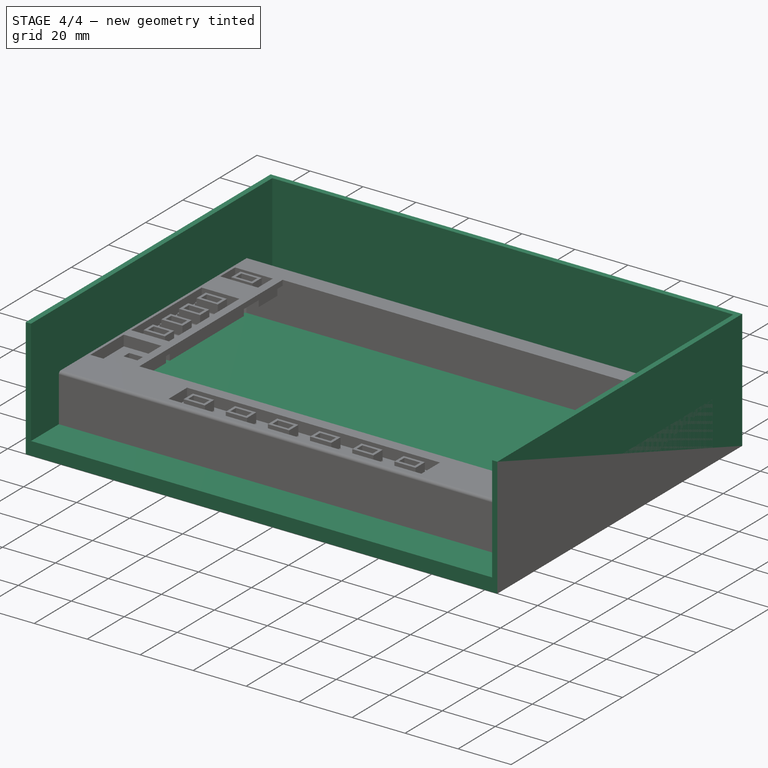
[diagram: stage 4 of 4 — iso view after this stage's code; geometry added in this stage tinted green]
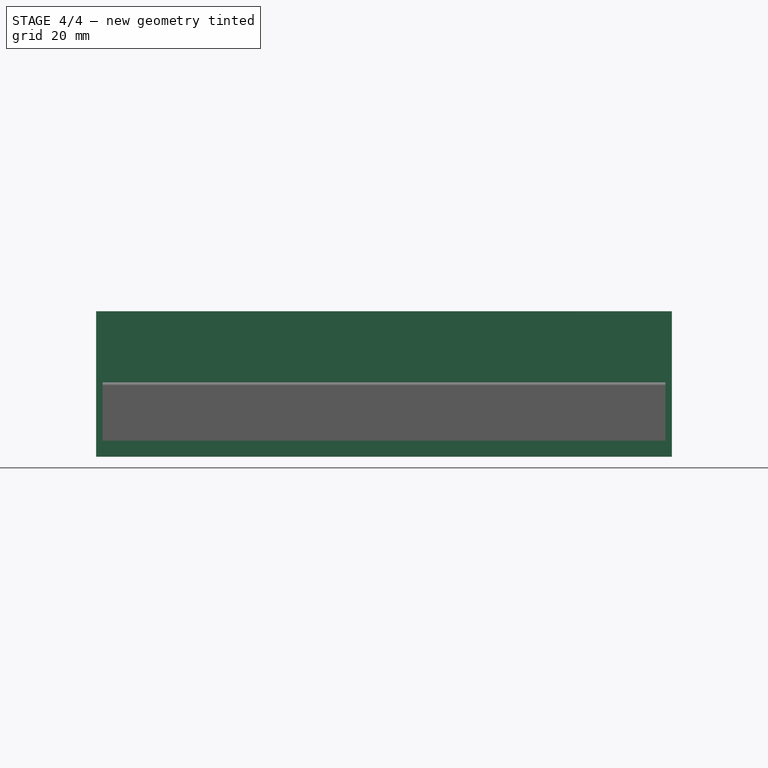
[diagram: stage 4 of 4 — front view after this stage's code; geometry added in this stage tinted green]
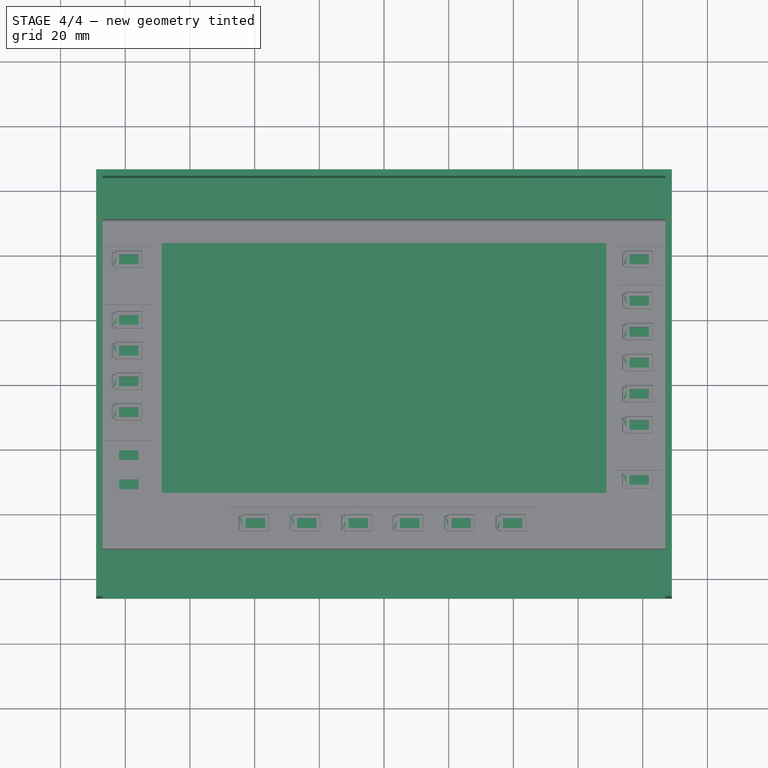
[diagram: stage 4 of 4 — top view after this stage's code; geometry added in this stage tinted green]
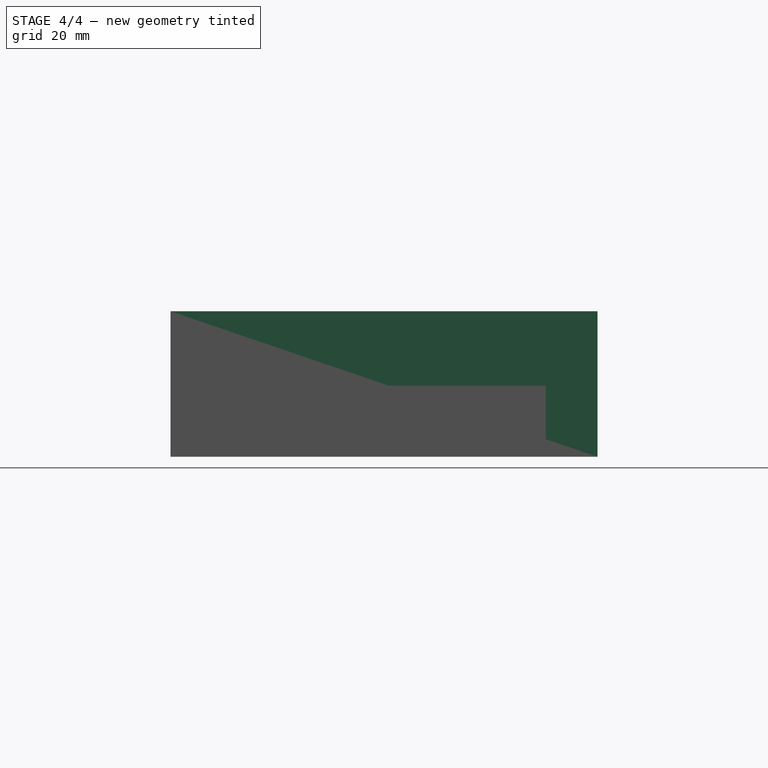
[diagram: stage 4 of 4 — right view after this stage's code; geometry added in this stage tinted green]
FEATURE [Sketcher::SketchObject] Sketch  label="Screen Base Base Sketch"
  FullyConstrained = true
  MapMode = 5
  Support = -> [XY_Plane]
  sketch-geometry (4):
    g0: LineSegment StartX=-89 StartY=66 StartZ=0 EndX=89 EndY=66 EndZ=0
    g1: LineSegment StartX=89 StartY=66 StartZ=0 EndX=89 EndY=-66 EndZ=0
    g2: LineSegment StartX=89 StartY=-66 StartZ=0 EndX=-89 EndY=-66 EndZ=0
    g3: LineSegment StartX=-89 StartY=-66 StartZ=0 EndX=-89 EndY=66 EndZ=0
  constraints (10):
    c: Coincident(g0,g1)
    c: Coincident(g1,g2)
    c: Coincident(g2,g3)
    c: Coincident(g3,g0)
    c: Horizontal(g2)
    c: Vertical(g1)
    c: Symmetric(g0,g2,g-1)
    c: Symmetric(g0,g0,g-2)
    c: DistanceX(g0,g0) = 178
    c: DistanceY(g3,g3) = 132
FEATURE [PartDesign::Pad] Pad  label="Screen Base Base"
  Direction = (0,0,1)
  Length = 45
  Length2 = 10
  Profile = -> Sketch
  ReferenceAxis = -> Sketch [N_Axis]
  Type = 0
FEATURE [Sketcher::SketchObject] Sketch001  label="Screen Base Shell Sketch"
  ExternalGeometry = -> [Pad]
  FullyConstrained = true
  MapMode = 5
  Placement = pos=(0,0,45) rot=(0,0,1;0rad)
  Support = -> [Pad]
  sketch-geometry (4):
    g0: LineSegment StartX=-87 StartY=64 StartZ=0 EndX=87 EndY=64 EndZ=0
    g1: LineSegment StartX=87 StartY=64 StartZ=0 EndX=87 EndY=-66 EndZ=0
    g2: LineSegment StartX=87 StartY=-66 StartZ=0 EndX=-87 EndY=-66 EndZ=0
    g3: LineSegment StartX=-87 StartY=-66 StartZ=0 EndX=-87 EndY=64 EndZ=0
  constraints (11):
    c: Coincident(g0,g1)
    c: Coincident(g1,g2)
    c: Coincident(g2,g3)
    c: Coincident(g3,g0)
    c: Horizontal(g2)
    c: Vertical(g1)
    c: Vertical(g3)
    c: PointOnObject(g1,g-6)
    c: Symmetric(g0,g0,g-2)
    c: DistanceX(g-4,g0) = 2
    c: DistanceY(g0,g-4) = 2
FEATURE [PartDesign::Pocket] Pocket  label="Screen Base Shell"
  BaseFeature = -> Pad
  Direction = (0,0,-1)
  Length = 40
  Length2 = 5
  Profile = -> Sketch001
  ReferenceAxis = -> Sketch001 [N_Axis]
  Type = 0
FEATURE [PartDesign::Fillet] Fillet001  label="Button Outline Fillet"
  Base = -> Pad004 [Edge612,Edge611,Edge610,Edge609,Edge616,Edge615,Edge614,Edge613,Edge595,Edge596,Edge597,Edge598,Edge599,Edge600,Edge594,Edge593,Edge602,Edge601,Edge608,Edge607,Edge606,Edge605,Edge604,Edge603,Edge588,Edge589,Edge590,Edge591,Edge592,Edge585,Edge586,Edge587,Edge584,Edge577,Edge578,Edge579,Edge580,Edge581,Edge582,Edge583,+98 more]
  BaseFeature = -> Pad004
  Radius = 0.5
  SupportTransform = false
  UseAllEdges = false
FEATURE [PartDesign::Body] Body001  label="Screen Panel"
  Group = -> [Sketch002,Pad001,Fillet,Sketch003,Pocket001,Sketch004,Pocket002,Sketch005,Pad002,Sketch006,Pocket003,Sketch007,Pocket004,Sketch008,Pad003,Sketch009,Pad004,Fillet001]
  Origin = -> Origin001
  Tip = -> Fillet001
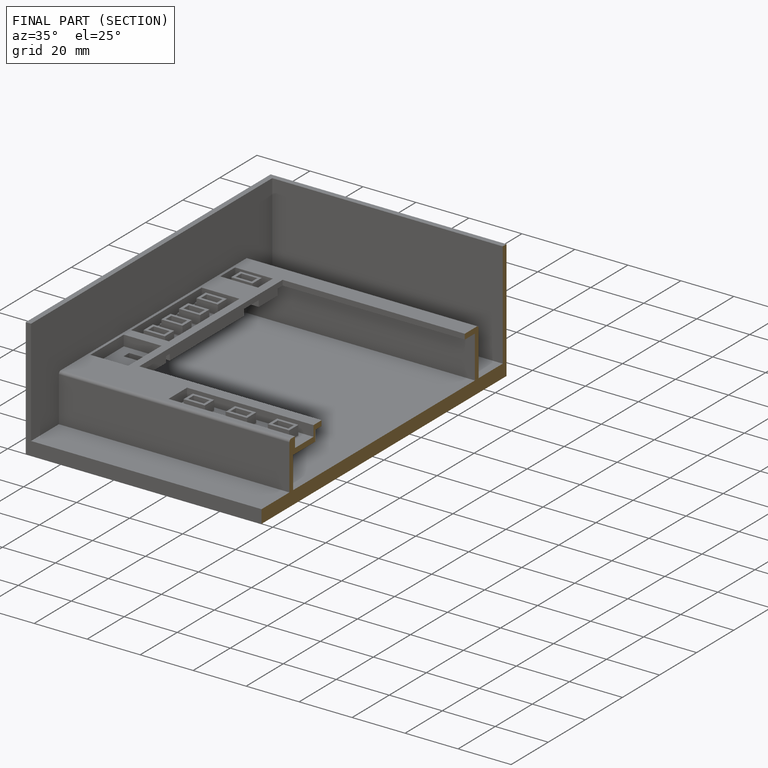
[diagram: finished part — half-section view (interior)]
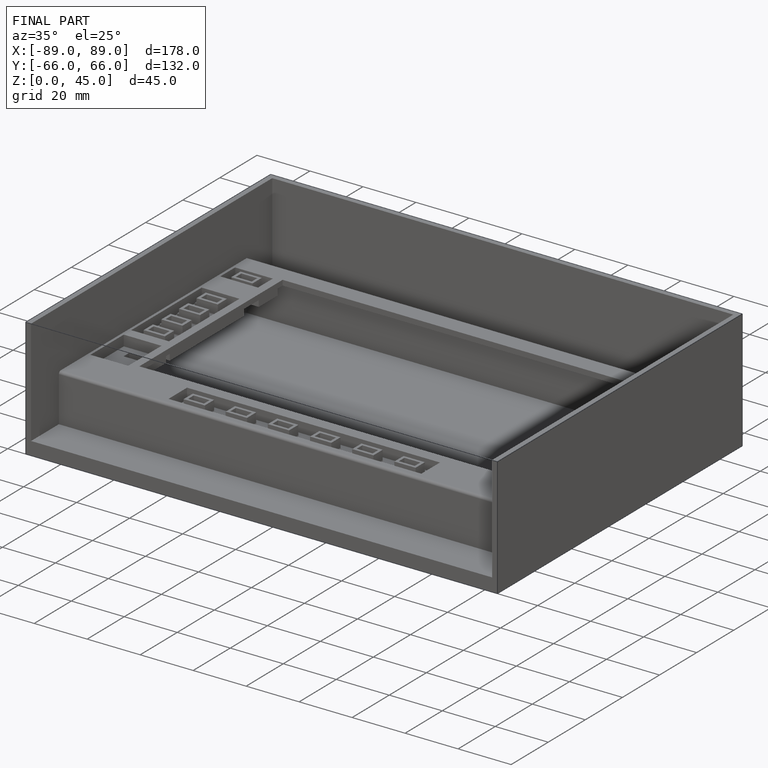
[diagram: finished part — iso view with bounding-box wireframe]
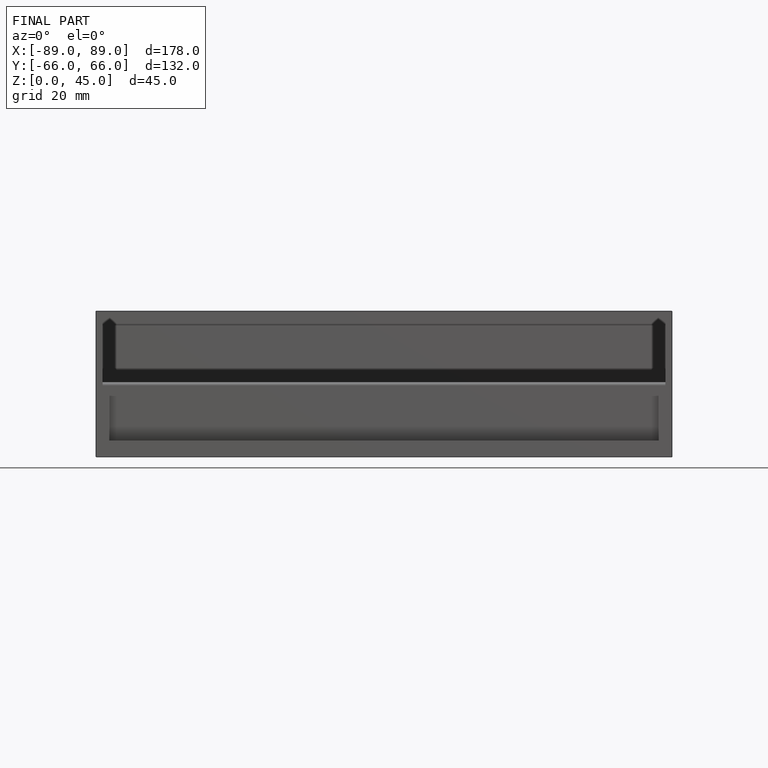
[diagram: finished part — front view with bounding-box wireframe]
